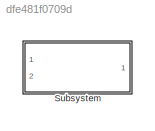
MODEL slx_dfe481f0709d
KIND library
CONFIG AbsTol = auto
CONFIG EnableMultiTasking = off
CONFIG FixedStep = auto
CONFIG MaxStep = auto
CONFIG MinStep = auto
CONFIG RelTol = 1e-3
CONFIG SampleTimeConstraint = Unconstrained
CONFIG Solver = VariableStepAuto
CONFIG SolverName = VariableStepAuto
CONFIG StartTime = 0.0
CONFIG StopTime = 10.0
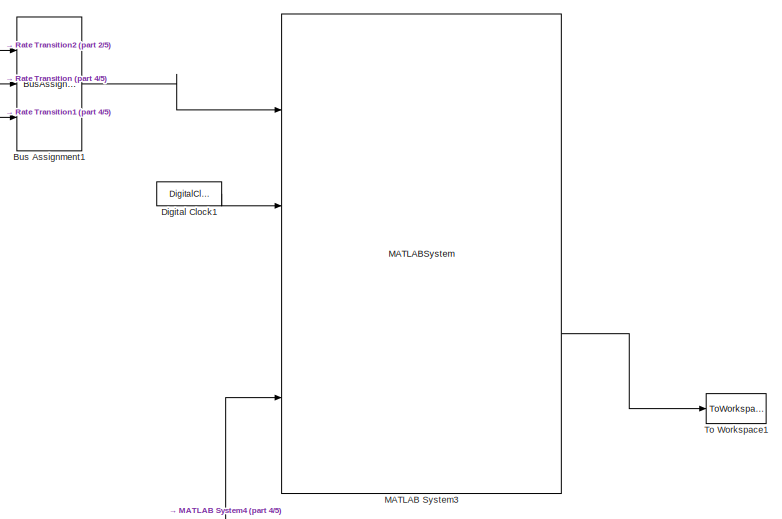
[diagram: Subsystem - part 1/5, top right region]
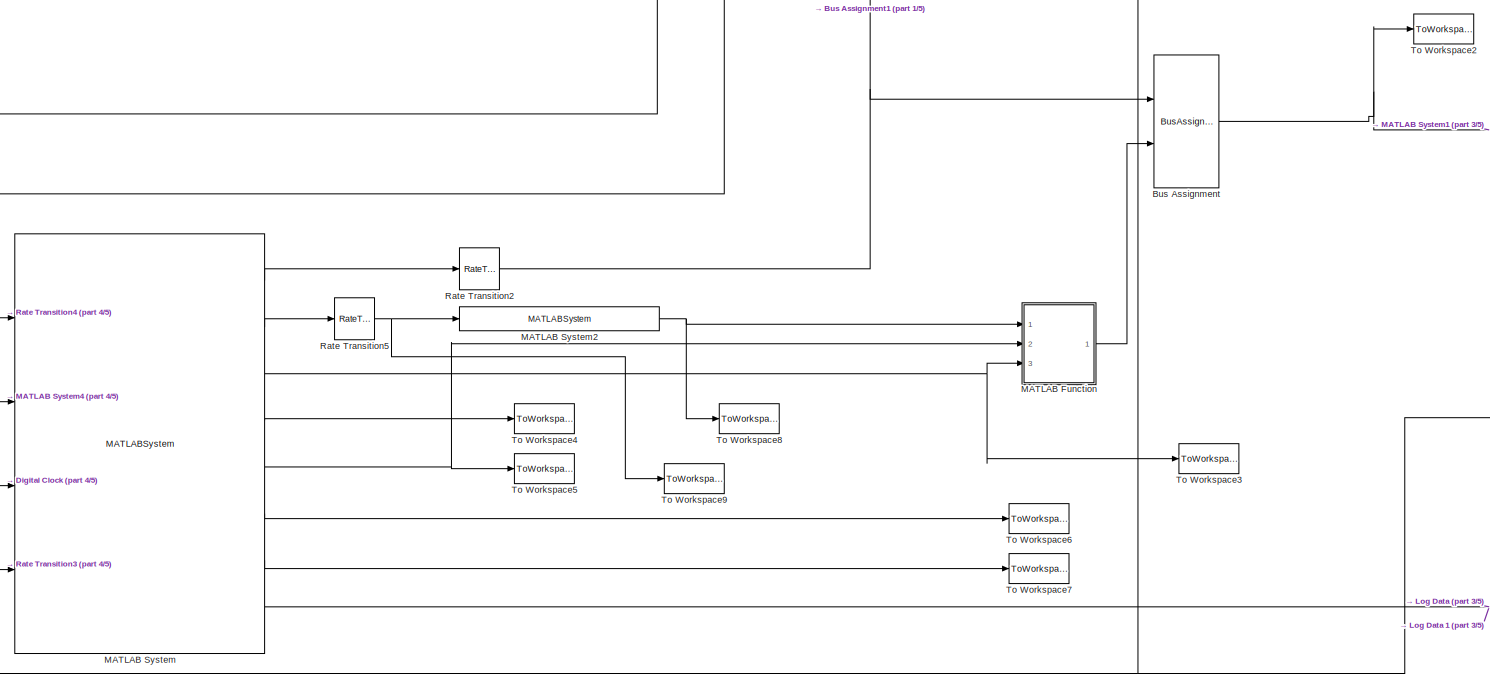
[diagram: Subsystem - part 2/5, bottom center region]
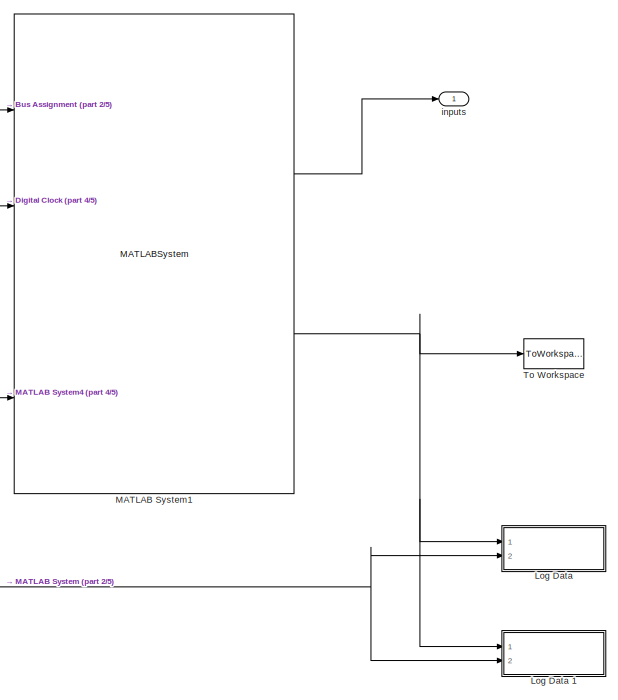
[diagram: Subsystem - part 3/5, bottom right region]
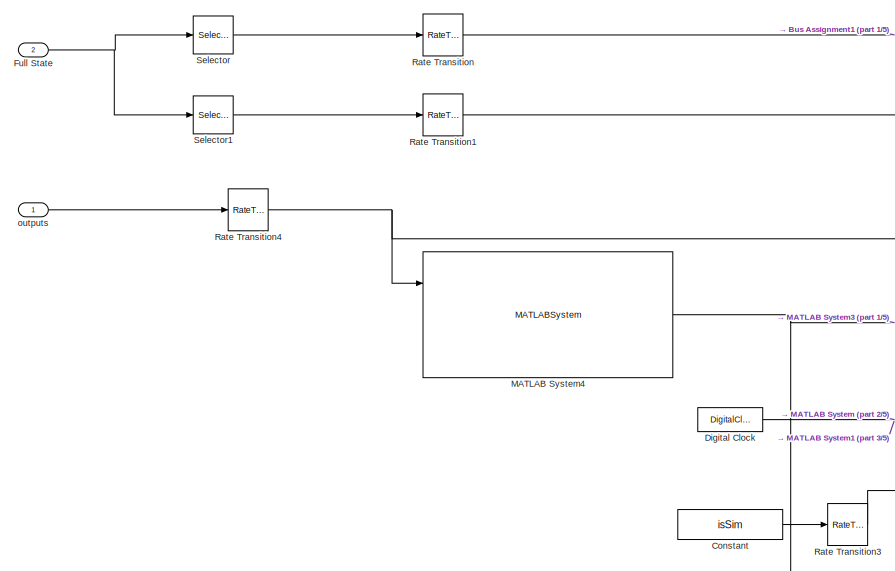
[diagram: Subsystem - part 4/5, bottom left region]
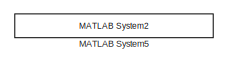
[diagram: Subsystem - part 5/5, bottom center region]
BLOCK [SubSystem] Subsystem
  Ports = [2, 1]
  RequestExecContextInheritance = off
  Variant = off
BLOCK [BusAssignment] Subsystem/Bus Assignment
  AssignedSignals = dq
  Ports = [2, 1]
BLOCK [BusAssignment] Subsystem/Bus Assignment1
  AssignedSignals = q,dq
  Ports = [3, 1]
BLOCK [Constant] Subsystem/Constant
  LockScale = on
  OutDataTypeStr = int8
  Value = isSim
BLOCK [DigitalClock] Subsystem/Digital Clock
  SampleTime = sample_time
BLOCK [DigitalClock] Subsystem/Digital Clock1
  SampleTime = sample_time
BLOCK [Inport] Subsystem/Full State
  IconDisplay = Port number
  Port = 2
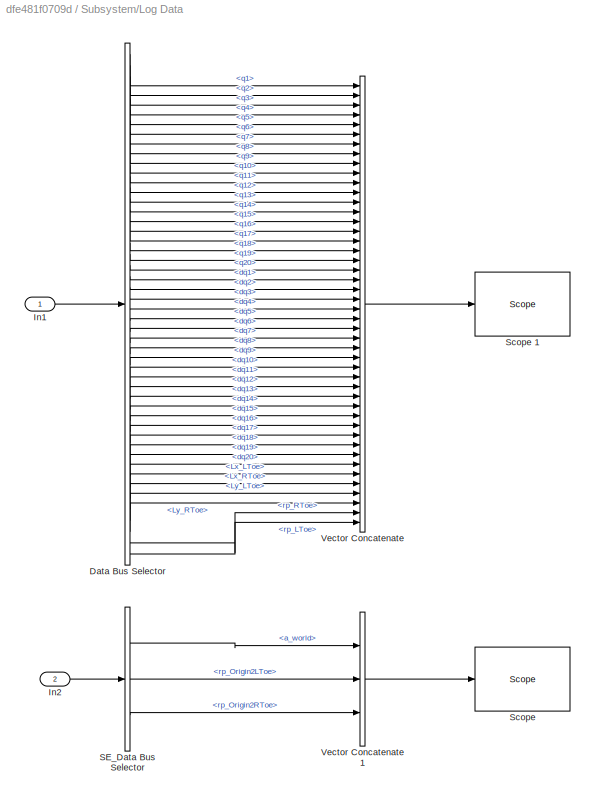
BLOCK [SubSystem] Subsystem/Log Data 
  Ports = [2]
  RequestExecContextInheritance = off
  Variant = off
BLOCK [BusSelector] Subsystem/Log Data /Data Bus Selector
  OutputAsBus = off
  OutputSignals = q1,q2,q3,q4,q5,q6,q7,q8,q9,q10,q11,q12,q13,q14,q15,q16,q17,q18,q19,q20,dq1,dq2,dq3,dq4,dq5,dq6,dq7,dq8,dq9,dq10,dq11,dq12,dq13,dq14,dq15,dq16,dq17,dq18,dq19,dq20,Lx_LToe,Lx_RToe,Ly_LToe,Ly_RToe,rp_LToe,rp_RToe
  Ports = [1, 46]
BLOCK [Inport] Subsystem/Log Data /In1
  IconDisplay = Port number
BLOCK [Inport] Subsystem/Log Data /In2
  IconDisplay = Port number
  OutDataTypeStr = Bus: StateEstimator_DataBus
  Port = 2
BLOCK [BusSelector] Subsystem/Log Data /SE_Data Bus Selector
  OutputAsBus = off
  OutputSignals = a_world,rp_Origin2LToe,rp_Origin2RToe
  Ports = [1, 3]
BLOCK [Reference] Subsystem/Log Data /Scope   REF=slrtlib/Displays and
Logging/Scope 
  Ports = [1]
  SourceBlock = slrtlib/Displays and\nLogging/Scope
  SourceProductBaseCode = XP
  SourceProductName = Simulink Real-Time
  SourceType = xpcscopeblock
BLOCK [Reference] Subsystem/Log Data /Scope 1  REF=slrtlib/Displays and
Logging/Scope 
  Ports = [1]
  SourceBlock = slrtlib/Displays and\nLogging/Scope
  SourceProductBaseCode = XP
  SourceProductName = Simulink Real-Time
  SourceType = xpcscopeblock
BLOCK [Concatenate] Subsystem/Log Data /Vector Concatenate
  NumInputs = 46
  Ports = [46, 1]
BLOCK [Concatenate] Subsystem/Log Data /Vector Concatenate1
  NumInputs = 3
  Ports = [3, 1]
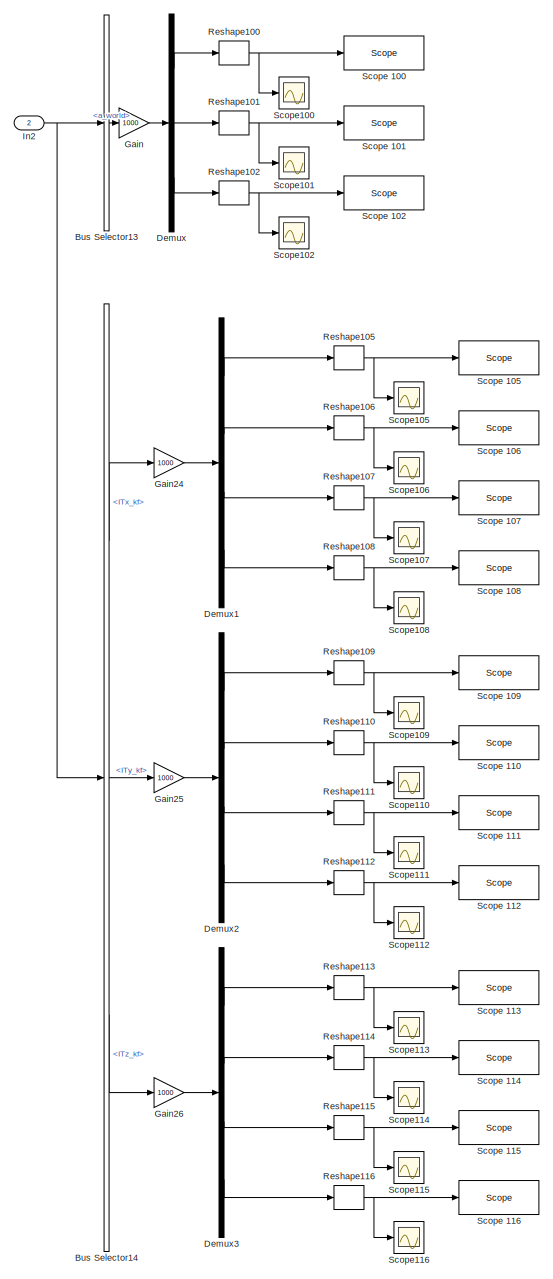
[diagram: Subsystem/Log Data 1 - part 1/11, top right region]
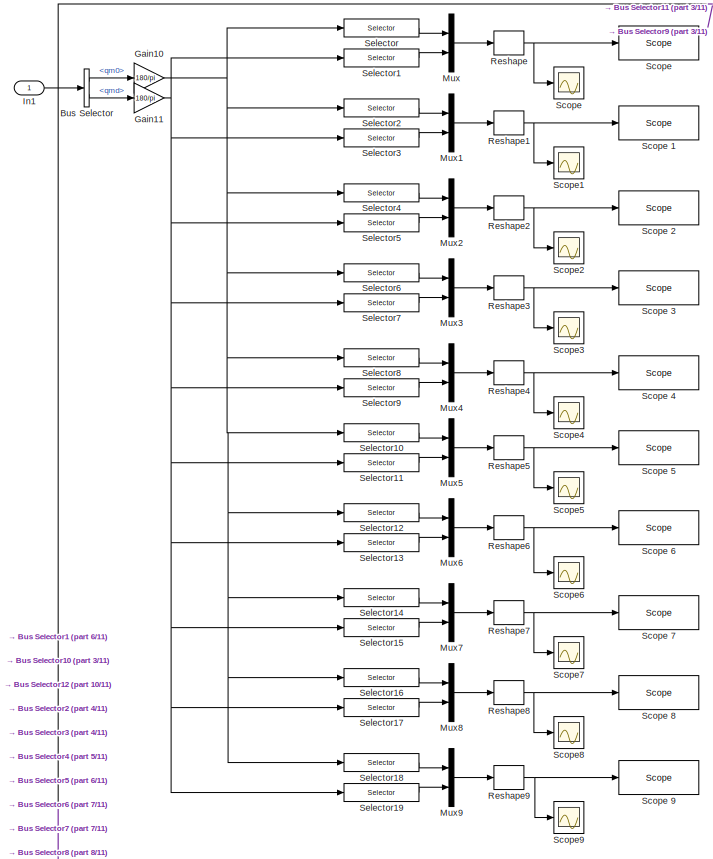
[diagram: Subsystem/Log Data 1 - part 2/11, top left region]
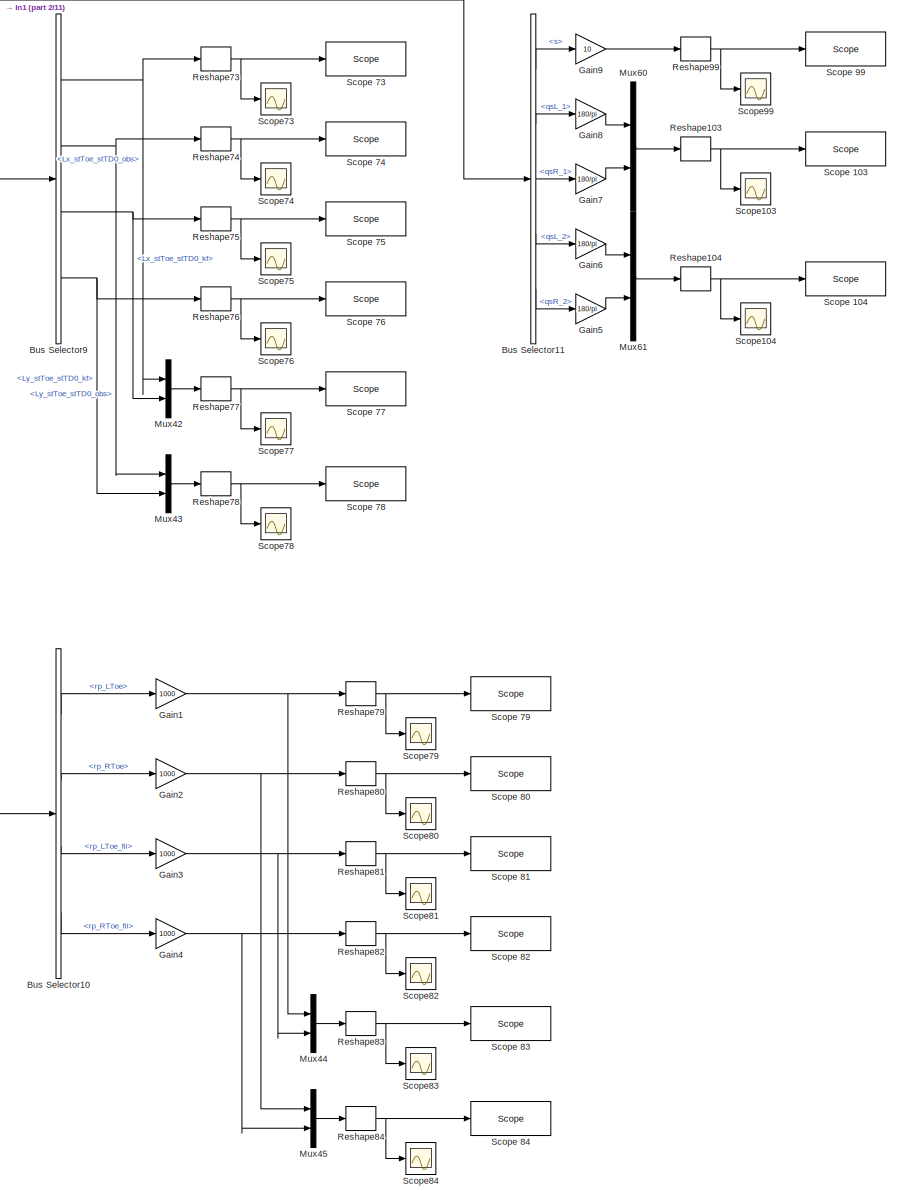
[diagram: Subsystem/Log Data 1 - part 3/11, top center region]
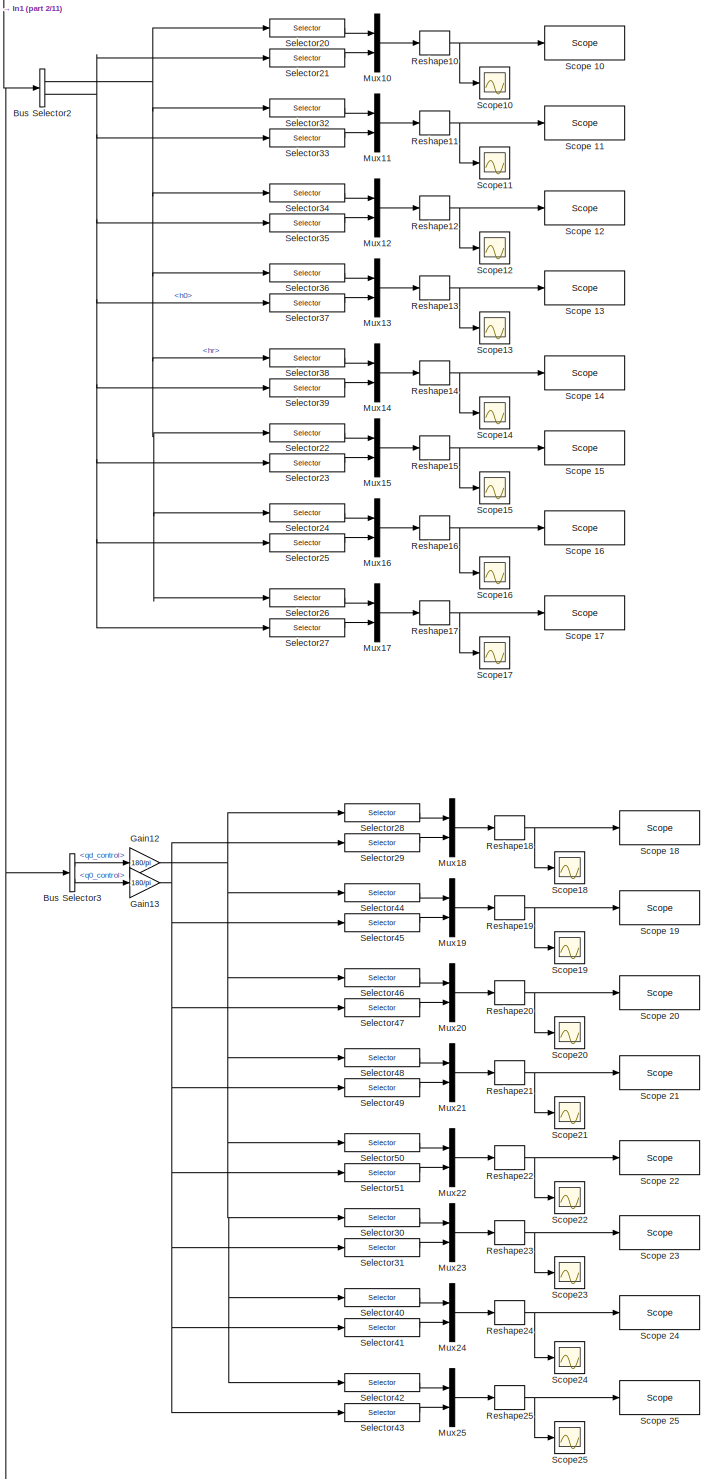
[diagram: Subsystem/Log Data 1 - part 4/11, top left region]
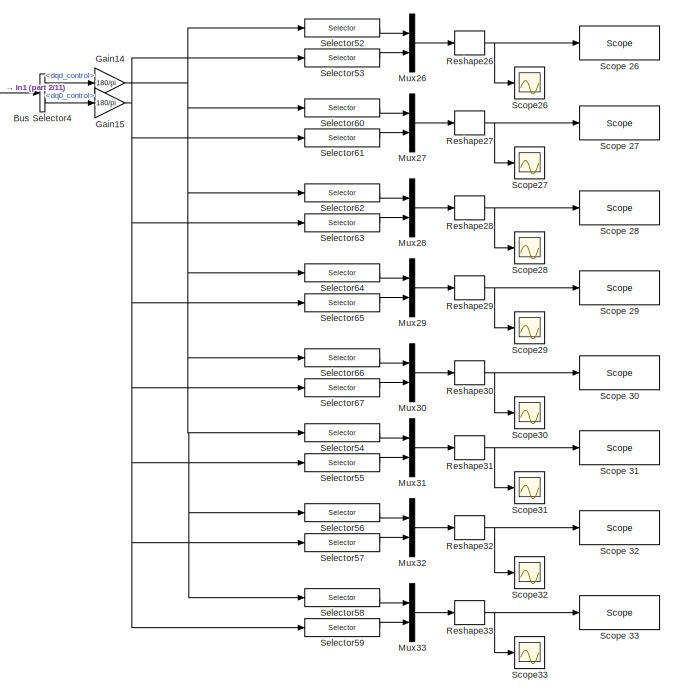
[diagram: Subsystem/Log Data 1 - part 5/11, top left region]
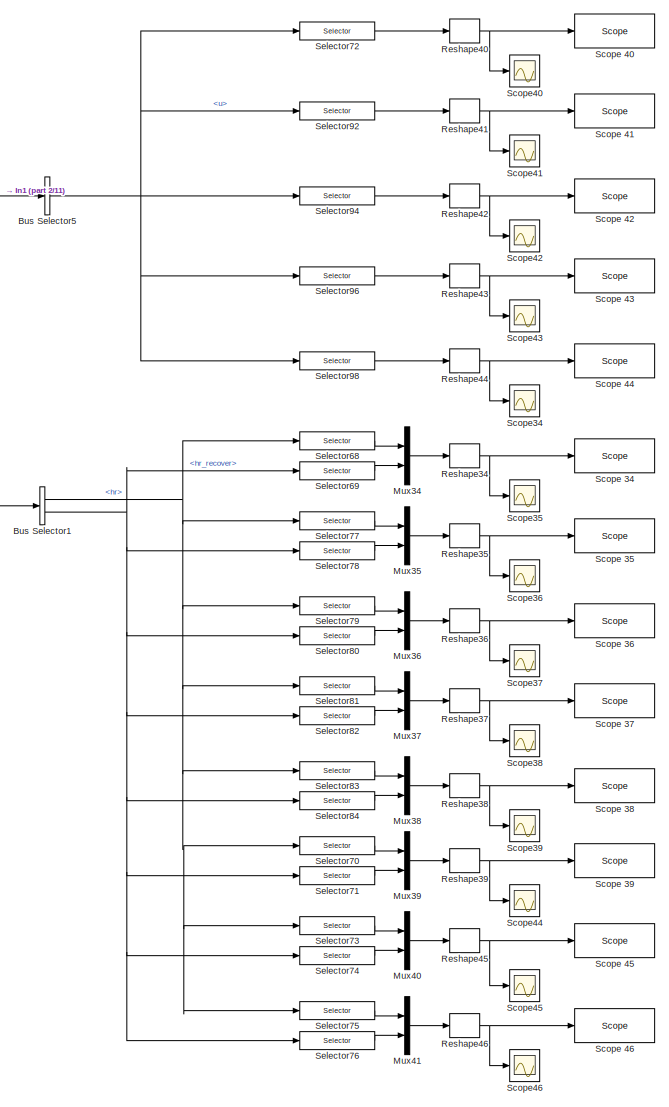
[diagram: Subsystem/Log Data 1 - part 6/11, middle left region]
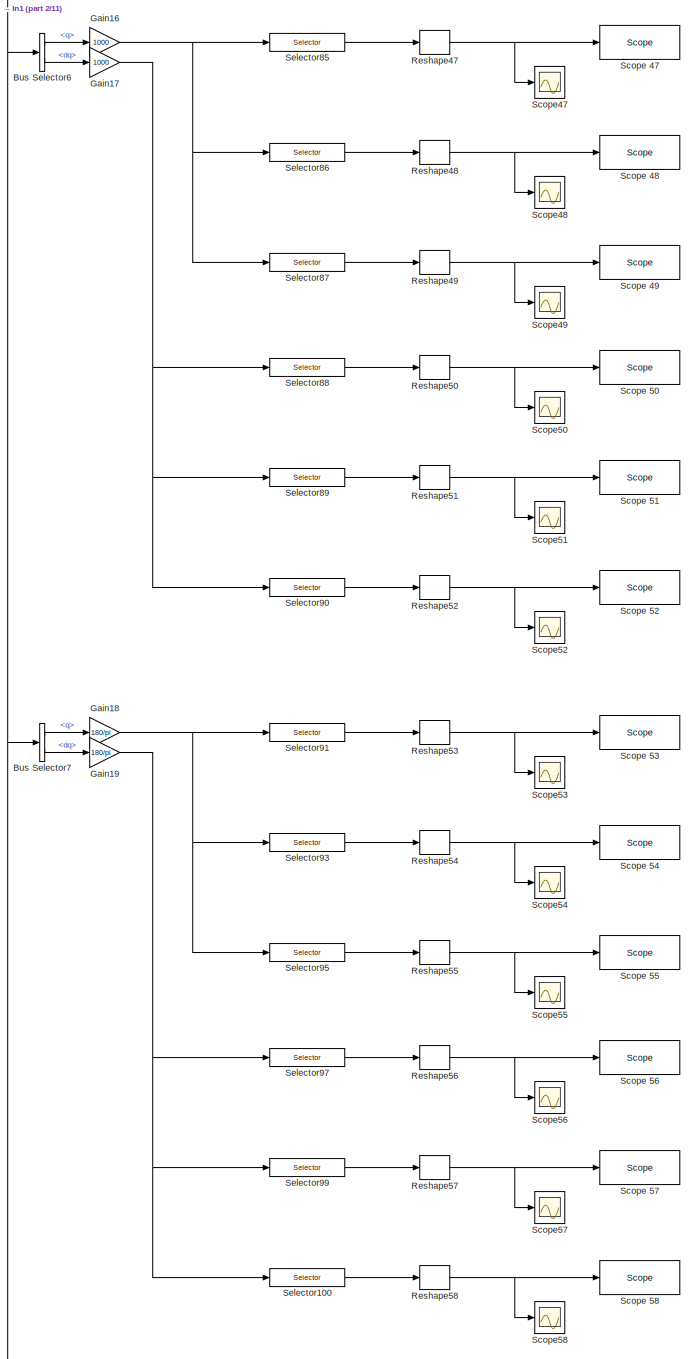
[diagram: Subsystem/Log Data 1 - part 7/11, middle left region]
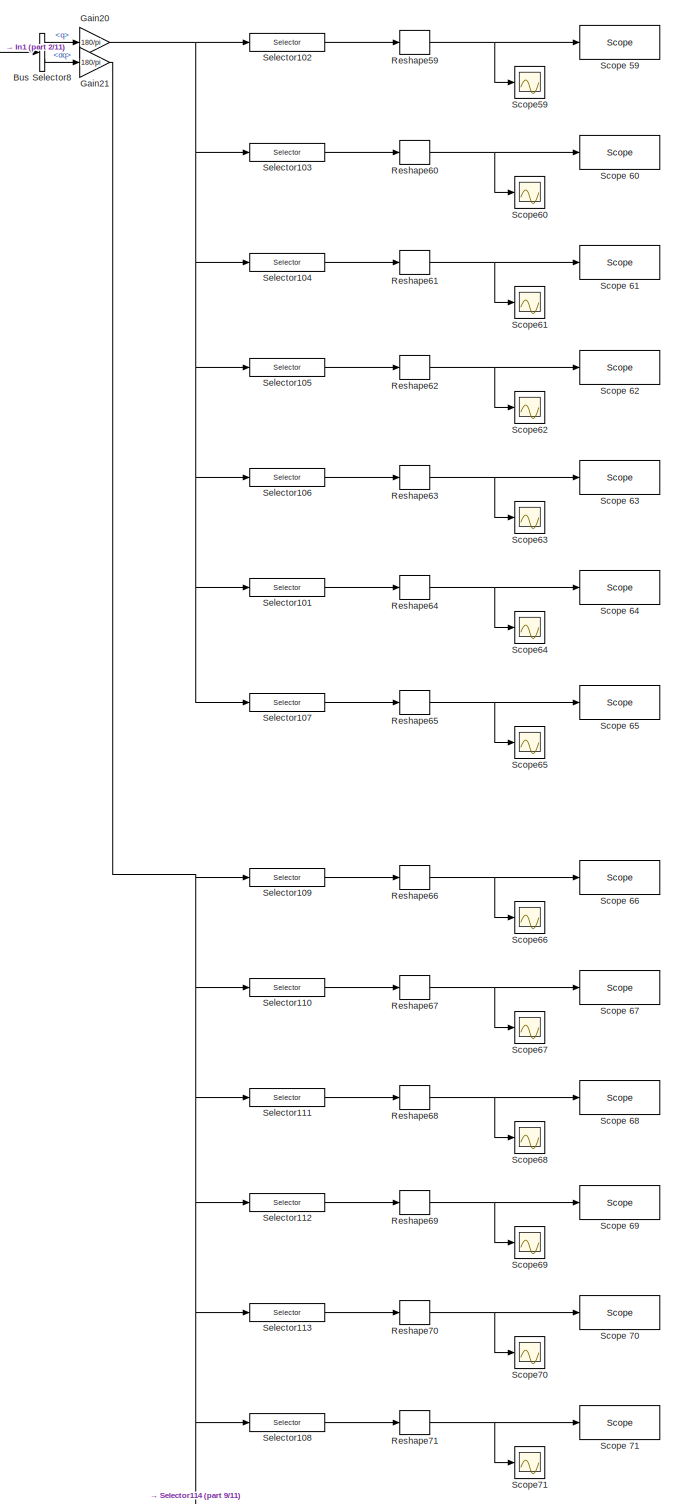
[diagram: Subsystem/Log Data 1 - part 8/11, bottom left region]
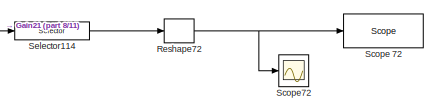
[diagram: Subsystem/Log Data 1 - part 9/11, bottom left region]
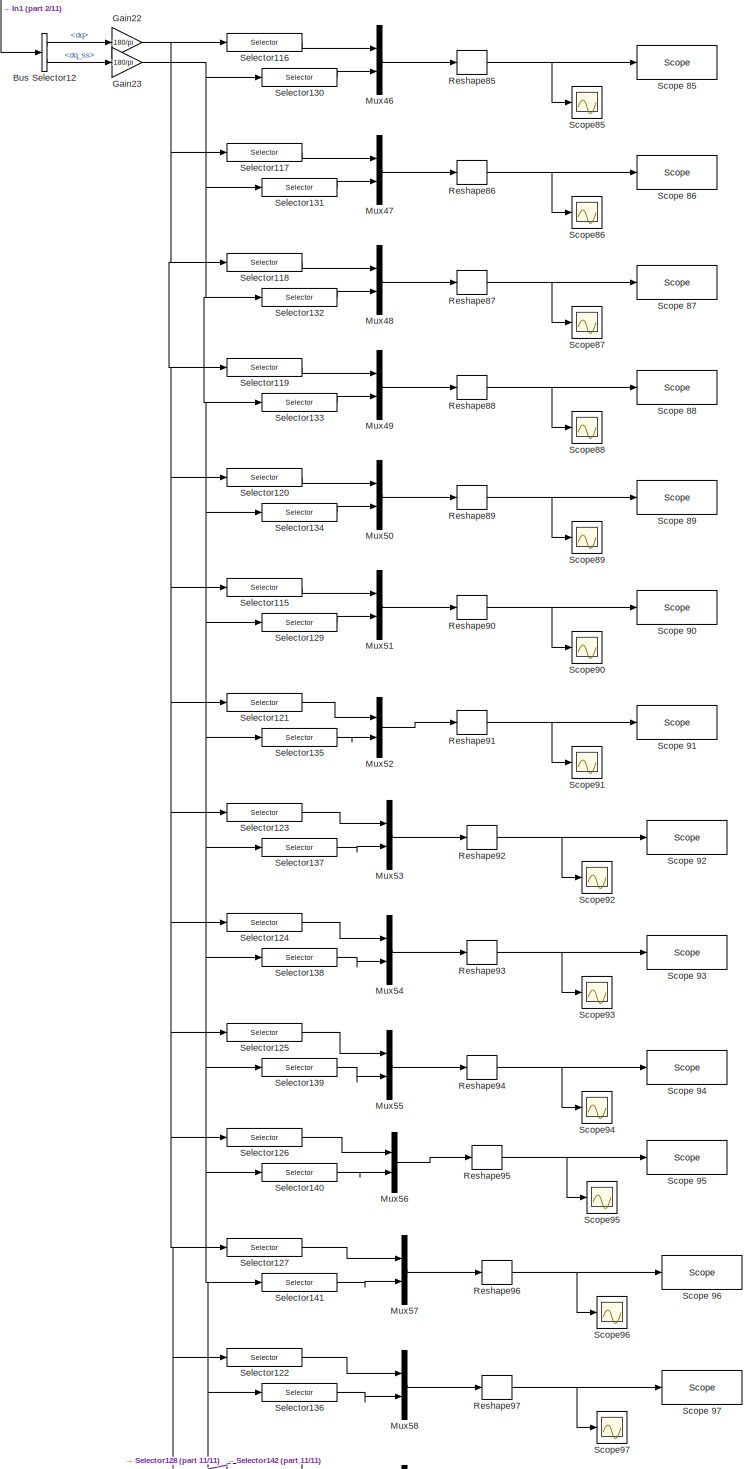
[diagram: Subsystem/Log Data 1 - part 10/11, bottom left region]
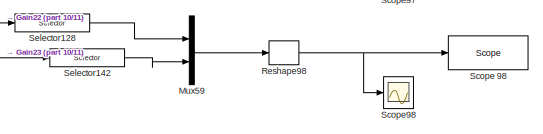
[diagram: Subsystem/Log Data 1 - part 11/11, bottom left region]
BLOCK [SubSystem] Subsystem/Log Data 1
  Ports = [2]
  RequestExecContextInheritance = off
  Variant = off
BLOCK [BusSelector] Subsystem/Log Data 1/Bus Selector
  OutputAsBus = off
  OutputSignals = qm0,qmd
  Ports = [1, 2]
BLOCK [BusSelector] Subsystem/Log Data 1/Bus Selector1
  OutputAsBus = off
  OutputSignals = hr,hr_recover
  Ports = [1, 2]
BLOCK [BusSelector] Subsystem/Log Data 1/Bus Selector10
  OutputAsBus = off
  OutputSignals = rp_LToe,rp_RToe,rp_LToe_fil,rp_RToe_fil
  Ports = [1, 4]
BLOCK [BusSelector] Subsystem/Log Data 1/Bus Selector11
  OutputAsBus = off
  OutputSignals = s,qsL_1,qsR_1,qsL_2,qsR_2
  Ports = [1, 5]
BLOCK [BusSelector] Subsystem/Log Data 1/Bus Selector12
  OutputAsBus = off
  OutputSignals = dq,dq_ss
  Ports = [1, 2]
BLOCK [BusSelector] Subsystem/Log Data 1/Bus Selector13
  OutputAsBus = off
  OutputSignals = a_world
  Ports = [1, 1]
BLOCK [BusSelector] Subsystem/Log Data 1/Bus Selector14
  OutputAsBus = off
  OutputSignals = ITx_kf,ITy_kf,ITz_kf
  Ports = [1, 3]
BLOCK [BusSelector] Subsystem/Log Data 1/Bus Selector2
  OutputAsBus = off
  OutputSignals = hr,h0
  Ports = [1, 2]
BLOCK [BusSelector] Subsystem/Log Data 1/Bus Selector3
  OutputAsBus = off
  OutputSignals = qd_control,q0_control
  Ports = [1, 2]
BLOCK [BusSelector] Subsystem/Log Data 1/Bus Selector4
  OutputAsBus = off
  OutputSignals = dqd_control,dq0_control
  Ports = [1, 2]
BLOCK [BusSelector] Subsystem/Log Data 1/Bus Selector5
  OutputAsBus = off
  OutputSignals = u
  Ports = [1, 1]
BLOCK [BusSelector] Subsystem/Log Data 1/Bus Selector6
  OutputAsBus = off
  OutputSignals = q,dq
  Ports = [1, 2]
BLOCK [BusSelector] Subsystem/Log Data 1/Bus Selector7
  OutputAsBus = off
  OutputSignals = q,dq
  Ports = [1, 2]
BLOCK [BusSelector] Subsystem/Log Data 1/Bus Selector8
  OutputAsBus = off
  OutputSignals = q,dq
  Ports = [1, 2]
BLOCK [BusSelector] Subsystem/Log Data 1/Bus Selector9
  OutputAsBus = off
  OutputSignals = Lx_stToe_stTD0_obs,Ly_stToe_stTD0_obs,Lx_stToe_stTD0_kf,Ly_stToe_stTD0_kf
  Ports = [1, 4]
BLOCK [Demux] Subsystem/Log Data 1/Demux
  DisplayOption = bar
  Outputs = 3
  Ports = [1, 3]
BLOCK [Demux] Subsystem/Log Data 1/Demux1
  DisplayOption = bar
  Ports = [1, 4]
BLOCK [Demux] Subsystem/Log Data 1/Demux2
  DisplayOption = bar
  Ports = [1, 4]
BLOCK [Demux] Subsystem/Log Data 1/Demux3
  DisplayOption = bar
  Ports = [1, 4]
BLOCK [Gain] Subsystem/Log Data 1/Gain
  Gain = 1000
  OutDataTypeStr = Inherit: Inherit via internal rule
  ParamDataTypeStr = Inherit: Inherit via internal rule
  SaturateOnIntegerOverflow = off
BLOCK [Gain] Subsystem/Log Data 1/Gain1
  Gain = 1000
  OutDataTypeStr = Inherit: Inherit via internal rule
  ParamDataTypeStr = Inherit: Inherit via internal rule
  SaturateOnIntegerOverflow = off
BLOCK [Gain] Subsystem/Log Data 1/Gain10
  Gain = 180/pi
  OutDataTypeStr = Inherit: Inherit via internal rule
  ParamDataTypeStr = Inherit: Inherit via internal rule
  SaturateOnIntegerOverflow = off
BLOCK [Gain] Subsystem/Log Data 1/Gain11
  Gain = 180/pi
  OutDataTypeStr = Inherit: Inherit via internal rule
  ParamDataTypeStr = Inherit: Inherit via internal rule
  SaturateOnIntegerOverflow = off
BLOCK [Gain] Subsystem/Log Data 1/Gain12
  Gain = 180/pi
  OutDataTypeStr = Inherit: Inherit via internal rule
  ParamDataTypeStr = Inherit: Inherit via internal rule
  SaturateOnIntegerOverflow = off
BLOCK [Gain] Subsystem/Log Data 1/Gain13
  Gain = 180/pi
  OutDataTypeStr = Inherit: Inherit via internal rule
  ParamDataTypeStr = Inherit: Inherit via internal rule
  SaturateOnIntegerOverflow = off
BLOCK [Gain] Subsystem/Log Data 1/Gain14
  Gain = 180/pi
  OutDataTypeStr = Inherit: Inherit via internal rule
  ParamDataTypeStr = Inherit: Inherit via internal rule
  SaturateOnIntegerOverflow = off
BLOCK [Gain] Subsystem/Log Data 1/Gain15
  Gain = 180/pi
  OutDataTypeStr = Inherit: Inherit via internal rule
  ParamDataTypeStr = Inherit: Inherit via internal rule
  SaturateOnIntegerOverflow = off
BLOCK [Gain] Subsystem/Log Data 1/Gain16
  Gain = 1000
  OutDataTypeStr = Inherit: Inherit via internal rule
  ParamDataTypeStr = Inherit: Inherit via internal rule
  SaturateOnIntegerOverflow = off
BLOCK [Gain] Subsystem/Log Data 1/Gain17
  Gain = 1000
  OutDataTypeStr = Inherit: Inherit via internal rule
  ParamDataTypeStr = Inherit: Inherit via internal rule
  SaturateOnIntegerOverflow = off
BLOCK [Gain] Subsystem/Log Data 1/Gain18
  Gain = 180/pi
  OutDataTypeStr = Inherit: Inherit via internal rule
  ParamDataTypeStr = Inherit: Inherit via internal rule
  SaturateOnIntegerOverflow = off
BLOCK [Gain] Subsystem/Log Data 1/Gain19
  Gain = 180/pi
  OutDataTypeStr = Inherit: Inherit via internal rule
  ParamDataTypeStr = Inherit: Inherit via internal rule
  SaturateOnIntegerOverflow = off
BLOCK [Gain] Subsystem/Log Data 1/Gain2
  Gain = 1000
  OutDataTypeStr = Inherit: Inherit via internal rule
  ParamDataTypeStr = Inherit: Inherit via internal rule
  SaturateOnIntegerOverflow = off
BLOCK [Gain] Subsystem/Log Data 1/Gain20
  Gain = 180/pi
  OutDataTypeStr = Inherit: Inherit via internal rule
  ParamDataTypeStr = Inherit: Inherit via internal rule
  SaturateOnIntegerOverflow = off
BLOCK [Gain] Subsystem/Log Data 1/Gain21
  Gain = 180/pi
  OutDataTypeStr = Inherit: Inherit via internal rule
  ParamDataTypeStr = Inherit: Inherit via internal rule
  SaturateOnIntegerOverflow = off
BLOCK [Gain] Subsystem/Log Data 1/Gain22
  Gain = 180/pi
  OutDataTypeStr = Inherit: Inherit via internal rule
  ParamDataTypeStr = Inherit: Inherit via internal rule
  SaturateOnIntegerOverflow = off
BLOCK [Gain] Subsystem/Log Data 1/Gain23
  Gain = 180/pi
  OutDataTypeStr = Inherit: Inherit via internal rule
  ParamDataTypeStr = Inherit: Inherit via internal rule
  SaturateOnIntegerOverflow = off
BLOCK [Gain] Subsystem/Log Data 1/Gain24
  Gain = 1000
  OutDataTypeStr = Inherit: Inherit via internal rule
  ParamDataTypeStr = Inherit: Inherit via internal rule
  SaturateOnIntegerOverflow = off
BLOCK [Gain] Subsystem/Log Data 1/Gain25
  Gain = 1000
  OutDataTypeStr = Inherit: Inherit via internal rule
  ParamDataTypeStr = Inherit: Inherit via internal rule
  SaturateOnIntegerOverflow = off
BLOCK [Gain] Subsystem/Log Data 1/Gain26
  Gain = 1000
  OutDataTypeStr = Inherit: Inherit via internal rule
  ParamDataTypeStr = Inherit: Inherit via internal rule
  SaturateOnIntegerOverflow = off
BLOCK [Gain] Subsystem/Log Data 1/Gain3
  Gain = 1000
  OutDataTypeStr = Inherit: Inherit via internal rule
  ParamDataTypeStr = Inherit: Inherit via internal rule
  SaturateOnIntegerOverflow = off
BLOCK [Gain] Subsystem/Log Data 1/Gain4
  Gain = 1000
  OutDataTypeStr = Inherit: Inherit via internal rule
  ParamDataTypeStr = Inherit: Inherit via internal rule
  SaturateOnIntegerOverflow = off
BLOCK [Gain] Subsystem/Log Data 1/Gain5
  Gain = 180/pi
  OutDataTypeStr = Inherit: Inherit via internal rule
  ParamDataTypeStr = Inherit: Inherit via internal rule
  SaturateOnIntegerOverflow = off
BLOCK [Gain] Subsystem/Log Data 1/Gain6
  Gain = 180/pi
  OutDataTypeStr = Inherit: Inherit via internal rule
  ParamDataTypeStr = Inherit: Inherit via internal rule
  SaturateOnIntegerOverflow = off
BLOCK [Gain] Subsystem/Log Data 1/Gain7
  Gain = 180/pi
  OutDataTypeStr = Inherit: Inherit via internal rule
  ParamDataTypeStr = Inherit: Inherit via internal rule
  SaturateOnIntegerOverflow = off
BLOCK [Gain] Subsystem/Log Data 1/Gain8
  Gain = 180/pi
  OutDataTypeStr = Inherit: Inherit via internal rule
  ParamDataTypeStr = Inherit: Inherit via internal rule
  SaturateOnIntegerOverflow = off
BLOCK [Gain] Subsystem/Log Data 1/Gain9
  Gain = 10
  OutDataTypeStr = Inherit: Inherit via internal rule
  ParamDataTypeStr = Inherit: Inherit via internal rule
  SaturateOnIntegerOverflow = off
BLOCK [Inport] Subsystem/Log Data 1/In1
  IconDisplay = Port number
BLOCK [Inport] Subsystem/Log Data 1/In2
  IconDisplay = Port number
  OutDataTypeStr = Bus: StateEstimator_DataBus
  Port = 2
BLOCK [Mux] Subsystem/Log Data 1/Mux
  DisplayOption = bar
  Inputs = 2
  Ports = [2, 1]
BLOCK [Mux] Subsystem/Log Data 1/Mux1
  DisplayOption = bar
  Inputs = 2
  Ports = [2, 1]
BLOCK [Mux] Subsystem/Log Data 1/Mux10
  DisplayOption = bar
  Inputs = 2
  Ports = [2, 1]
BLOCK [Mux] Subsystem/Log Data 1/Mux11
  DisplayOption = bar
  Inputs = 2
  Ports = [2, 1]
BLOCK [Mux] Subsystem/Log Data 1/Mux12
  DisplayOption = bar
  Inputs = 2
  Ports = [2, 1]
BLOCK [Mux] Subsystem/Log Data 1/Mux13
  DisplayOption = bar
  Inputs = 2
  Ports = [2, 1]
BLOCK [Mux] Subsystem/Log Data 1/Mux14
  DisplayOption = bar
  Inputs = 2
  Ports = [2, 1]
BLOCK [Mux] Subsystem/Log Data 1/Mux15
  DisplayOption = bar
  Inputs = 2
  Ports = [2, 1]
BLOCK [Mux] Subsystem/Log Data 1/Mux16
  DisplayOption = bar
  Inputs = 2
  Ports = [2, 1]
BLOCK [Mux] Subsystem/Log Data 1/Mux17
  DisplayOption = bar
  Inputs = 2
  Ports = [2, 1]
BLOCK [Mux] Subsystem/Log Data 1/Mux18
  DisplayOption = bar
  Inputs = 2
  Ports = [2, 1]
BLOCK [Mux] Subsystem/Log Data 1/Mux19
  DisplayOption = bar
  Inputs = 2
  Ports = [2, 1]
BLOCK [Mux] Subsystem/Log Data 1/Mux2
  DisplayOption = bar
  Inputs = 2
  Ports = [2, 1]
BLOCK [Mux] Subsystem/Log Data 1/Mux20
  DisplayOption = bar
  Inputs = 2
  Ports = [2, 1]
BLOCK [Mux] Subsystem/Log Data 1/Mux21
  DisplayOption = bar
  Inputs = 2
  Ports = [2, 1]
BLOCK [Mux] Subsystem/Log Data 1/Mux22
  DisplayOption = bar
  Inputs = 2
  Ports = [2, 1]
BLOCK [Mux] Subsystem/Log Data 1/Mux23
  DisplayOption = bar
  Inputs = 2
  Ports = [2, 1]
BLOCK [Mux] Subsystem/Log Data 1/Mux24
  DisplayOption = bar
  Inputs = 2
  Ports = [2, 1]
BLOCK [Mux] Subsystem/Log Data 1/Mux25
  DisplayOption = bar
  Inputs = 2
  Ports = [2, 1]
BLOCK [Mux] Subsystem/Log Data 1/Mux26
  DisplayOption = bar
  Inputs = 2
  Ports = [2, 1]
BLOCK [Mux] Subsystem/Log Data 1/Mux27
  DisplayOption = bar
  Inputs = 2
  Ports = [2, 1]
BLOCK [Mux] Subsystem/Log Data 1/Mux28
  DisplayOption = bar
  Inputs = 2
  Ports = [2, 1]
BLOCK [Mux] Subsystem/Log Data 1/Mux29
  DisplayOption = bar
  Inputs = 2
  Ports = [2, 1]
BLOCK [Mux] Subsystem/Log Data 1/Mux3
  DisplayOption = bar
  Inputs = 2
  Ports = [2, 1]
BLOCK [Mux] Subsystem/Log Data 1/Mux30
  DisplayOption = bar
  Inputs = 2
  Ports = [2, 1]
BLOCK [Mux] Subsystem/Log Data 1/Mux31
  DisplayOption = bar
  Inputs = 2
  Ports = [2, 1]
BLOCK [Mux] Subsystem/Log Data 1/Mux32
  DisplayOption = bar
  Inputs = 2
  Ports = [2, 1]
BLOCK [Mux] Subsystem/Log Data 1/Mux33
  DisplayOption = bar
  Inputs = 2
  Ports = [2, 1]
BLOCK [Mux] Subsystem/Log Data 1/Mux34
  DisplayOption = bar
  Inputs = 2
  Ports = [2, 1]
BLOCK [Mux] Subsystem/Log Data 1/Mux35
  DisplayOption = bar
  Inputs = 2
  Ports = [2, 1]
BLOCK [Mux] Subsystem/Log Data 1/Mux36
  DisplayOption = bar
  Inputs = 2
  Ports = [2, 1]
BLOCK [Mux] Subsystem/Log Data 1/Mux37
  DisplayOption = bar
  Inputs = 2
  Ports = [2, 1]
BLOCK [Mux] Subsystem/Log Data 1/Mux38
  DisplayOption = bar
  Inputs = 2
  Ports = [2, 1]
BLOCK [Mux] Subsystem/Log Data 1/Mux39
  DisplayOption = bar
  Inputs = 2
  Ports = [2, 1]
BLOCK [Mux] Subsystem/Log Data 1/Mux4
  DisplayOption = bar
  Inputs = 2
  Ports = [2, 1]
BLOCK [Mux] Subsystem/Log Data 1/Mux40
  DisplayOption = bar
  Inputs = 2
  Ports = [2, 1]
BLOCK [Mux] Subsystem/Log Data 1/Mux41
  DisplayOption = bar
  Inputs = 2
  Ports = [2, 1]
BLOCK [Mux] Subsystem/Log Data 1/Mux42
  DisplayOption = bar
  Inputs = 2
  Ports = [2, 1]
BLOCK [Mux] Subsystem/Log Data 1/Mux43
  DisplayOption = bar
  Inputs = 2
  Ports = [2, 1]
BLOCK [Mux] Subsystem/Log Data 1/Mux44
  DisplayOption = bar
  Inputs = 2
  Ports = [2, 1]
BLOCK [Mux] Subsystem/Log Data 1/Mux45
  DisplayOption = bar
  Inputs = 2
  Ports = [2, 1]
BLOCK [Mux] Subsystem/Log Data 1/Mux46
  DisplayOption = bar
  Inputs = 2
  Ports = [2, 1]
BLOCK [Mux] Subsystem/Log Data 1/Mux47
  DisplayOption = bar
  Inputs = 2
  Ports = [2, 1]
BLOCK [Mux] Subsystem/Log Data 1/Mux48
  DisplayOption = bar
  Inputs = 2
  Ports = [2, 1]
BLOCK [Mux] Subsystem/Log Data 1/Mux49
  DisplayOption = bar
  Inputs = 2
  Ports = [2, 1]
BLOCK [Mux] Subsystem/Log Data 1/Mux5
  DisplayOption = bar
  Inputs = 2
  Ports = [2, 1]
BLOCK [Mux] Subsystem/Log Data 1/Mux50
  DisplayOption = bar
  Inputs = 2
  Ports = [2, 1]
BLOCK [Mux] Subsystem/Log Data 1/Mux51
  DisplayOption = bar
  Inputs = 2
  Ports = [2, 1]
BLOCK [Mux] Subsystem/Log Data 1/Mux52
  DisplayOption = bar
  Inputs = 2
  Ports = [2, 1]
BLOCK [Mux] Subsystem/Log Data 1/Mux53
  DisplayOption = bar
  Inputs = 2
  Ports = [2, 1]
BLOCK [Mux] Subsystem/Log Data 1/Mux54
  DisplayOption = bar
  Inputs = 2
  Ports = [2, 1]
BLOCK [Mux] Subsystem/Log Data 1/Mux55
  DisplayOption = bar
  Inputs = 2
  Ports = [2, 1]
BLOCK [Mux] Subsystem/Log Data 1/Mux56
  DisplayOption = bar
  Inputs = 2
  Ports = [2, 1]
BLOCK [Mux] Subsystem/Log Data 1/Mux57
  DisplayOption = bar
  Inputs = 2
  Ports = [2, 1]
BLOCK [Mux] Subsystem/Log Data 1/Mux58
  DisplayOption = bar
  Inputs = 2
  Ports = [2, 1]
BLOCK [Mux] Subsystem/Log Data 1/Mux59
  DisplayOption = bar
  Inputs = 2
  Ports = [2, 1]
BLOCK [Mux] Subsystem/Log Data 1/Mux6
  DisplayOption = bar
  Inputs = 2
  Ports = [2, 1]
BLOCK [Mux] Subsystem/Log Data 1/Mux60
  DisplayOption = bar
  Inputs = 2
  Ports = [2, 1]
BLOCK [Mux] Subsystem/Log Data 1/Mux61
  DisplayOption = bar
  Inputs = 2
  Ports = [2, 1]
BLOCK [Mux] Subsystem/Log Data 1/Mux7
  DisplayOption = bar
  Inputs = 2
  Ports = [2, 1]
BLOCK [Mux] Subsystem/Log Data 1/Mux8
  DisplayOption = bar
  Inputs = 2
  Ports = [2, 1]
BLOCK [Mux] Subsystem/Log Data 1/Mux9
  DisplayOption = bar
  Inputs = 2
  Ports = [2, 1]
BLOCK [Reshape] Subsystem/Log Data 1/Reshape
  Ports = [1, 1]
BLOCK [Reshape] Subsystem/Log Data 1/Reshape1
  Ports = [1, 1]
BLOCK [Reshape] Subsystem/Log Data 1/Reshape10
  Ports = [1, 1]
BLOCK [Reshape] Subsystem/Log Data 1/Reshape100
  Ports = [1, 1]
BLOCK [Reshape] Subsystem/Log Data 1/Reshape101
  Ports = [1, 1]
BLOCK [Reshape] Subsystem/Log Data 1/Reshape102
  Ports = [1, 1]
BLOCK [Reshape] Subsystem/Log Data 1/Reshape103
  Ports = [1, 1]
BLOCK [Reshape] Subsystem/Log Data 1/Reshape104
  Ports = [1, 1]
BLOCK [Reshape] Subsystem/Log Data 1/Reshape105
  Ports = [1, 1]
BLOCK [Reshape] Subsystem/Log Data 1/Reshape106
  Ports = [1, 1]
BLOCK [Reshape] Subsystem/Log Data 1/Reshape107
  Ports = [1, 1]
BLOCK [Reshape] Subsystem/Log Data 1/Reshape108
  Ports = [1, 1]
BLOCK [Reshape] Subsystem/Log Data 1/Reshape109
  Ports = [1, 1]
BLOCK [Reshape] Subsystem/Log Data 1/Reshape11
  Ports = [1, 1]
BLOCK [Reshape] Subsystem/Log Data 1/Reshape110
  Ports = [1, 1]
BLOCK [Reshape] Subsystem/Log Data 1/Reshape111
  Ports = [1, 1]
BLOCK [Reshape] Subsystem/Log Data 1/Reshape112
  Ports = [1, 1]
BLOCK [Reshape] Subsystem/Log Data 1/Reshape113
  Ports = [1, 1]
BLOCK [Reshape] Subsystem/Log Data 1/Reshape114
  Ports = [1, 1]
BLOCK [Reshape] Subsystem/Log Data 1/Reshape115
  Ports = [1, 1]
BLOCK [Reshape] Subsystem/Log Data 1/Reshape116
  Ports = [1, 1]
BLOCK [Reshape] Subsystem/Log Data 1/Reshape12
  Ports = [1, 1]
BLOCK [Reshape] Subsystem/Log Data 1/Reshape13
  Ports = [1, 1]
BLOCK [Reshape] Subsystem/Log Data 1/Reshape14
  Ports = [1, 1]
BLOCK [Reshape] Subsystem/Log Data 1/Reshape15
  Ports = [1, 1]
BLOCK [Reshape] Subsystem/Log Data 1/Reshape16
  Ports = [1, 1]
BLOCK [Reshape] Subsystem/Log Data 1/Reshape17
  Ports = [1, 1]
BLOCK [Reshape] Subsystem/Log Data 1/Reshape18
  Ports = [1, 1]
BLOCK [Reshape] Subsystem/Log Data 1/Reshape19
  Ports = [1, 1]
BLOCK [Reshape] Subsystem/Log Data 1/Reshape2
  Ports = [1, 1]
BLOCK [Reshape] Subsystem/Log Data 1/Reshape20
  Ports = [1, 1]
BLOCK [Reshape] Subsystem/Log Data 1/Reshape21
  Ports = [1, 1]
BLOCK [Reshape] Subsystem/Log Data 1/Reshape22
  Ports = [1, 1]
BLOCK [Reshape] Subsystem/Log Data 1/Reshape23
  Ports = [1, 1]
BLOCK [Reshape] Subsystem/Log Data 1/Reshape24
  Ports = [1, 1]
BLOCK [Reshape] Subsystem/Log Data 1/Reshape25
  Ports = [1, 1]
BLOCK [Reshape] Subsystem/Log Data 1/Reshape26
  Ports = [1, 1]
BLOCK [Reshape] Subsystem/Log Data 1/Reshape27
  Ports = [1, 1]
BLOCK [Reshape] Subsystem/Log Data 1/Reshape28
  Ports = [1, 1]
BLOCK [Reshape] Subsystem/Log Data 1/Reshape29
  Ports = [1, 1]
BLOCK [Reshape] Subsystem/Log Data 1/Reshape3
  Ports = [1, 1]
BLOCK [Reshape] Subsystem/Log Data 1/Reshape30
  Ports = [1, 1]
BLOCK [Reshape] Subsystem/Log Data 1/Reshape31
  Ports = [1, 1]
BLOCK [Reshape] Subsystem/Log Data 1/Reshape32
  Ports = [1, 1]
BLOCK [Reshape] Subsystem/Log Data 1/Reshape33
  Ports = [1, 1]
BLOCK [Reshape] Subsystem/Log Data 1/Reshape34
  Ports = [1, 1]
BLOCK [Reshape] Subsystem/Log Data 1/Reshape35
  Ports = [1, 1]
BLOCK [Reshape] Subsystem/Log Data 1/Reshape36
  Ports = [1, 1]
BLOCK [Reshape] Subsystem/Log Data 1/Reshape37
  Ports = [1, 1]
BLOCK [Reshape] Subsystem/Log Data 1/Reshape38
  Ports = [1, 1]
BLOCK [Reshape] Subsystem/Log Data 1/Reshape39
  Ports = [1, 1]
BLOCK [Reshape] Subsystem/Log Data 1/Reshape4
  Ports = [1, 1]
BLOCK [Reshape] Subsystem/Log Data 1/Reshape40
  Ports = [1, 1]
BLOCK [Reshape] Subsystem/Log Data 1/Reshape41
  Ports = [1, 1]
BLOCK [Reshape] Subsystem/Log Data 1/Reshape42
  Ports = [1, 1]
BLOCK [Reshape] Subsystem/Log Data 1/Reshape43
  Ports = [1, 1]
BLOCK [Reshape] Subsystem/Log Data 1/Reshape44
  Ports = [1, 1]
BLOCK [Reshape] Subsystem/Log Data 1/Reshape45
  Ports = [1, 1]
BLOCK [Reshape] Subsystem/Log Data 1/Reshape46
  Ports = [1, 1]
BLOCK [Reshape] Subsystem/Log Data 1/Reshape47
  Ports = [1, 1]
BLOCK [Reshape] Subsystem/Log Data 1/Reshape48
  Ports = [1, 1]
BLOCK [Reshape] Subsystem/Log Data 1/Reshape49
  Ports = [1, 1]
BLOCK [Reshape] Subsystem/Log Data 1/Reshape5
  Ports = [1, 1]
BLOCK [Reshape] Subsystem/Log Data 1/Reshape50
  Ports = [1, 1]
BLOCK [Reshape] Subsystem/Log Data 1/Reshape51
  Ports = [1, 1]
BLOCK [Reshape] Subsystem/Log Data 1/Reshape52
  Ports = [1, 1]
BLOCK [Reshape] Subsystem/Log Data 1/Reshape53
  Ports = [1, 1]
BLOCK [Reshape] Subsystem/Log Data 1/Reshape54
  Ports = [1, 1]
BLOCK [Reshape] Subsystem/Log Data 1/Reshape55
  Ports = [1, 1]
BLOCK [Reshape] Subsystem/Log Data 1/Reshape56
  Ports = [1, 1]
BLOCK [Reshape] Subsystem/Log Data 1/Reshape57
  Ports = [1, 1]
BLOCK [Reshape] Subsystem/Log Data 1/Reshape58
  Ports = [1, 1]
BLOCK [Reshape] Subsystem/Log Data 1/Reshape59
  Ports = [1, 1]
BLOCK [Reshape] Subsystem/Log Data 1/Reshape6
  Ports = [1, 1]
BLOCK [Reshape] Subsystem/Log Data 1/Reshape60
  Ports = [1, 1]
BLOCK [Reshape] Subsystem/Log Data 1/Reshape61
  Ports = [1, 1]
BLOCK [Reshape] Subsystem/Log Data 1/Reshape62
  Ports = [1, 1]
BLOCK [Reshape] Subsystem/Log Data 1/Reshape63
  Ports = [1, 1]
BLOCK [Reshape] Subsystem/Log Data 1/Reshape64
  Ports = [1, 1]
BLOCK [Reshape] Subsystem/Log Data 1/Reshape65
  Ports = [1, 1]
BLOCK [Reshape] Subsystem/Log Data 1/Reshape66
  Ports = [1, 1]
BLOCK [Reshape] Subsystem/Log Data 1/Reshape67
  Ports = [1, 1]
BLOCK [Reshape] Subsystem/Log Data 1/Reshape68
  Ports = [1, 1]
BLOCK [Reshape] Subsystem/Log Data 1/Reshape69
  Ports = [1, 1]
BLOCK [Reshape] Subsystem/Log Data 1/Reshape7
  Ports = [1, 1]
BLOCK [Reshape] Subsystem/Log Data 1/Reshape70
  Ports = [1, 1]
BLOCK [Reshape] Subsystem/Log Data 1/Reshape71
  Ports = [1, 1]
BLOCK [Reshape] Subsystem/Log Data 1/Reshape72
  Ports = [1, 1]
BLOCK [Reshape] Subsystem/Log Data 1/Reshape73
  Ports = [1, 1]
BLOCK [Reshape] Subsystem/Log Data 1/Reshape74
  Ports = [1, 1]
BLOCK [Reshape] Subsystem/Log Data 1/Reshape75
  Ports = [1, 1]
BLOCK [Reshape] Subsystem/Log Data 1/Reshape76
  Ports = [1, 1]
BLOCK [Reshape] Subsystem/Log Data 1/Reshape77
  Ports = [1, 1]
BLOCK [Reshape] Subsystem/Log Data 1/Reshape78
  Ports = [1, 1]
BLOCK [Reshape] Subsystem/Log Data 1/Reshape79
  Ports = [1, 1]
BLOCK [Reshape] Subsystem/Log Data 1/Reshape8
  Ports = [1, 1]
BLOCK [Reshape] Subsystem/Log Data 1/Reshape80
  Ports = [1, 1]
BLOCK [Reshape] Subsystem/Log Data 1/Reshape81
  Ports = [1, 1]
BLOCK [Reshape] Subsystem/Log Data 1/Reshape82
  Ports = [1, 1]
BLOCK [Reshape] Subsystem/Log Data 1/Reshape83
  Ports = [1, 1]
BLOCK [Reshape] Subsystem/Log Data 1/Reshape84
  Ports = [1, 1]
BLOCK [Reshape] Subsystem/Log Data 1/Reshape85
  Ports = [1, 1]
BLOCK [Reshape] Subsystem/Log Data 1/Reshape86
  Ports = [1, 1]
BLOCK [Reshape] Subsystem/Log Data 1/Reshape87
  Ports = [1, 1]
BLOCK [Reshape] Subsystem/Log Data 1/Reshape88
  Ports = [1, 1]
BLOCK [Reshape] Subsystem/Log Data 1/Reshape89
  Ports = [1, 1]
BLOCK [Reshape] Subsystem/Log Data 1/Reshape9
  Ports = [1, 1]
BLOCK [Reshape] Subsystem/Log Data 1/Reshape90
  Ports = [1, 1]
BLOCK [Reshape] Subsystem/Log Data 1/Reshape91
  Ports = [1, 1]
BLOCK [Reshape] Subsystem/Log Data 1/Reshape92
  Ports = [1, 1]
BLOCK [Reshape] Subsystem/Log Data 1/Reshape93
  Ports = [1, 1]
BLOCK [Reshape] Subsystem/Log Data 1/Reshape94
  Ports = [1, 1]
BLOCK [Reshape] Subsystem/Log Data 1/Reshape95
  Ports = [1, 1]
BLOCK [Reshape] Subsystem/Log Data 1/Reshape96
  Ports = [1, 1]
BLOCK [Reshape] Subsystem/Log Data 1/Reshape97
  Ports = [1, 1]
BLOCK [Reshape] Subsystem/Log Data 1/Reshape98
  Ports = [1, 1]
BLOCK [Reshape] Subsystem/Log Data 1/Reshape99
  Ports = [1, 1]
BLOCK [Scope] Subsystem/Log Data 1/Scope
  NumInputPorts = 1
  Ports = [1]
  ScopeSpecificationString = Simulink.scopes.TimeScopeBlockCfg('CurrentConfiguration', extmgr.ConfigurationSet(extmgr.Configuration('Core','General UI',true),extmgr.Configuration('Core','Source UI',true),extmgr.Configuration('Sources','WiredSimulink',true),extmgr.Configuration('Visuals','Time Domain',true),extmgr.Configuration('Tools','Plot Navigation',true),extmgr.Configuration('Tools','Measurements',true)),'Version','2017b'...<+1ch>
BLOCK [Reference] Subsystem/Log Data 1/Scope   REF=slrtlib/Displays and
Logging/Scope 
  Ports = [1]
  SourceBlock = slrtlib/Displays and\nLogging/Scope
  SourceProductBaseCode = XP
  SourceProductName = Simulink Real-Time
  SourceType = xpcscopeblock
BLOCK [Reference] Subsystem/Log Data 1/Scope 1  REF=slrtlib/Displays and
Logging/Scope 
  Ports = [1]
  SourceBlock = slrtlib/Displays and\nLogging/Scope
  SourceProductBaseCode = XP
  SourceProductName = Simulink Real-Time
  SourceType = xpcscopeblock
BLOCK [Reference] Subsystem/Log Data 1/Scope 10  REF=slrtlib/Displays and
Logging/Scope 
  Ports = [1]
  SourceBlock = slrtlib/Displays and\nLogging/Scope
  SourceProductBaseCode = XP
  SourceProductName = Simulink Real-Time
  SourceType = xpcscopeblock
BLOCK [Reference] Subsystem/Log Data 1/Scope 100  REF=slrtlib/Displays and
Logging/Scope 
  Ports = [1]
  SourceBlock = slrtlib/Displays and\nLogging/Scope
  SourceProductBaseCode = XP
  SourceProductName = Simulink Real-Time
  SourceType = xpcscopeblock
BLOCK [Reference] Subsystem/Log Data 1/Scope 101  REF=slrtlib/Displays and
Logging/Scope 
  Ports = [1]
  SourceBlock = slrtlib/Displays and\nLogging/Scope
  SourceProductBaseCode = XP
  SourceProductName = Simulink Real-Time
  SourceType = xpcscopeblock
BLOCK [Reference] Subsystem/Log Data 1/Scope 102  REF=slrtlib/Displays and
Logging/Scope 
  Ports = [1]
  SourceBlock = slrtlib/Displays and\nLogging/Scope
  SourceProductBaseCode = XP
  SourceProductName = Simulink Real-Time
  SourceType = xpcscopeblock
BLOCK [Reference] Subsystem/Log Data 1/Scope 103  REF=slrtlib/Displays and
Logging/Scope 
  Ports = [1]
  SourceBlock = slrtlib/Displays and\nLogging/Scope
  SourceProductBaseCode = XP
  SourceProductName = Simulink Real-Time
  SourceType = xpcscopeblock
BLOCK [Reference] Subsystem/Log Data 1/Scope 104  REF=slrtlib/Displays and
Logging/Scope 
  Ports = [1]
  SourceBlock = slrtlib/Displays and\nLogging/Scope
  SourceProductBaseCode = XP
  SourceProductName = Simulink Real-Time
  SourceType = xpcscopeblock
BLOCK [Reference] Subsystem/Log Data 1/Scope 105  REF=slrtlib/Displays and
Logging/Scope 
  Ports = [1]
  SourceBlock = slrtlib/Displays and\nLogging/Scope
  SourceProductBaseCode = XP
  SourceProductName = Simulink Real-Time
  SourceType = xpcscopeblock
BLOCK [Reference] Subsystem/Log Data 1/Scope 106  REF=slrtlib/Displays and
Logging/Scope 
  Ports = [1]
  SourceBlock = slrtlib/Displays and\nLogging/Scope
  SourceProductBaseCode = XP
  SourceProductName = Simulink Real-Time
  SourceType = xpcscopeblock
BLOCK [Reference] Subsystem/Log Data 1/Scope 107  REF=slrtlib/Displays and
Logging/Scope 
  Ports = [1]
  SourceBlock = slrtlib/Displays and\nLogging/Scope
  SourceProductBaseCode = XP
  SourceProductName = Simulink Real-Time
  SourceType = xpcscopeblock
BLOCK [Reference] Subsystem/Log Data 1/Scope 108  REF=slrtlib/Displays and
Logging/Scope 
  Ports = [1]
  SourceBlock = slrtlib/Displays and\nLogging/Scope
  SourceProductBaseCode = XP
  SourceProductName = Simulink Real-Time
  SourceType = xpcscopeblock
BLOCK [Reference] Subsystem/Log Data 1/Scope 109  REF=slrtlib/Displays and
Logging/Scope 
  Ports = [1]
  SourceBlock = slrtlib/Displays and\nLogging/Scope
  SourceProductBaseCode = XP
  SourceProductName = Simulink Real-Time
  SourceType = xpcscopeblock
BLOCK [Reference] Subsystem/Log Data 1/Scope 11  REF=slrtlib/Displays and
Logging/Scope 
  Ports = [1]
  SourceBlock = slrtlib/Displays and\nLogging/Scope
  SourceProductBaseCode = XP
  SourceProductName = Simulink Real-Time
  SourceType = xpcscopeblock
BLOCK [Reference] Subsystem/Log Data 1/Scope 110  REF=slrtlib/Displays and
Logging/Scope 
  Ports = [1]
  SourceBlock = slrtlib/Displays and\nLogging/Scope
  SourceProductBaseCode = XP
  SourceProductName = Simulink Real-Time
  SourceType = xpcscopeblock
BLOCK [Reference] Subsystem/Log Data 1/Scope 111  REF=slrtlib/Displays and
Logging/Scope 
  Ports = [1]
  SourceBlock = slrtlib/Displays and\nLogging/Scope
  SourceProductBaseCode = XP
  SourceProductName = Simulink Real-Time
  SourceType = xpcscopeblock
BLOCK [Reference] Subsystem/Log Data 1/Scope 112  REF=slrtlib/Displays and
Logging/Scope 
  Ports = [1]
  SourceBlock = slrtlib/Displays and\nLogging/Scope
  SourceProductBaseCode = XP
  SourceProductName = Simulink Real-Time
  SourceType = xpcscopeblock
BLOCK [Reference] Subsystem/Log Data 1/Scope 113  REF=slrtlib/Displays and
Logging/Scope 
  Ports = [1]
  SourceBlock = slrtlib/Displays and\nLogging/Scope
  SourceProductBaseCode = XP
  SourceProductName = Simulink Real-Time
  SourceType = xpcscopeblock
BLOCK [Reference] Subsystem/Log Data 1/Scope 114  REF=slrtlib/Displays and
Logging/Scope 
  Ports = [1]
  SourceBlock = slrtlib/Displays and\nLogging/Scope
  SourceProductBaseCode = XP
  SourceProductName = Simulink Real-Time
  SourceType = xpcscopeblock
BLOCK [Reference] Subsystem/Log Data 1/Scope 115  REF=slrtlib/Displays and
Logging/Scope 
  Ports = [1]
  SourceBlock = slrtlib/Displays and\nLogging/Scope
  SourceProductBaseCode = XP
  SourceProductName = Simulink Real-Time
  SourceType = xpcscopeblock
BLOCK [Reference] Subsystem/Log Data 1/Scope 116  REF=slrtlib/Displays and
Logging/Scope 
  Ports = [1]
  SourceBlock = slrtlib/Displays and\nLogging/Scope
  SourceProductBaseCode = XP
  SourceProductName = Simulink Real-Time
  SourceType = xpcscopeblock
BLOCK [Reference] Subsystem/Log Data 1/Scope 12  REF=slrtlib/Displays and
Logging/Scope 
  Ports = [1]
  SourceBlock = slrtlib/Displays and\nLogging/Scope
  SourceProductBaseCode = XP
  SourceProductName = Simulink Real-Time
  SourceType = xpcscopeblock
BLOCK [Reference] Subsystem/Log Data 1/Scope 13  REF=slrtlib/Displays and
Logging/Scope 
  Ports = [1]
  SourceBlock = slrtlib/Displays and\nLogging/Scope
  SourceProductBaseCode = XP
  SourceProductName = Simulink Real-Time
  SourceType = xpcscopeblock
BLOCK [Reference] Subsystem/Log Data 1/Scope 14  REF=slrtlib/Displays and
Logging/Scope 
  Ports = [1]
  SourceBlock = slrtlib/Displays and\nLogging/Scope
  SourceProductBaseCode = XP
  SourceProductName = Simulink Real-Time
  SourceType = xpcscopeblock
BLOCK [Reference] Subsystem/Log Data 1/Scope 15  REF=slrtlib/Displays and
Logging/Scope 
  Ports = [1]
  SourceBlock = slrtlib/Displays and\nLogging/Scope
  SourceProductBaseCode = XP
  SourceProductName = Simulink Real-Time
  SourceType = xpcscopeblock
BLOCK [Reference] Subsystem/Log Data 1/Scope 16  REF=slrtlib/Displays and
Logging/Scope 
  Ports = [1]
  SourceBlock = slrtlib/Displays and\nLogging/Scope
  SourceProductBaseCode = XP
  SourceProductName = Simulink Real-Time
  SourceType = xpcscopeblock
BLOCK [Reference] Subsystem/Log Data 1/Scope 17  REF=slrtlib/Displays and
Logging/Scope 
  Ports = [1]
  SourceBlock = slrtlib/Displays and\nLogging/Scope
  SourceProductBaseCode = XP
  SourceProductName = Simulink Real-Time
  SourceType = xpcscopeblock
BLOCK [Reference] Subsystem/Log Data 1/Scope 18  REF=slrtlib/Displays and
Logging/Scope 
  Ports = [1]
  SourceBlock = slrtlib/Displays and\nLogging/Scope
  SourceProductBaseCode = XP
  SourceProductName = Simulink Real-Time
  SourceType = xpcscopeblock
BLOCK [Reference] Subsystem/Log Data 1/Scope 19  REF=slrtlib/Displays and
Logging/Scope 
  Ports = [1]
  SourceBlock = slrtlib/Displays and\nLogging/Scope
  SourceProductBaseCode = XP
  SourceProductName = Simulink Real-Time
  SourceType = xpcscopeblock
BLOCK [Reference] Subsystem/Log Data 1/Scope 2  REF=slrtlib/Displays and
Logging/Scope 
  Ports = [1]
  SourceBlock = slrtlib/Displays and\nLogging/Scope
  SourceProductBaseCode = XP
  SourceProductName = Simulink Real-Time
  SourceType = xpcscopeblock
BLOCK [Reference] Subsystem/Log Data 1/Scope 20  REF=slrtlib/Displays and
Logging/Scope 
  Ports = [1]
  SourceBlock = slrtlib/Displays and\nLogging/Scope
  SourceProductBaseCode = XP
  SourceProductName = Simulink Real-Time
  SourceType = xpcscopeblock
BLOCK [Reference] Subsystem/Log Data 1/Scope 21  REF=slrtlib/Displays and
Logging/Scope 
  Ports = [1]
  SourceBlock = slrtlib/Displays and\nLogging/Scope
  SourceProductBaseCode = XP
  SourceProductName = Simulink Real-Time
  SourceType = xpcscopeblock
BLOCK [Reference] Subsystem/Log Data 1/Scope 22  REF=slrtlib/Displays and
Logging/Scope 
  Ports = [1]
  SourceBlock = slrtlib/Displays and\nLogging/Scope
  SourceProductBaseCode = XP
  SourceProductName = Simulink Real-Time
  SourceType = xpcscopeblock
BLOCK [Reference] Subsystem/Log Data 1/Scope 23  REF=slrtlib/Displays and
Logging/Scope 
  Ports = [1]
  SourceBlock = slrtlib/Displays and\nLogging/Scope
  SourceProductBaseCode = XP
  SourceProductName = Simulink Real-Time
  SourceType = xpcscopeblock
BLOCK [Reference] Subsystem/Log Data 1/Scope 24  REF=slrtlib/Displays and
Logging/Scope 
  Ports = [1]
  SourceBlock = slrtlib/Displays and\nLogging/Scope
  SourceProductBaseCode = XP
  SourceProductName = Simulink Real-Time
  SourceType = xpcscopeblock
BLOCK [Reference] Subsystem/Log Data 1/Scope 25  REF=slrtlib/Displays and
Logging/Scope 
  Ports = [1]
  SourceBlock = slrtlib/Displays and\nLogging/Scope
  SourceProductBaseCode = XP
  SourceProductName = Simulink Real-Time
  SourceType = xpcscopeblock
BLOCK [Reference] Subsystem/Log Data 1/Scope 26  REF=slrtlib/Displays and
Logging/Scope 
  Ports = [1]
  SourceBlock = slrtlib/Displays and\nLogging/Scope
  SourceProductBaseCode = XP
  SourceProductName = Simulink Real-Time
  SourceType = xpcscopeblock
BLOCK [Reference] Subsystem/Log Data 1/Scope 27  REF=slrtlib/Displays and
Logging/Scope 
  Ports = [1]
  SourceBlock = slrtlib/Displays and\nLogging/Scope
  SourceProductBaseCode = XP
  SourceProductName = Simulink Real-Time
  SourceType = xpcscopeblock
BLOCK [Reference] Subsystem/Log Data 1/Scope 28  REF=slrtlib/Displays and
Logging/Scope 
  Ports = [1]
  SourceBlock = slrtlib/Displays and\nLogging/Scope
  SourceProductBaseCode = XP
  SourceProductName = Simulink Real-Time
  SourceType = xpcscopeblock
BLOCK [Reference] Subsystem/Log Data 1/Scope 29  REF=slrtlib/Displays and
Logging/Scope 
  Ports = [1]
  SourceBlock = slrtlib/Displays and\nLogging/Scope
  SourceProductBaseCode = XP
  SourceProductName = Simulink Real-Time
  SourceType = xpcscopeblock
BLOCK [Reference] Subsystem/Log Data 1/Scope 3  REF=slrtlib/Displays and
Logging/Scope 
  Ports = [1]
  SourceBlock = slrtlib/Displays and\nLogging/Scope
  SourceProductBaseCode = XP
  SourceProductName = Simulink Real-Time
  SourceType = xpcscopeblock
BLOCK [Reference] Subsystem/Log Data 1/Scope 30  REF=slrtlib/Displays and
Logging/Scope 
  Ports = [1]
  SourceBlock = slrtlib/Displays and\nLogging/Scope
  SourceProductBaseCode = XP
  SourceProductName = Simulink Real-Time
  SourceType = xpcscopeblock
BLOCK [Reference] Subsystem/Log Data 1/Scope 31  REF=slrtlib/Displays and
Logging/Scope 
  Ports = [1]
  SourceBlock = slrtlib/Displays and\nLogging/Scope
  SourceProductBaseCode = XP
  SourceProductName = Simulink Real-Time
  SourceType = xpcscopeblock
BLOCK [Reference] Subsystem/Log Data 1/Scope 32  REF=slrtlib/Displays and
Logging/Scope 
  Ports = [1]
  SourceBlock = slrtlib/Displays and\nLogging/Scope
  SourceProductBaseCode = XP
  SourceProductName = Simulink Real-Time
  SourceType = xpcscopeblock
BLOCK [Reference] Subsystem/Log Data 1/Scope 33  REF=slrtlib/Displays and
Logging/Scope 
  Ports = [1]
  SourceBlock = slrtlib/Displays and\nLogging/Scope
  SourceProductBaseCode = XP
  SourceProductName = Simulink Real-Time
  SourceType = xpcscopeblock
BLOCK [Reference] Subsystem/Log Data 1/Scope 34  REF=slrtlib/Displays and
Logging/Scope 
  Ports = [1]
  SourceBlock = slrtlib/Displays and\nLogging/Scope
  SourceProductBaseCode = XP
  SourceProductName = Simulink Real-Time
  SourceType = xpcscopeblock
BLOCK [Reference] Subsystem/Log Data 1/Scope 35  REF=slrtlib/Displays and
Logging/Scope 
  Ports = [1]
  SourceBlock = slrtlib/Displays and\nLogging/Scope
  SourceProductBaseCode = XP
  SourceProductName = Simulink Real-Time
  SourceType = xpcscopeblock
BLOCK [Reference] Subsystem/Log Data 1/Scope 36  REF=slrtlib/Displays and
Logging/Scope 
  Ports = [1]
  SourceBlock = slrtlib/Displays and\nLogging/Scope
  SourceProductBaseCode = XP
  SourceProductName = Simulink Real-Time
  SourceType = xpcscopeblock
BLOCK [Reference] Subsystem/Log Data 1/Scope 37  REF=slrtlib/Displays and
Logging/Scope 
  Ports = [1]
  SourceBlock = slrtlib/Displays and\nLogging/Scope
  SourceProductBaseCode = XP
  SourceProductName = Simulink Real-Time
  SourceType = xpcscopeblock
BLOCK [Reference] Subsystem/Log Data 1/Scope 38  REF=slrtlib/Displays and
Logging/Scope 
  Ports = [1]
  SourceBlock = slrtlib/Displays and\nLogging/Scope
  SourceProductBaseCode = XP
  SourceProductName = Simulink Real-Time
  SourceType = xpcscopeblock
BLOCK [Reference] Subsystem/Log Data 1/Scope 39  REF=slrtlib/Displays and
Logging/Scope 
  Ports = [1]
  SourceBlock = slrtlib/Displays and\nLogging/Scope
  SourceProductBaseCode = XP
  SourceProductName = Simulink Real-Time
  SourceType = xpcscopeblock
BLOCK [Reference] Subsystem/Log Data 1/Scope 4  REF=slrtlib/Displays and
Logging/Scope 
  Ports = [1]
  SourceBlock = slrtlib/Displays and\nLogging/Scope
  SourceProductBaseCode = XP
  SourceProductName = Simulink Real-Time
  SourceType = xpcscopeblock
BLOCK [Reference] Subsystem/Log Data 1/Scope 40  REF=slrtlib/Displays and
Logging/Scope 
  Ports = [1]
  SourceBlock = slrtlib/Displays and\nLogging/Scope
  SourceProductBaseCode = XP
  SourceProductName = Simulink Real-Time
  SourceType = xpcscopeblock
BLOCK [Reference] Subsystem/Log Data 1/Scope 41  REF=slrtlib/Displays and
Logging/Scope 
  Ports = [1]
  SourceBlock = slrtlib/Displays and\nLogging/Scope
  SourceProductBaseCode = XP
  SourceProductName = Simulink Real-Time
  SourceType = xpcscopeblock
BLOCK [Reference] Subsystem/Log Data 1/Scope 42  REF=slrtlib/Displays and
Logging/Scope 
  Ports = [1]
  SourceBlock = slrtlib/Displays and\nLogging/Scope
  SourceProductBaseCode = XP
  SourceProductName = Simulink Real-Time
  SourceType = xpcscopeblock
BLOCK [Reference] Subsystem/Log Data 1/Scope 43  REF=slrtlib/Displays and
Logging/Scope 
  Ports = [1]
  SourceBlock = slrtlib/Displays and\nLogging/Scope
  SourceProductBaseCode = XP
  SourceProductName = Simulink Real-Time
  SourceType = xpcscopeblock
BLOCK [Reference] Subsystem/Log Data 1/Scope 44  REF=slrtlib/Displays and
Logging/Scope 
  Ports = [1]
  SourceBlock = slrtlib/Displays and\nLogging/Scope
  SourceProductBaseCode = XP
  SourceProductName = Simulink Real-Time
  SourceType = xpcscopeblock
BLOCK [Reference] Subsystem/Log Data 1/Scope 45  REF=slrtlib/Displays and
Logging/Scope 
  Ports = [1]
  SourceBlock = slrtlib/Displays and\nLogging/Scope
  SourceProductBaseCode = XP
  SourceProductName = Simulink Real-Time
  SourceType = xpcscopeblock
BLOCK [Reference] Subsystem/Log Data 1/Scope 46  REF=slrtlib/Displays and
Logging/Scope 
  Ports = [1]
  SourceBlock = slrtlib/Displays and\nLogging/Scope
  SourceProductBaseCode = XP
  SourceProductName = Simulink Real-Time
  SourceType = xpcscopeblock
BLOCK [Reference] Subsystem/Log Data 1/Scope 47  REF=slrtlib/Displays and
Logging/Scope 
  Ports = [1]
  SourceBlock = slrtlib/Displays and\nLogging/Scope
  SourceProductBaseCode = XP
  SourceProductName = Simulink Real-Time
  SourceType = xpcscopeblock
BLOCK [Reference] Subsystem/Log Data 1/Scope 48  REF=slrtlib/Displays and
Logging/Scope 
  Ports = [1]
  SourceBlock = slrtlib/Displays and\nLogging/Scope
  SourceProductBaseCode = XP
  SourceProductName = Simulink Real-Time
  SourceType = xpcscopeblock
BLOCK [Reference] Subsystem/Log Data 1/Scope 49  REF=slrtlib/Displays and
Logging/Scope 
  Ports = [1]
  SourceBlock = slrtlib/Displays and\nLogging/Scope
  SourceProductBaseCode = XP
  SourceProductName = Simulink Real-Time
  SourceType = xpcscopeblock
BLOCK [Reference] Subsystem/Log Data 1/Scope 5  REF=slrtlib/Displays and
Logging/Scope 
  Ports = [1]
  SourceBlock = slrtlib/Displays and\nLogging/Scope
  SourceProductBaseCode = XP
  SourceProductName = Simulink Real-Time
  SourceType = xpcscopeblock
BLOCK [Reference] Subsystem/Log Data 1/Scope 50  REF=slrtlib/Displays and
Logging/Scope 
  Ports = [1]
  SourceBlock = slrtlib/Displays and\nLogging/Scope
  SourceProductBaseCode = XP
  SourceProductName = Simulink Real-Time
  SourceType = xpcscopeblock
BLOCK [Reference] Subsystem/Log Data 1/Scope 51  REF=slrtlib/Displays and
Logging/Scope 
  Ports = [1]
  SourceBlock = slrtlib/Displays and\nLogging/Scope
  SourceProductBaseCode = XP
  SourceProductName = Simulink Real-Time
  SourceType = xpcscopeblock
BLOCK [Reference] Subsystem/Log Data 1/Scope 52  REF=slrtlib/Displays and
Logging/Scope 
  Ports = [1]
  SourceBlock = slrtlib/Displays and\nLogging/Scope
  SourceProductBaseCode = XP
  SourceProductName = Simulink Real-Time
  SourceType = xpcscopeblock
BLOCK [Reference] Subsystem/Log Data 1/Scope 53  REF=slrtlib/Displays and
Logging/Scope 
  Ports = [1]
  SourceBlock = slrtlib/Displays and\nLogging/Scope
  SourceProductBaseCode = XP
  SourceProductName = Simulink Real-Time
  SourceType = xpcscopeblock
BLOCK [Reference] Subsystem/Log Data 1/Scope 54  REF=slrtlib/Displays and
Logging/Scope 
  Ports = [1]
  SourceBlock = slrtlib/Displays and\nLogging/Scope
  SourceProductBaseCode = XP
  SourceProductName = Simulink Real-Time
  SourceType = xpcscopeblock
BLOCK [Reference] Subsystem/Log Data 1/Scope 55  REF=slrtlib/Displays and
Logging/Scope 
  Ports = [1]
  SourceBlock = slrtlib/Displays and\nLogging/Scope
  SourceProductBaseCode = XP
  SourceProductName = Simulink Real-Time
  SourceType = xpcscopeblock
BLOCK [Reference] Subsystem/Log Data 1/Scope 56  REF=slrtlib/Displays and
Logging/Scope 
  Ports = [1]
  SourceBlock = slrtlib/Displays and\nLogging/Scope
  SourceProductBaseCode = XP
  SourceProductName = Simulink Real-Time
  SourceType = xpcscopeblock
BLOCK [Reference] Subsystem/Log Data 1/Scope 57  REF=slrtlib/Displays and
Logging/Scope 
  Ports = [1]
  SourceBlock = slrtlib/Displays and\nLogging/Scope
  SourceProductBaseCode = XP
  SourceProductName = Simulink Real-Time
  SourceType = xpcscopeblock
BLOCK [Reference] Subsystem/Log Data 1/Scope 58  REF=slrtlib/Displays and
Logging/Scope 
  Ports = [1]
  SourceBlock = slrtlib/Displays and\nLogging/Scope
  SourceProductBaseCode = XP
  SourceProductName = Simulink Real-Time
  SourceType = xpcscopeblock
BLOCK [Reference] Subsystem/Log Data 1/Scope 59  REF=slrtlib/Displays and
Logging/Scope 
  Ports = [1]
  SourceBlock = slrtlib/Displays and\nLogging/Scope
  SourceProductBaseCode = XP
  SourceProductName = Simulink Real-Time
  SourceType = xpcscopeblock
BLOCK [Reference] Subsystem/Log Data 1/Scope 6  REF=slrtlib/Displays and
Logging/Scope 
  Ports = [1]
  SourceBlock = slrtlib/Displays and\nLogging/Scope
  SourceProductBaseCode = XP
  SourceProductName = Simulink Real-Time
  SourceType = xpcscopeblock
BLOCK [Reference] Subsystem/Log Data 1/Scope 60  REF=slrtlib/Displays and
Logging/Scope 
  Ports = [1]
  SourceBlock = slrtlib/Displays and\nLogging/Scope
  SourceProductBaseCode = XP
  SourceProductName = Simulink Real-Time
  SourceType = xpcscopeblock
BLOCK [Reference] Subsystem/Log Data 1/Scope 61  REF=slrtlib/Displays and
Logging/Scope 
  Ports = [1]
  SourceBlock = slrtlib/Displays and\nLogging/Scope
  SourceProductBaseCode = XP
  SourceProductName = Simulink Real-Time
  SourceType = xpcscopeblock
BLOCK [Reference] Subsystem/Log Data 1/Scope 62  REF=slrtlib/Displays and
Logging/Scope 
  Ports = [1]
  SourceBlock = slrtlib/Displays and\nLogging/Scope
  SourceProductBaseCode = XP
  SourceProductName = Simulink Real-Time
  SourceType = xpcscopeblock
BLOCK [Reference] Subsystem/Log Data 1/Scope 63  REF=slrtlib/Displays and
Logging/Scope 
  Ports = [1]
  SourceBlock = slrtlib/Displays and\nLogging/Scope
  SourceProductBaseCode = XP
  SourceProductName = Simulink Real-Time
  SourceType = xpcscopeblock
BLOCK [Reference] Subsystem/Log Data 1/Scope 64  REF=slrtlib/Displays and
Logging/Scope 
  Ports = [1]
  SourceBlock = slrtlib/Displays and\nLogging/Scope
  SourceProductBaseCode = XP
  SourceProductName = Simulink Real-Time
  SourceType = xpcscopeblock
BLOCK [Reference] Subsystem/Log Data 1/Scope 65  REF=slrtlib/Displays and
Logging/Scope 
  Ports = [1]
  SourceBlock = slrtlib/Displays and\nLogging/Scope
  SourceProductBaseCode = XP
  SourceProductName = Simulink Real-Time
  SourceType = xpcscopeblock
BLOCK [Reference] Subsystem/Log Data 1/Scope 66  REF=slrtlib/Displays and
Logging/Scope 
  Ports = [1]
  SourceBlock = slrtlib/Displays and\nLogging/Scope
  SourceProductBaseCode = XP
  SourceProductName = Simulink Real-Time
  SourceType = xpcscopeblock
BLOCK [Reference] Subsystem/Log Data 1/Scope 67  REF=slrtlib/Displays and
Logging/Scope 
  Ports = [1]
  SourceBlock = slrtlib/Displays and\nLogging/Scope
  SourceProductBaseCode = XP
  SourceProductName = Simulink Real-Time
  SourceType = xpcscopeblock
BLOCK [Reference] Subsystem/Log Data 1/Scope 68  REF=slrtlib/Displays and
Logging/Scope 
  Ports = [1]
  SourceBlock = slrtlib/Displays and\nLogging/Scope
  SourceProductBaseCode = XP
  SourceProductName = Simulink Real-Time
  SourceType = xpcscopeblock
BLOCK [Reference] Subsystem/Log Data 1/Scope 69  REF=slrtlib/Displays and
Logging/Scope 
  Ports = [1]
  SourceBlock = slrtlib/Displays and\nLogging/Scope
  SourceProductBaseCode = XP
  SourceProductName = Simulink Real-Time
  SourceType = xpcscopeblock
BLOCK [Reference] Subsystem/Log Data 1/Scope 7  REF=slrtlib/Displays and
Logging/Scope 
  Ports = [1]
  SourceBlock = slrtlib/Displays and\nLogging/Scope
  SourceProductBaseCode = XP
  SourceProductName = Simulink Real-Time
  SourceType = xpcscopeblock
BLOCK [Reference] Subsystem/Log Data 1/Scope 70  REF=slrtlib/Displays and
Logging/Scope 
  Ports = [1]
  SourceBlock = slrtlib/Displays and\nLogging/Scope
  SourceProductBaseCode = XP
  SourceProductName = Simulink Real-Time
  SourceType = xpcscopeblock
BLOCK [Reference] Subsystem/Log Data 1/Scope 71  REF=slrtlib/Displays and
Logging/Scope 
  Ports = [1]
  SourceBlock = slrtlib/Displays and\nLogging/Scope
  SourceProductBaseCode = XP
  SourceProductName = Simulink Real-Time
  SourceType = xpcscopeblock
BLOCK [Reference] Subsystem/Log Data 1/Scope 72  REF=slrtlib/Displays and
Logging/Scope 
  Ports = [1]
  SourceBlock = slrtlib/Displays and\nLogging/Scope
  SourceProductBaseCode = XP
  SourceProductName = Simulink Real-Time
  SourceType = xpcscopeblock
BLOCK [Reference] Subsystem/Log Data 1/Scope 73  REF=slrtlib/Displays and
Logging/Scope 
  Ports = [1]
  SourceBlock = slrtlib/Displays and\nLogging/Scope
  SourceProductBaseCode = XP
  SourceProductName = Simulink Real-Time
  SourceType = xpcscopeblock
BLOCK [Reference] Subsystem/Log Data 1/Scope 74  REF=slrtlib/Displays and
Logging/Scope 
  Ports = [1]
  SourceBlock = slrtlib/Displays and\nLogging/Scope
  SourceProductBaseCode = XP
  SourceProductName = Simulink Real-Time
  SourceType = xpcscopeblock
BLOCK [Reference] Subsystem/Log Data 1/Scope 75  REF=slrtlib/Displays and
Logging/Scope 
  Ports = [1]
  SourceBlock = slrtlib/Displays and\nLogging/Scope
  SourceProductBaseCode = XP
  SourceProductName = Simulink Real-Time
  SourceType = xpcscopeblock
BLOCK [Reference] Subsystem/Log Data 1/Scope 76  REF=slrtlib/Displays and
Logging/Scope 
  Ports = [1]
  SourceBlock = slrtlib/Displays and\nLogging/Scope
  SourceProductBaseCode = XP
  SourceProductName = Simulink Real-Time
  SourceType = xpcscopeblock
BLOCK [Reference] Subsystem/Log Data 1/Scope 77  REF=slrtlib/Displays and
Logging/Scope 
  Ports = [1]
  SourceBlock = slrtlib/Displays and\nLogging/Scope
  SourceProductBaseCode = XP
  SourceProductName = Simulink Real-Time
  SourceType = xpcscopeblock
BLOCK [Reference] Subsystem/Log Data 1/Scope 78  REF=slrtlib/Displays and
Logging/Scope 
  Ports = [1]
  SourceBlock = slrtlib/Displays and\nLogging/Scope
  SourceProductBaseCode = XP
  SourceProductName = Simulink Real-Time
  SourceType = xpcscopeblock
BLOCK [Reference] Subsystem/Log Data 1/Scope 79  REF=slrtlib/Displays and
Logging/Scope 
  Ports = [1]
  SourceBlock = slrtlib/Displays and\nLogging/Scope
  SourceProductBaseCode = XP
  SourceProductName = Simulink Real-Time
  SourceType = xpcscopeblock
BLOCK [Reference] Subsystem/Log Data 1/Scope 8  REF=slrtlib/Displays and
Logging/Scope 
  Ports = [1]
  SourceBlock = slrtlib/Displays and\nLogging/Scope
  SourceProductBaseCode = XP
  SourceProductName = Simulink Real-Time
  SourceType = xpcscopeblock
BLOCK [Reference] Subsystem/Log Data 1/Scope 80  REF=slrtlib/Displays and
Logging/Scope 
  Ports = [1]
  SourceBlock = slrtlib/Displays and\nLogging/Scope
  SourceProductBaseCode = XP
  SourceProductName = Simulink Real-Time
  SourceType = xpcscopeblock
BLOCK [Reference] Subsystem/Log Data 1/Scope 81  REF=slrtlib/Displays and
Logging/Scope 
  Ports = [1]
  SourceBlock = slrtlib/Displays and\nLogging/Scope
  SourceProductBaseCode = XP
  SourceProductName = Simulink Real-Time
  SourceType = xpcscopeblock
BLOCK [Reference] Subsystem/Log Data 1/Scope 82  REF=slrtlib/Displays and
Logging/Scope 
  Ports = [1]
  SourceBlock = slrtlib/Displays and\nLogging/Scope
  SourceProductBaseCode = XP
  SourceProductName = Simulink Real-Time
  SourceType = xpcscopeblock
BLOCK [Reference] Subsystem/Log Data 1/Scope 83  REF=slrtlib/Displays and
Logging/Scope 
  Ports = [1]
  SourceBlock = slrtlib/Displays and\nLogging/Scope
  SourceProductBaseCode = XP
  SourceProductName = Simulink Real-Time
  SourceType = xpcscopeblock
BLOCK [Reference] Subsystem/Log Data 1/Scope 84  REF=slrtlib/Displays and
Logging/Scope 
  Ports = [1]
  SourceBlock = slrtlib/Displays and\nLogging/Scope
  SourceProductBaseCode = XP
  SourceProductName = Simulink Real-Time
  SourceType = xpcscopeblock
BLOCK [Reference] Subsystem/Log Data 1/Scope 85  REF=slrtlib/Displays and
Logging/Scope 
  Ports = [1]
  SourceBlock = slrtlib/Displays and\nLogging/Scope
  SourceProductBaseCode = XP
  SourceProductName = Simulink Real-Time
  SourceType = xpcscopeblock
BLOCK [Reference] Subsystem/Log Data 1/Scope 86  REF=slrtlib/Displays and
Logging/Scope 
  Ports = [1]
  SourceBlock = slrtlib/Displays and\nLogging/Scope
  SourceProductBaseCode = XP
  SourceProductName = Simulink Real-Time
  SourceType = xpcscopeblock
BLOCK [Reference] Subsystem/Log Data 1/Scope 87  REF=slrtlib/Displays and
Logging/Scope 
  Ports = [1]
  SourceBlock = slrtlib/Displays and\nLogging/Scope
  SourceProductBaseCode = XP
  SourceProductName = Simulink Real-Time
  SourceType = xpcscopeblock
BLOCK [Reference] Subsystem/Log Data 1/Scope 88  REF=slrtlib/Displays and
Logging/Scope 
  Ports = [1]
  SourceBlock = slrtlib/Displays and\nLogging/Scope
  SourceProductBaseCode = XP
  SourceProductName = Simulink Real-Time
  SourceType = xpcscopeblock
BLOCK [Reference] Subsystem/Log Data 1/Scope 89  REF=slrtlib/Displays and
Logging/Scope 
  Ports = [1]
  SourceBlock = slrtlib/Displays and\nLogging/Scope
  SourceProductBaseCode = XP
  SourceProductName = Simulink Real-Time
  SourceType = xpcscopeblock
BLOCK [Reference] Subsystem/Log Data 1/Scope 9  REF=slrtlib/Displays and
Logging/Scope 
  Ports = [1]
  SourceBlock = slrtlib/Displays and\nLogging/Scope
  SourceProductBaseCode = XP
  SourceProductName = Simulink Real-Time
  SourceType = xpcscopeblock
BLOCK [Reference] Subsystem/Log Data 1/Scope 90  REF=slrtlib/Displays and
Logging/Scope 
  Ports = [1]
  SourceBlock = slrtlib/Displays and\nLogging/Scope
  SourceProductBaseCode = XP
  SourceProductName = Simulink Real-Time
  SourceType = xpcscopeblock
BLOCK [Reference] Subsystem/Log Data 1/Scope 91  REF=slrtlib/Displays and
Logging/Scope 
  Ports = [1]
  SourceBlock = slrtlib/Displays and\nLogging/Scope
  SourceProductBaseCode = XP
  SourceProductName = Simulink Real-Time
  SourceType = xpcscopeblock
BLOCK [Reference] Subsystem/Log Data 1/Scope 92  REF=slrtlib/Displays and
Logging/Scope 
  Ports = [1]
  SourceBlock = slrtlib/Displays and\nLogging/Scope
  SourceProductBaseCode = XP
  SourceProductName = Simulink Real-Time
  SourceType = xpcscopeblock
BLOCK [Reference] Subsystem/Log Data 1/Scope 93  REF=slrtlib/Displays and
Logging/Scope 
  Ports = [1]
  SourceBlock = slrtlib/Displays and\nLogging/Scope
  SourceProductBaseCode = XP
  SourceProductName = Simulink Real-Time
  SourceType = xpcscopeblock
BLOCK [Reference] Subsystem/Log Data 1/Scope 94  REF=slrtlib/Displays and
Logging/Scope 
  Ports = [1]
  SourceBlock = slrtlib/Displays and\nLogging/Scope
  SourceProductBaseCode = XP
  SourceProductName = Simulink Real-Time
  SourceType = xpcscopeblock
BLOCK [Reference] Subsystem/Log Data 1/Scope 95  REF=slrtlib/Displays and
Logging/Scope 
  Ports = [1]
  SourceBlock = slrtlib/Displays and\nLogging/Scope
  SourceProductBaseCode = XP
  SourceProductName = Simulink Real-Time
  SourceType = xpcscopeblock
BLOCK [Reference] Subsystem/Log Data 1/Scope 96  REF=slrtlib/Displays and
Logging/Scope 
  Ports = [1]
  SourceBlock = slrtlib/Displays and\nLogging/Scope
  SourceProductBaseCode = XP
  SourceProductName = Simulink Real-Time
  SourceType = xpcscopeblock
BLOCK [Reference] Subsystem/Log Data 1/Scope 97  REF=slrtlib/Displays and
Logging/Scope 
  Ports = [1]
  SourceBlock = slrtlib/Displays and\nLogging/Scope
  SourceProductBaseCode = XP
  SourceProductName = Simulink Real-Time
  SourceType = xpcscopeblock
BLOCK [Reference] Subsystem/Log Data 1/Scope 98  REF=slrtlib/Displays and
Logging/Scope 
  Ports = [1]
  SourceBlock = slrtlib/Displays and\nLogging/Scope
  SourceProductBaseCode = XP
  SourceProductName = Simulink Real-Time
  SourceType = xpcscopeblock
BLOCK [Reference] Subsystem/Log Data 1/Scope 99  REF=slrtlib/Displays and
Logging/Scope 
  Ports = [1]
  SourceBlock = slrtlib/Displays and\nLogging/Scope
  SourceProductBaseCode = XP
  SourceProductName = Simulink Real-Time
  SourceType = xpcscopeblock
BLOCK [Scope] Subsystem/Log Data 1/Scope1
  NumInputPorts = 1
  Ports = [1]
  ScopeSpecificationString = Simulink.scopes.TimeScopeBlockCfg('CurrentConfiguration', extmgr.ConfigurationSet(extmgr.Configuration('Core','General UI',true),extmgr.Configuration('Core','Source UI',true),extmgr.Configuration('Sources','WiredSimulink',true,'DataLoggingVariableName','ScopeData1'),extmgr.Configuration('Visuals','Time Domain',true),extmgr.Configuration('Tools','Plot Navigation',true),extmgr.Configuration('Tools',...<+40ch>
BLOCK [Scope] Subsystem/Log Data 1/Scope10
  NumInputPorts = 1
  Ports = [1]
  ScopeSpecificationString = Simulink.scopes.TimeScopeBlockCfg('CurrentConfiguration', extmgr.ConfigurationSet(extmgr.Configuration('Core','General UI',true),extmgr.Configuration('Core','Source UI',true),extmgr.Configuration('Sources','WiredSimulink',true,'DataLoggingVariableName','ScopeData10'),extmgr.Configuration('Visuals','Time Domain',true),extmgr.Configuration('Tools','Plot Navigation',true),extmgr.Configuration('Tools'...<+41ch>
BLOCK [Scope] Subsystem/Log Data 1/Scope100
  NumInputPorts = 1
  Ports = [1]
  ScopeSpecificationString = Simulink.scopes.TimeScopeBlockCfg('CurrentConfiguration', extmgr.ConfigurationSet(extmgr.Configuration('Core','General UI',true),extmgr.Configuration('Core','Source UI',true),extmgr.Configuration('Sources','WiredSimulink',true,'DataLoggingVariableName','ScopeData100'),extmgr.Configuration('Visuals','Time Domain',true),extmgr.Configuration('Tools','Plot Navigation',true),extmgr.Configuration('Tools...<+42ch>
BLOCK [Scope] Subsystem/Log Data 1/Scope101
  NumInputPorts = 1
  Ports = [1]
  ScopeSpecificationString = Simulink.scopes.TimeScopeBlockCfg('CurrentConfiguration', extmgr.ConfigurationSet(extmgr.Configuration('Core','General UI',true),extmgr.Configuration('Core','Source UI',true),extmgr.Configuration('Sources','WiredSimulink',true,'DataLoggingVariableName','ScopeData101'),extmgr.Configuration('Visuals','Time Domain',true),extmgr.Configuration('Tools','Plot Navigation',true),extmgr.Configuration('Tools...<+42ch>
BLOCK [Scope] Subsystem/Log Data 1/Scope102
  NumInputPorts = 1
  Ports = [1]
  ScopeSpecificationString = Simulink.scopes.TimeScopeBlockCfg('CurrentConfiguration', extmgr.ConfigurationSet(extmgr.Configuration('Core','General UI',true),extmgr.Configuration('Core','Source UI',true),extmgr.Configuration('Sources','WiredSimulink',true,'DataLoggingVariableName','ScopeData102'),extmgr.Configuration('Visuals','Time Domain',true),extmgr.Configuration('Tools','Plot Navigation',true),extmgr.Configuration('Tools...<+42ch>
BLOCK [Scope] Subsystem/Log Data 1/Scope103
  NumInputPorts = 1
  Ports = [1]
  ScopeSpecificationString = Simulink.scopes.TimeScopeBlockCfg('CurrentConfiguration', extmgr.ConfigurationSet(extmgr.Configuration('Core','General UI',true),extmgr.Configuration('Core','Source UI',true),extmgr.Configuration('Sources','WiredSimulink',true,'DataLoggingVariableName','ScopeData103'),extmgr.Configuration('Visuals','Time Domain',true),extmgr.Configuration('Tools','Plot Navigation',true),extmgr.Configuration('Tools...<+42ch>
BLOCK [Scope] Subsystem/Log Data 1/Scope104
  NumInputPorts = 1
  Ports = [1]
  ScopeSpecificationString = Simulink.scopes.TimeScopeBlockCfg('CurrentConfiguration', extmgr.ConfigurationSet(extmgr.Configuration('Core','General UI',true),extmgr.Configuration('Core','Source UI',true),extmgr.Configuration('Sources','WiredSimulink',true,'DataLoggingVariableName','ScopeData104'),extmgr.Configuration('Visuals','Time Domain',true),extmgr.Configuration('Tools','Plot Navigation',true),extmgr.Configuration('Tools...<+42ch>
BLOCK [Scope] Subsystem/Log Data 1/Scope105
  NumInputPorts = 1
  Ports = [1]
  ScopeSpecificationString = Simulink.scopes.TimeScopeBlockCfg('CurrentConfiguration', extmgr.ConfigurationSet(extmgr.Configuration('Core','General UI',true),extmgr.Configuration('Core','Source UI',true),extmgr.Configuration('Sources','WiredSimulink',true,'DataLoggingVariableName','ScopeData1'),extmgr.Configuration('Visuals','Time Domain',true),extmgr.Configuration('Tools','Plot Navigation',true),extmgr.Configuration('Tools',...<+40ch>
BLOCK [Scope] Subsystem/Log Data 1/Scope106
  NumInputPorts = 1
  Ports = [1]
  ScopeSpecificationString = Simulink.scopes.TimeScopeBlockCfg('CurrentConfiguration', extmgr.ConfigurationSet(extmgr.Configuration('Core','General UI',true),extmgr.Configuration('Core','Source UI',true),extmgr.Configuration('Sources','WiredSimulink',true,'DataLoggingVariableName','ScopeData2'),extmgr.Configuration('Visuals','Time Domain',true),extmgr.Configuration('Tools','Plot Navigation',true),extmgr.Configuration('Tools',...<+40ch>
BLOCK [Scope] Subsystem/Log Data 1/Scope107
  NumInputPorts = 1
  Ports = [1]
  ScopeSpecificationString = Simulink.scopes.TimeScopeBlockCfg('CurrentConfiguration', extmgr.ConfigurationSet(extmgr.Configuration('Core','General UI',true),extmgr.Configuration('Core','Source UI',true),extmgr.Configuration('Sources','WiredSimulink',true,'DataLoggingVariableName','ScopeData3'),extmgr.Configuration('Visuals','Time Domain',true),extmgr.Configuration('Tools','Plot Navigation',true),extmgr.Configuration('Tools',...<+40ch>
BLOCK [Scope] Subsystem/Log Data 1/Scope108
  NumInputPorts = 1
  Ports = [1]
  ScopeSpecificationString = Simulink.scopes.TimeScopeBlockCfg('CurrentConfiguration', extmgr.ConfigurationSet(extmgr.Configuration('Core','General UI',true),extmgr.Configuration('Core','Source UI',true),extmgr.Configuration('Sources','WiredSimulink',true,'DataLoggingVariableName','ScopeData4'),extmgr.Configuration('Visuals','Time Domain',true),extmgr.Configuration('Tools','Plot Navigation',true),extmgr.Configuration('Tools',...<+40ch>
BLOCK [Scope] Subsystem/Log Data 1/Scope109
  NumInputPorts = 1
  Ports = [1]
  ScopeSpecificationString = Simulink.scopes.TimeScopeBlockCfg('CurrentConfiguration', extmgr.ConfigurationSet(extmgr.Configuration('Core','General UI',true),extmgr.Configuration('Core','Source UI',true),extmgr.Configuration('Sources','WiredSimulink',true,'DataLoggingVariableName','ScopeData5'),extmgr.Configuration('Visuals','Time Domain',true),extmgr.Configuration('Tools','Plot Navigation',true),extmgr.Configuration('Tools',...<+40ch>
BLOCK [Scope] Subsystem/Log Data 1/Scope11
  NumInputPorts = 1
  Ports = [1]
  ScopeSpecificationString = Simulink.scopes.TimeScopeBlockCfg('CurrentConfiguration', extmgr.ConfigurationSet(extmgr.Configuration('Core','General UI',true),extmgr.Configuration('Core','Source UI',true),extmgr.Configuration('Sources','WiredSimulink',true,'DataLoggingVariableName','ScopeData11'),extmgr.Configuration('Visuals','Time Domain',true),extmgr.Configuration('Tools','Plot Navigation',true),extmgr.Configuration('Tools'...<+41ch>
BLOCK [Scope] Subsystem/Log Data 1/Scope110
  NumInputPorts = 1
  Ports = [1]
  ScopeSpecificationString = Simulink.scopes.TimeScopeBlockCfg('CurrentConfiguration', extmgr.ConfigurationSet(extmgr.Configuration('Core','General UI',true),extmgr.Configuration('Core','Source UI',true),extmgr.Configuration('Sources','WiredSimulink',true,'DataLoggingVariableName','ScopeData6'),extmgr.Configuration('Visuals','Time Domain',true),extmgr.Configuration('Tools','Plot Navigation',true),extmgr.Configuration('Tools',...<+40ch>
BLOCK [Scope] Subsystem/Log Data 1/Scope111
  NumInputPorts = 1
  Ports = [1]
  ScopeSpecificationString = Simulink.scopes.TimeScopeBlockCfg('CurrentConfiguration', extmgr.ConfigurationSet(extmgr.Configuration('Core','General UI',true),extmgr.Configuration('Core','Source UI',true),extmgr.Configuration('Sources','WiredSimulink',true,'DataLoggingVariableName','ScopeData7'),extmgr.Configuration('Visuals','Time Domain',true),extmgr.Configuration('Tools','Plot Navigation',true),extmgr.Configuration('Tools',...<+40ch>
BLOCK [Scope] Subsystem/Log Data 1/Scope112
  NumInputPorts = 1
  Ports = [1]
  ScopeSpecificationString = Simulink.scopes.TimeScopeBlockCfg('CurrentConfiguration', extmgr.ConfigurationSet(extmgr.Configuration('Core','General UI',true),extmgr.Configuration('Core','Source UI',true),extmgr.Configuration('Sources','WiredSimulink',true,'DataLoggingVariableName','ScopeData8'),extmgr.Configuration('Visuals','Time Domain',true),extmgr.Configuration('Tools','Plot Navigation',true),extmgr.Configuration('Tools',...<+40ch>
BLOCK [Scope] Subsystem/Log Data 1/Scope113
  NumInputPorts = 1
  Ports = [1]
  ScopeSpecificationString = Simulink.scopes.TimeScopeBlockCfg('CurrentConfiguration', extmgr.ConfigurationSet(extmgr.Configuration('Core','General UI',true),extmgr.Configuration('Core','Source UI',true),extmgr.Configuration('Sources','WiredSimulink',true,'DataLoggingVariableName','ScopeData9'),extmgr.Configuration('Visuals','Time Domain',true),extmgr.Configuration('Tools','Plot Navigation',true),extmgr.Configuration('Tools',...<+40ch>
BLOCK [Scope] Subsystem/Log Data 1/Scope114
  NumInputPorts = 1
  Ports = [1]
  ScopeSpecificationString = Simulink.scopes.TimeScopeBlockCfg('CurrentConfiguration', extmgr.ConfigurationSet(extmgr.Configuration('Core','General UI',true),extmgr.Configuration('Core','Source UI',true),extmgr.Configuration('Sources','WiredSimulink',true,'DataLoggingVariableName','ScopeData10'),extmgr.Configuration('Visuals','Time Domain',true),extmgr.Configuration('Tools','Plot Navigation',true),extmgr.Configuration('Tools'...<+41ch>
BLOCK [Scope] Subsystem/Log Data 1/Scope115
  NumInputPorts = 1
  Ports = [1]
  ScopeSpecificationString = Simulink.scopes.TimeScopeBlockCfg('CurrentConfiguration', extmgr.ConfigurationSet(extmgr.Configuration('Core','General UI',true),extmgr.Configuration('Core','Source UI',true),extmgr.Configuration('Sources','WiredSimulink',true,'DataLoggingVariableName','ScopeData11'),extmgr.Configuration('Visuals','Time Domain',true),extmgr.Configuration('Tools','Plot Navigation',true),extmgr.Configuration('Tools'...<+41ch>
BLOCK [Scope] Subsystem/Log Data 1/Scope116
  NumInputPorts = 1
  Ports = [1]
  ScopeSpecificationString = Simulink.scopes.TimeScopeBlockCfg('CurrentConfiguration', extmgr.ConfigurationSet(extmgr.Configuration('Core','General UI',true),extmgr.Configuration('Core','Source UI',true),extmgr.Configuration('Sources','WiredSimulink',true,'DataLoggingVariableName','ScopeData12'),extmgr.Configuration('Visuals','Time Domain',true),extmgr.Configuration('Tools','Plot Navigation',true),extmgr.Configuration('Tools'...<+41ch>
BLOCK [Scope] Subsystem/Log Data 1/Scope12
  NumInputPorts = 1
  Ports = [1]
  ScopeSpecificationString = Simulink.scopes.TimeScopeBlockCfg('CurrentConfiguration', extmgr.ConfigurationSet(extmgr.Configuration('Core','General UI',true),extmgr.Configuration('Core','Source UI',true),extmgr.Configuration('Sources','WiredSimulink',true,'DataLoggingVariableName','ScopeData12'),extmgr.Configuration('Visuals','Time Domain',true),extmgr.Configuration('Tools','Plot Navigation',true),extmgr.Configuration('Tools'...<+41ch>
BLOCK [Scope] Subsystem/Log Data 1/Scope13
  NumInputPorts = 1
  Ports = [1]
  ScopeSpecificationString = Simulink.scopes.TimeScopeBlockCfg('CurrentConfiguration', extmgr.ConfigurationSet(extmgr.Configuration('Core','General UI',true),extmgr.Configuration('Core','Source UI',true),extmgr.Configuration('Sources','WiredSimulink',true,'DataLoggingVariableName','ScopeData13'),extmgr.Configuration('Visuals','Time Domain',true),extmgr.Configuration('Tools','Plot Navigation',true),extmgr.Configuration('Tools'...<+41ch>
BLOCK [Scope] Subsystem/Log Data 1/Scope14
  NumInputPorts = 1
  Ports = [1]
  ScopeSpecificationString = Simulink.scopes.TimeScopeBlockCfg('CurrentConfiguration', extmgr.ConfigurationSet(extmgr.Configuration('Core','General UI',true),extmgr.Configuration('Core','Source UI',true),extmgr.Configuration('Sources','WiredSimulink',true,'DataLoggingVariableName','ScopeData14'),extmgr.Configuration('Visuals','Time Domain',true),extmgr.Configuration('Tools','Plot Navigation',true),extmgr.Configuration('Tools'...<+41ch>
BLOCK [Scope] Subsystem/Log Data 1/Scope15
  NumInputPorts = 1
  Ports = [1]
  ScopeSpecificationString = Simulink.scopes.TimeScopeBlockCfg('CurrentConfiguration', extmgr.ConfigurationSet(extmgr.Configuration('Core','General UI',true),extmgr.Configuration('Core','Source UI',true),extmgr.Configuration('Sources','WiredSimulink',true,'DataLoggingVariableName','ScopeData15'),extmgr.Configuration('Visuals','Time Domain',true),extmgr.Configuration('Tools','Plot Navigation',true),extmgr.Configuration('Tools'...<+41ch>
BLOCK [Scope] Subsystem/Log Data 1/Scope16
  NumInputPorts = 1
  Ports = [1]
  ScopeSpecificationString = Simulink.scopes.TimeScopeBlockCfg('CurrentConfiguration', extmgr.ConfigurationSet(extmgr.Configuration('Core','General UI',true),extmgr.Configuration('Core','Source UI',true),extmgr.Configuration('Sources','WiredSimulink',true,'DataLoggingVariableName','ScopeData16'),extmgr.Configuration('Visuals','Time Domain',true),extmgr.Configuration('Tools','Plot Navigation',true),extmgr.Configuration('Tools'...<+41ch>
BLOCK [Scope] Subsystem/Log Data 1/Scope17
  NumInputPorts = 1
  Ports = [1]
  ScopeSpecificationString = Simulink.scopes.TimeScopeBlockCfg('CurrentConfiguration', extmgr.ConfigurationSet(extmgr.Configuration('Core','General UI',true),extmgr.Configuration('Core','Source UI',true),extmgr.Configuration('Sources','WiredSimulink',true,'DataLoggingVariableName','ScopeData17'),extmgr.Configuration('Visuals','Time Domain',true),extmgr.Configuration('Tools','Plot Navigation',true),extmgr.Configuration('Tools'...<+41ch>
BLOCK [Scope] Subsystem/Log Data 1/Scope18
  NumInputPorts = 1
  Ports = [1]
  ScopeSpecificationString = Simulink.scopes.TimeScopeBlockCfg('CurrentConfiguration', extmgr.ConfigurationSet(extmgr.Configuration('Core','General UI',true),extmgr.Configuration('Core','Source UI',true),extmgr.Configuration('Sources','WiredSimulink',true,'DataLoggingVariableName','ScopeData18'),extmgr.Configuration('Visuals','Time Domain',true),extmgr.Configuration('Tools','Plot Navigation',true),extmgr.Configuration('Tools'...<+41ch>
BLOCK [Scope] Subsystem/Log Data 1/Scope19
  NumInputPorts = 1
  Ports = [1]
  ScopeSpecificationString = Simulink.scopes.TimeScopeBlockCfg('CurrentConfiguration', extmgr.ConfigurationSet(extmgr.Configuration('Core','General UI',true),extmgr.Configuration('Core','Source UI',true),extmgr.Configuration('Sources','WiredSimulink',true,'DataLoggingVariableName','ScopeData19'),extmgr.Configuration('Visuals','Time Domain',true),extmgr.Configuration('Tools','Plot Navigation',true),extmgr.Configuration('Tools'...<+41ch>
BLOCK [Scope] Subsystem/Log Data 1/Scope2
  NumInputPorts = 1
  Ports = [1]
  ScopeSpecificationString = Simulink.scopes.TimeScopeBlockCfg('CurrentConfiguration', extmgr.ConfigurationSet(extmgr.Configuration('Core','General UI',true),extmgr.Configuration('Core','Source UI',true),extmgr.Configuration('Sources','WiredSimulink',true,'DataLoggingVariableName','ScopeData2'),extmgr.Configuration('Visuals','Time Domain',true),extmgr.Configuration('Tools','Plot Navigation',true),extmgr.Configuration('Tools',...<+40ch>
BLOCK [Scope] Subsystem/Log Data 1/Scope20
  NumInputPorts = 1
  Ports = [1]
  ScopeSpecificationString = Simulink.scopes.TimeScopeBlockCfg('CurrentConfiguration', extmgr.ConfigurationSet(extmgr.Configuration('Core','General UI',true),extmgr.Configuration('Core','Source UI',true),extmgr.Configuration('Sources','WiredSimulink',true,'DataLoggingVariableName','ScopeData20'),extmgr.Configuration('Visuals','Time Domain',true),extmgr.Configuration('Tools','Plot Navigation',true),extmgr.Configuration('Tools'...<+41ch>
BLOCK [Scope] Subsystem/Log Data 1/Scope21
  NumInputPorts = 1
  Ports = [1]
  ScopeSpecificationString = Simulink.scopes.TimeScopeBlockCfg('CurrentConfiguration', extmgr.ConfigurationSet(extmgr.Configuration('Core','General UI',true),extmgr.Configuration('Core','Source UI',true),extmgr.Configuration('Sources','WiredSimulink',true,'DataLoggingVariableName','ScopeData21'),extmgr.Configuration('Visuals','Time Domain',true),extmgr.Configuration('Tools','Plot Navigation',true),extmgr.Configuration('Tools'...<+41ch>
BLOCK [Scope] Subsystem/Log Data 1/Scope22
  NumInputPorts = 1
  Ports = [1]
  ScopeSpecificationString = Simulink.scopes.TimeScopeBlockCfg('CurrentConfiguration', extmgr.ConfigurationSet(extmgr.Configuration('Core','General UI',true),extmgr.Configuration('Core','Source UI',true),extmgr.Configuration('Sources','WiredSimulink',true,'DataLoggingVariableName','ScopeData22'),extmgr.Configuration('Visuals','Time Domain',true),extmgr.Configuration('Tools','Plot Navigation',true),extmgr.Configuration('Tools'...<+41ch>
BLOCK [Scope] Subsystem/Log Data 1/Scope23
  NumInputPorts = 1
  Ports = [1]
  ScopeSpecificationString = Simulink.scopes.TimeScopeBlockCfg('CurrentConfiguration', extmgr.ConfigurationSet(extmgr.Configuration('Core','General UI',true),extmgr.Configuration('Core','Source UI',true),extmgr.Configuration('Sources','WiredSimulink',true,'DataLoggingVariableName','ScopeData23'),extmgr.Configuration('Visuals','Time Domain',true),extmgr.Configuration('Tools','Plot Navigation',true),extmgr.Configuration('Tools'...<+41ch>
BLOCK [Scope] Subsystem/Log Data 1/Scope24
  NumInputPorts = 1
  Ports = [1]
  ScopeSpecificationString = Simulink.scopes.TimeScopeBlockCfg('CurrentConfiguration', extmgr.ConfigurationSet(extmgr.Configuration('Core','General UI',true),extmgr.Configuration('Core','Source UI',true),extmgr.Configuration('Sources','WiredSimulink',true,'DataLoggingVariableName','ScopeData24'),extmgr.Configuration('Visuals','Time Domain',true),extmgr.Configuration('Tools','Plot Navigation',true),extmgr.Configuration('Tools'...<+41ch>
BLOCK [Scope] Subsystem/Log Data 1/Scope25
  NumInputPorts = 1
  Ports = [1]
  ScopeSpecificationString = Simulink.scopes.TimeScopeBlockCfg('CurrentConfiguration', extmgr.ConfigurationSet(extmgr.Configuration('Core','General UI',true),extmgr.Configuration('Core','Source UI',true),extmgr.Configuration('Sources','WiredSimulink',true,'DataLoggingVariableName','ScopeData25'),extmgr.Configuration('Visuals','Time Domain',true),extmgr.Configuration('Tools','Plot Navigation',true),extmgr.Configuration('Tools'...<+41ch>
BLOCK [Scope] Subsystem/Log Data 1/Scope26
  NumInputPorts = 1
  Ports = [1]
  ScopeSpecificationString = Simulink.scopes.TimeScopeBlockCfg('CurrentConfiguration', extmgr.ConfigurationSet(extmgr.Configuration('Core','General UI',true),extmgr.Configuration('Core','Source UI',true),extmgr.Configuration('Sources','WiredSimulink',true,'DataLoggingVariableName','ScopeData26'),extmgr.Configuration('Visuals','Time Domain',true),extmgr.Configuration('Tools','Plot Navigation',true),extmgr.Configuration('Tools'...<+41ch>
BLOCK [Scope] Subsystem/Log Data 1/Scope27
  NumInputPorts = 1
  Ports = [1]
  ScopeSpecificationString = Simulink.scopes.TimeScopeBlockCfg('CurrentConfiguration', extmgr.ConfigurationSet(extmgr.Configuration('Core','General UI',true),extmgr.Configuration('Core','Source UI',true),extmgr.Configuration('Sources','WiredSimulink',true,'DataLoggingVariableName','ScopeData27'),extmgr.Configuration('Visuals','Time Domain',true),extmgr.Configuration('Tools','Plot Navigation',true),extmgr.Configuration('Tools'...<+41ch>
BLOCK [Scope] Subsystem/Log Data 1/Scope28
  NumInputPorts = 1
  Ports = [1]
  ScopeSpecificationString = Simulink.scopes.TimeScopeBlockCfg('CurrentConfiguration', extmgr.ConfigurationSet(extmgr.Configuration('Core','General UI',true),extmgr.Configuration('Core','Source UI',true),extmgr.Configuration('Sources','WiredSimulink',true,'DataLoggingVariableName','ScopeData28'),extmgr.Configuration('Visuals','Time Domain',true),extmgr.Configuration('Tools','Plot Navigation',true),extmgr.Configuration('Tools'...<+41ch>
BLOCK [Scope] Subsystem/Log Data 1/Scope29
  NumInputPorts = 1
  Ports = [1]
  ScopeSpecificationString = Simulink.scopes.TimeScopeBlockCfg('CurrentConfiguration', extmgr.ConfigurationSet(extmgr.Configuration('Core','General UI',true),extmgr.Configuration('Core','Source UI',true),extmgr.Configuration('Sources','WiredSimulink',true,'DataLoggingVariableName','ScopeData29'),extmgr.Configuration('Visuals','Time Domain',true),extmgr.Configuration('Tools','Plot Navigation',true),extmgr.Configuration('Tools'...<+41ch>
BLOCK [Scope] Subsystem/Log Data 1/Scope3
  NumInputPorts = 1
  Ports = [1]
  ScopeSpecificationString = Simulink.scopes.TimeScopeBlockCfg('CurrentConfiguration', extmgr.ConfigurationSet(extmgr.Configuration('Core','General UI',true),extmgr.Configuration('Core','Source UI',true),extmgr.Configuration('Sources','WiredSimulink',true,'DataLoggingVariableName','ScopeData3'),extmgr.Configuration('Visuals','Time Domain',true),extmgr.Configuration('Tools','Plot Navigation',true),extmgr.Configuration('Tools',...<+40ch>
BLOCK [Scope] Subsystem/Log Data 1/Scope30
  NumInputPorts = 1
  Ports = [1]
  ScopeSpecificationString = Simulink.scopes.TimeScopeBlockCfg('CurrentConfiguration', extmgr.ConfigurationSet(extmgr.Configuration('Core','General UI',true),extmgr.Configuration('Core','Source UI',true),extmgr.Configuration('Sources','WiredSimulink',true,'DataLoggingVariableName','ScopeData30'),extmgr.Configuration('Visuals','Time Domain',true),extmgr.Configuration('Tools','Plot Navigation',true),extmgr.Configuration('Tools'...<+41ch>
BLOCK [Scope] Subsystem/Log Data 1/Scope31
  NumInputPorts = 1
  Ports = [1]
  ScopeSpecificationString = Simulink.scopes.TimeScopeBlockCfg('CurrentConfiguration', extmgr.ConfigurationSet(extmgr.Configuration('Core','General UI',true),extmgr.Configuration('Core','Source UI',true),extmgr.Configuration('Sources','WiredSimulink',true,'DataLoggingVariableName','ScopeData31'),extmgr.Configuration('Visuals','Time Domain',true),extmgr.Configuration('Tools','Plot Navigation',true),extmgr.Configuration('Tools'...<+41ch>
BLOCK [Scope] Subsystem/Log Data 1/Scope32
  NumInputPorts = 1
  Ports = [1]
  ScopeSpecificationString = Simulink.scopes.TimeScopeBlockCfg('CurrentConfiguration', extmgr.ConfigurationSet(extmgr.Configuration('Core','General UI',true),extmgr.Configuration('Core','Source UI',true),extmgr.Configuration('Sources','WiredSimulink',true,'DataLoggingVariableName','ScopeData32'),extmgr.Configuration('Visuals','Time Domain',true),extmgr.Configuration('Tools','Plot Navigation',true),extmgr.Configuration('Tools'...<+41ch>
BLOCK [Scope] Subsystem/Log Data 1/Scope33
  NumInputPorts = 1
  Ports = [1]
  ScopeSpecificationString = Simulink.scopes.TimeScopeBlockCfg('CurrentConfiguration', extmgr.ConfigurationSet(extmgr.Configuration('Core','General UI',true),extmgr.Configuration('Core','Source UI',true),extmgr.Configuration('Sources','WiredSimulink',true,'DataLoggingVariableName','ScopeData33'),extmgr.Configuration('Visuals','Time Domain',true),extmgr.Configuration('Tools','Plot Navigation',true),extmgr.Configuration('Tools'...<+41ch>
BLOCK [Scope] Subsystem/Log Data 1/Scope34
  NumInputPorts = 1
  Ports = [1]
  ScopeSpecificationString = Simulink.scopes.TimeScopeBlockCfg('CurrentConfiguration', extmgr.ConfigurationSet(extmgr.Configuration('Core','General UI',true),extmgr.Configuration('Core','Source UI',true),extmgr.Configuration('Sources','WiredSimulink',true,'DataLoggingVariableName','ScopeData34'),extmgr.Configuration('Visuals','Time Domain',true),extmgr.Configuration('Tools','Plot Navigation',true),extmgr.Configuration('Tools'...<+41ch>
BLOCK [Scope] Subsystem/Log Data 1/Scope35
  NumInputPorts = 1
  Ports = [1]
  ScopeSpecificationString = Simulink.scopes.TimeScopeBlockCfg('CurrentConfiguration', extmgr.ConfigurationSet(extmgr.Configuration('Core','General UI',true),extmgr.Configuration('Core','Source UI',true),extmgr.Configuration('Sources','WiredSimulink',true,'DataLoggingVariableName','ScopeData35'),extmgr.Configuration('Visuals','Time Domain',true),extmgr.Configuration('Tools','Plot Navigation',true),extmgr.Configuration('Tools'...<+41ch>
BLOCK [Scope] Subsystem/Log Data 1/Scope36
  NumInputPorts = 1
  Ports = [1]
  ScopeSpecificationString = Simulink.scopes.TimeScopeBlockCfg('CurrentConfiguration', extmgr.ConfigurationSet(extmgr.Configuration('Core','General UI',true),extmgr.Configuration('Core','Source UI',true),extmgr.Configuration('Sources','WiredSimulink',true,'DataLoggingVariableName','ScopeData36'),extmgr.Configuration('Visuals','Time Domain',true),extmgr.Configuration('Tools','Plot Navigation',true),extmgr.Configuration('Tools'...<+41ch>
BLOCK [Scope] Subsystem/Log Data 1/Scope37
  NumInputPorts = 1
  Ports = [1]
  ScopeSpecificationString = Simulink.scopes.TimeScopeBlockCfg('CurrentConfiguration', extmgr.ConfigurationSet(extmgr.Configuration('Core','General UI',true),extmgr.Configuration('Core','Source UI',true),extmgr.Configuration('Sources','WiredSimulink',true,'DataLoggingVariableName','ScopeData37'),extmgr.Configuration('Visuals','Time Domain',true),extmgr.Configuration('Tools','Plot Navigation',true),extmgr.Configuration('Tools'...<+41ch>
BLOCK [Scope] Subsystem/Log Data 1/Scope38
  NumInputPorts = 1
  Ports = [1]
  ScopeSpecificationString = Simulink.scopes.TimeScopeBlockCfg('CurrentConfiguration', extmgr.ConfigurationSet(extmgr.Configuration('Core','General UI',true),extmgr.Configuration('Core','Source UI',true),extmgr.Configuration('Sources','WiredSimulink',true,'DataLoggingVariableName','ScopeData38'),extmgr.Configuration('Visuals','Time Domain',true),extmgr.Configuration('Tools','Plot Navigation',true),extmgr.Configuration('Tools'...<+41ch>
BLOCK [Scope] Subsystem/Log Data 1/Scope39
  NumInputPorts = 1
  Ports = [1]
  ScopeSpecificationString = Simulink.scopes.TimeScopeBlockCfg('CurrentConfiguration', extmgr.ConfigurationSet(extmgr.Configuration('Core','General UI',true),extmgr.Configuration('Core','Source UI',true),extmgr.Configuration('Sources','WiredSimulink',true,'DataLoggingVariableName','ScopeData39'),extmgr.Configuration('Visuals','Time Domain',true),extmgr.Configuration('Tools','Plot Navigation',true),extmgr.Configuration('Tools'...<+41ch>
BLOCK [Scope] Subsystem/Log Data 1/Scope4
  NumInputPorts = 1
  Ports = [1]
  ScopeSpecificationString = Simulink.scopes.TimeScopeBlockCfg('CurrentConfiguration', extmgr.ConfigurationSet(extmgr.Configuration('Core','General UI',true),extmgr.Configuration('Core','Source UI',true),extmgr.Configuration('Sources','WiredSimulink',true,'DataLoggingVariableName','ScopeData4'),extmgr.Configuration('Visuals','Time Domain',true),extmgr.Configuration('Tools','Plot Navigation',true),extmgr.Configuration('Tools',...<+40ch>
BLOCK [Scope] Subsystem/Log Data 1/Scope40
  NumInputPorts = 1
  Ports = [1]
  ScopeSpecificationString = Simulink.scopes.TimeScopeBlockCfg('CurrentConfiguration', extmgr.ConfigurationSet(extmgr.Configuration('Core','General UI',true),extmgr.Configuration('Core','Source UI',true),extmgr.Configuration('Sources','WiredSimulink',true,'DataLoggingVariableName','ScopeData40'),extmgr.Configuration('Visuals','Time Domain',true),extmgr.Configuration('Tools','Plot Navigation',true),extmgr.Configuration('Tools'...<+41ch>
BLOCK [Scope] Subsystem/Log Data 1/Scope41
  NumInputPorts = 1
  Ports = [1]
  ScopeSpecificationString = Simulink.scopes.TimeScopeBlockCfg('CurrentConfiguration', extmgr.ConfigurationSet(extmgr.Configuration('Core','General UI',true),extmgr.Configuration('Core','Source UI',true),extmgr.Configuration('Sources','WiredSimulink',true,'DataLoggingVariableName','ScopeData41'),extmgr.Configuration('Visuals','Time Domain',true),extmgr.Configuration('Tools','Plot Navigation',true),extmgr.Configuration('Tools'...<+41ch>
BLOCK [Scope] Subsystem/Log Data 1/Scope42
  NumInputPorts = 1
  Ports = [1]
  ScopeSpecificationString = Simulink.scopes.TimeScopeBlockCfg('CurrentConfiguration', extmgr.ConfigurationSet(extmgr.Configuration('Core','General UI',true),extmgr.Configuration('Core','Source UI',true),extmgr.Configuration('Sources','WiredSimulink',true,'DataLoggingVariableName','ScopeData42'),extmgr.Configuration('Visuals','Time Domain',true),extmgr.Configuration('Tools','Plot Navigation',true),extmgr.Configuration('Tools'...<+41ch>
BLOCK [Scope] Subsystem/Log Data 1/Scope43
  NumInputPorts = 1
  Ports = [1]
  ScopeSpecificationString = Simulink.scopes.TimeScopeBlockCfg('CurrentConfiguration', extmgr.ConfigurationSet(extmgr.Configuration('Core','General UI',true),extmgr.Configuration('Core','Source UI',true),extmgr.Configuration('Sources','WiredSimulink',true,'DataLoggingVariableName','ScopeData43'),extmgr.Configuration('Visuals','Time Domain',true),extmgr.Configuration('Tools','Plot Navigation',true),extmgr.Configuration('Tools'...<+41ch>
BLOCK [Scope] Subsystem/Log Data 1/Scope44
  NumInputPorts = 1
  Ports = [1]
  ScopeSpecificationString = Simulink.scopes.TimeScopeBlockCfg('CurrentConfiguration', extmgr.ConfigurationSet(extmgr.Configuration('Core','General UI',true),extmgr.Configuration('Core','Source UI',true),extmgr.Configuration('Sources','WiredSimulink',true,'DataLoggingVariableName','ScopeData44'),extmgr.Configuration('Visuals','Time Domain',true),extmgr.Configuration('Tools','Plot Navigation',true),extmgr.Configuration('Tools'...<+41ch>
BLOCK [Scope] Subsystem/Log Data 1/Scope45
  NumInputPorts = 1
  Ports = [1]
  ScopeSpecificationString = Simulink.scopes.TimeScopeBlockCfg('CurrentConfiguration', extmgr.ConfigurationSet(extmgr.Configuration('Core','General UI',true),extmgr.Configuration('Core','Source UI',true),extmgr.Configuration('Sources','WiredSimulink',true,'DataLoggingVariableName','ScopeData45'),extmgr.Configuration('Visuals','Time Domain',true),extmgr.Configuration('Tools','Plot Navigation',true),extmgr.Configuration('Tools'...<+41ch>
BLOCK [Scope] Subsystem/Log Data 1/Scope46
  NumInputPorts = 1
  Ports = [1]
  ScopeSpecificationString = Simulink.scopes.TimeScopeBlockCfg('CurrentConfiguration', extmgr.ConfigurationSet(extmgr.Configuration('Core','General UI',true),extmgr.Configuration('Core','Source UI',true),extmgr.Configuration('Sources','WiredSimulink',true,'DataLoggingVariableName','ScopeData46'),extmgr.Configuration('Visuals','Time Domain',true),extmgr.Configuration('Tools','Plot Navigation',true),extmgr.Configuration('Tools'...<+41ch>
BLOCK [Scope] Subsystem/Log Data 1/Scope47
  NumInputPorts = 1
  Ports = [1]
  ScopeSpecificationString = Simulink.scopes.TimeScopeBlockCfg('CurrentConfiguration', extmgr.ConfigurationSet(extmgr.Configuration('Core','General UI',true),extmgr.Configuration('Core','Source UI',true),extmgr.Configuration('Sources','WiredSimulink',true,'DataLoggingVariableName','ScopeData47'),extmgr.Configuration('Visuals','Time Domain',true),extmgr.Configuration('Tools','Plot Navigation',true),extmgr.Configuration('Tools'...<+41ch>
BLOCK [Scope] Subsystem/Log Data 1/Scope48
  NumInputPorts = 1
  Ports = [1]
  ScopeSpecificationString = Simulink.scopes.TimeScopeBlockCfg('CurrentConfiguration', extmgr.ConfigurationSet(extmgr.Configuration('Core','General UI',true),extmgr.Configuration('Core','Source UI',true),extmgr.Configuration('Sources','WiredSimulink',true,'DataLoggingVariableName','ScopeData48'),extmgr.Configuration('Visuals','Time Domain',true),extmgr.Configuration('Tools','Plot Navigation',true),extmgr.Configuration('Tools'...<+41ch>
BLOCK [Scope] Subsystem/Log Data 1/Scope49
  NumInputPorts = 1
  Ports = [1]
  ScopeSpecificationString = Simulink.scopes.TimeScopeBlockCfg('CurrentConfiguration', extmgr.ConfigurationSet(extmgr.Configuration('Core','General UI',true),extmgr.Configuration('Core','Source UI',true),extmgr.Configuration('Sources','WiredSimulink',true,'DataLoggingVariableName','ScopeData49'),extmgr.Configuration('Visuals','Time Domain',true),extmgr.Configuration('Tools','Plot Navigation',true),extmgr.Configuration('Tools'...<+41ch>
BLOCK [Scope] Subsystem/Log Data 1/Scope5
  NumInputPorts = 1
  Ports = [1]
  ScopeSpecificationString = Simulink.scopes.TimeScopeBlockCfg('CurrentConfiguration', extmgr.ConfigurationSet(extmgr.Configuration('Core','General UI',true),extmgr.Configuration('Core','Source UI',true),extmgr.Configuration('Sources','WiredSimulink',true,'DataLoggingVariableName','ScopeData5'),extmgr.Configuration('Visuals','Time Domain',true),extmgr.Configuration('Tools','Plot Navigation',true),extmgr.Configuration('Tools',...<+40ch>
BLOCK [Scope] Subsystem/Log Data 1/Scope50
  NumInputPorts = 1
  Ports = [1]
  ScopeSpecificationString = Simulink.scopes.TimeScopeBlockCfg('CurrentConfiguration', extmgr.ConfigurationSet(extmgr.Configuration('Core','General UI',true),extmgr.Configuration('Core','Source UI',true),extmgr.Configuration('Sources','WiredSimulink',true,'DataLoggingVariableName','ScopeData50'),extmgr.Configuration('Visuals','Time Domain',true),extmgr.Configuration('Tools','Plot Navigation',true),extmgr.Configuration('Tools'...<+41ch>
BLOCK [Scope] Subsystem/Log Data 1/Scope51
  NumInputPorts = 1
  Ports = [1]
  ScopeSpecificationString = Simulink.scopes.TimeScopeBlockCfg('CurrentConfiguration', extmgr.ConfigurationSet(extmgr.Configuration('Core','General UI',true),extmgr.Configuration('Core','Source UI',true),extmgr.Configuration('Sources','WiredSimulink',true,'DataLoggingVariableName','ScopeData51'),extmgr.Configuration('Visuals','Time Domain',true),extmgr.Configuration('Tools','Plot Navigation',true),extmgr.Configuration('Tools'...<+41ch>
BLOCK [Scope] Subsystem/Log Data 1/Scope52
  NumInputPorts = 1
  Ports = [1]
  ScopeSpecificationString = Simulink.scopes.TimeScopeBlockCfg('CurrentConfiguration', extmgr.ConfigurationSet(extmgr.Configuration('Core','General UI',true),extmgr.Configuration('Core','Source UI',true),extmgr.Configuration('Sources','WiredSimulink',true,'DataLoggingVariableName','ScopeData52'),extmgr.Configuration('Visuals','Time Domain',true),extmgr.Configuration('Tools','Plot Navigation',true),extmgr.Configuration('Tools'...<+41ch>
BLOCK [Scope] Subsystem/Log Data 1/Scope53
  NumInputPorts = 1
  Ports = [1]
  ScopeSpecificationString = Simulink.scopes.TimeScopeBlockCfg('CurrentConfiguration', extmgr.ConfigurationSet(extmgr.Configuration('Core','General UI',true),extmgr.Configuration('Core','Source UI',true),extmgr.Configuration('Sources','WiredSimulink',true,'DataLoggingVariableName','ScopeData53'),extmgr.Configuration('Visuals','Time Domain',true),extmgr.Configuration('Tools','Plot Navigation',true),extmgr.Configuration('Tools'...<+41ch>
BLOCK [Scope] Subsystem/Log Data 1/Scope54
  NumInputPorts = 1
  Ports = [1]
  ScopeSpecificationString = Simulink.scopes.TimeScopeBlockCfg('CurrentConfiguration', extmgr.ConfigurationSet(extmgr.Configuration('Core','General UI',true),extmgr.Configuration('Core','Source UI',true),extmgr.Configuration('Sources','WiredSimulink',true,'DataLoggingVariableName','ScopeData54'),extmgr.Configuration('Visuals','Time Domain',true),extmgr.Configuration('Tools','Plot Navigation',true),extmgr.Configuration('Tools'...<+41ch>
BLOCK [Scope] Subsystem/Log Data 1/Scope55
  NumInputPorts = 1
  Ports = [1]
  ScopeSpecificationString = Simulink.scopes.TimeScopeBlockCfg('CurrentConfiguration', extmgr.ConfigurationSet(extmgr.Configuration('Core','General UI',true),extmgr.Configuration('Core','Source UI',true),extmgr.Configuration('Sources','WiredSimulink',true,'DataLoggingVariableName','ScopeData55'),extmgr.Configuration('Visuals','Time Domain',true),extmgr.Configuration('Tools','Plot Navigation',true),extmgr.Configuration('Tools'...<+41ch>
BLOCK [Scope] Subsystem/Log Data 1/Scope56
  NumInputPorts = 1
  Ports = [1]
  ScopeSpecificationString = Simulink.scopes.TimeScopeBlockCfg('CurrentConfiguration', extmgr.ConfigurationSet(extmgr.Configuration('Core','General UI',true),extmgr.Configuration('Core','Source UI',true),extmgr.Configuration('Sources','WiredSimulink',true,'DataLoggingVariableName','ScopeData56'),extmgr.Configuration('Visuals','Time Domain',true),extmgr.Configuration('Tools','Plot Navigation',true),extmgr.Configuration('Tools'...<+41ch>
BLOCK [Scope] Subsystem/Log Data 1/Scope57
  NumInputPorts = 1
  Ports = [1]
  ScopeSpecificationString = Simulink.scopes.TimeScopeBlockCfg('CurrentConfiguration', extmgr.ConfigurationSet(extmgr.Configuration('Core','General UI',true),extmgr.Configuration('Core','Source UI',true),extmgr.Configuration('Sources','WiredSimulink',true,'DataLoggingVariableName','ScopeData57'),extmgr.Configuration('Visuals','Time Domain',true),extmgr.Configuration('Tools','Plot Navigation',true),extmgr.Configuration('Tools'...<+41ch>
BLOCK [Scope] Subsystem/Log Data 1/Scope58
  NumInputPorts = 1
  Ports = [1]
  ScopeSpecificationString = Simulink.scopes.TimeScopeBlockCfg('CurrentConfiguration', extmgr.ConfigurationSet(extmgr.Configuration('Core','General UI',true),extmgr.Configuration('Core','Source UI',true),extmgr.Configuration('Sources','WiredSimulink',true,'DataLoggingVariableName','ScopeData58'),extmgr.Configuration('Visuals','Time Domain',true),extmgr.Configuration('Tools','Plot Navigation',true),extmgr.Configuration('Tools'...<+41ch>
BLOCK [Scope] Subsystem/Log Data 1/Scope59
  NumInputPorts = 1
  Ports = [1]
  ScopeSpecificationString = Simulink.scopes.TimeScopeBlockCfg('CurrentConfiguration', extmgr.ConfigurationSet(extmgr.Configuration('Core','General UI',true),extmgr.Configuration('Core','Source UI',true),extmgr.Configuration('Sources','WiredSimulink',true,'DataLoggingVariableName','ScopeData59'),extmgr.Configuration('Visuals','Time Domain',true),extmgr.Configuration('Tools','Plot Navigation',true),extmgr.Configuration('Tools'...<+41ch>
BLOCK [Scope] Subsystem/Log Data 1/Scope6
  NumInputPorts = 1
  Ports = [1]
  ScopeSpecificationString = Simulink.scopes.TimeScopeBlockCfg('CurrentConfiguration', extmgr.ConfigurationSet(extmgr.Configuration('Core','General UI',true),extmgr.Configuration('Core','Source UI',true),extmgr.Configuration('Sources','WiredSimulink',true,'DataLoggingVariableName','ScopeData6'),extmgr.Configuration('Visuals','Time Domain',true),extmgr.Configuration('Tools','Plot Navigation',true),extmgr.Configuration('Tools',...<+40ch>
BLOCK [Scope] Subsystem/Log Data 1/Scope60
  NumInputPorts = 1
  Ports = [1]
  ScopeSpecificationString = Simulink.scopes.TimeScopeBlockCfg('CurrentConfiguration', extmgr.ConfigurationSet(extmgr.Configuration('Core','General UI',true),extmgr.Configuration('Core','Source UI',true),extmgr.Configuration('Sources','WiredSimulink',true,'DataLoggingVariableName','ScopeData60'),extmgr.Configuration('Visuals','Time Domain',true),extmgr.Configuration('Tools','Plot Navigation',true),extmgr.Configuration('Tools'...<+41ch>
BLOCK [Scope] Subsystem/Log Data 1/Scope61
  NumInputPorts = 1
  Ports = [1]
  ScopeSpecificationString = Simulink.scopes.TimeScopeBlockCfg('CurrentConfiguration', extmgr.ConfigurationSet(extmgr.Configuration('Core','General UI',true),extmgr.Configuration('Core','Source UI',true),extmgr.Configuration('Sources','WiredSimulink',true,'DataLoggingVariableName','ScopeData61'),extmgr.Configuration('Visuals','Time Domain',true),extmgr.Configuration('Tools','Plot Navigation',true),extmgr.Configuration('Tools'...<+41ch>
BLOCK [Scope] Subsystem/Log Data 1/Scope62
  NumInputPorts = 1
  Ports = [1]
  ScopeSpecificationString = Simulink.scopes.TimeScopeBlockCfg('CurrentConfiguration', extmgr.ConfigurationSet(extmgr.Configuration('Core','General UI',true),extmgr.Configuration('Core','Source UI',true),extmgr.Configuration('Sources','WiredSimulink',true,'DataLoggingVariableName','ScopeData62'),extmgr.Configuration('Visuals','Time Domain',true),extmgr.Configuration('Tools','Plot Navigation',true),extmgr.Configuration('Tools'...<+41ch>
BLOCK [Scope] Subsystem/Log Data 1/Scope63
  NumInputPorts = 1
  Ports = [1]
  ScopeSpecificationString = Simulink.scopes.TimeScopeBlockCfg('CurrentConfiguration', extmgr.ConfigurationSet(extmgr.Configuration('Core','General UI',true),extmgr.Configuration('Core','Source UI',true),extmgr.Configuration('Sources','WiredSimulink',true,'DataLoggingVariableName','ScopeData63'),extmgr.Configuration('Visuals','Time Domain',true),extmgr.Configuration('Tools','Plot Navigation',true),extmgr.Configuration('Tools'...<+41ch>
BLOCK [Scope] Subsystem/Log Data 1/Scope64
  NumInputPorts = 1
  Ports = [1]
  ScopeSpecificationString = Simulink.scopes.TimeScopeBlockCfg('CurrentConfiguration', extmgr.ConfigurationSet(extmgr.Configuration('Core','General UI',true),extmgr.Configuration('Core','Source UI',true),extmgr.Configuration('Sources','WiredSimulink',true,'DataLoggingVariableName','ScopeData64'),extmgr.Configuration('Visuals','Time Domain',true),extmgr.Configuration('Tools','Plot Navigation',true),extmgr.Configuration('Tools'...<+41ch>
BLOCK [Scope] Subsystem/Log Data 1/Scope65
  NumInputPorts = 1
  Ports = [1]
  ScopeSpecificationString = Simulink.scopes.TimeScopeBlockCfg('CurrentConfiguration', extmgr.ConfigurationSet(extmgr.Configuration('Core','General UI',true),extmgr.Configuration('Core','Source UI',true),extmgr.Configuration('Sources','WiredSimulink',true,'DataLoggingVariableName','ScopeData65'),extmgr.Configuration('Visuals','Time Domain',true),extmgr.Configuration('Tools','Plot Navigation',true),extmgr.Configuration('Tools'...<+41ch>
BLOCK [Scope] Subsystem/Log Data 1/Scope66
  NumInputPorts = 1
  Ports = [1]
  ScopeSpecificationString = Simulink.scopes.TimeScopeBlockCfg('CurrentConfiguration', extmgr.ConfigurationSet(extmgr.Configuration('Core','General UI',true),extmgr.Configuration('Core','Source UI',true),extmgr.Configuration('Sources','WiredSimulink',true,'DataLoggingVariableName','ScopeData66'),extmgr.Configuration('Visuals','Time Domain',true),extmgr.Configuration('Tools','Plot Navigation',true),extmgr.Configuration('Tools'...<+41ch>
BLOCK [Scope] Subsystem/Log Data 1/Scope67
  NumInputPorts = 1
  Ports = [1]
  ScopeSpecificationString = Simulink.scopes.TimeScopeBlockCfg('CurrentConfiguration', extmgr.ConfigurationSet(extmgr.Configuration('Core','General UI',true),extmgr.Configuration('Core','Source UI',true),extmgr.Configuration('Sources','WiredSimulink',true,'DataLoggingVariableName','ScopeData67'),extmgr.Configuration('Visuals','Time Domain',true),extmgr.Configuration('Tools','Plot Navigation',true),extmgr.Configuration('Tools'...<+41ch>
BLOCK [Scope] Subsystem/Log Data 1/Scope68
  NumInputPorts = 1
  Ports = [1]
  ScopeSpecificationString = Simulink.scopes.TimeScopeBlockCfg('CurrentConfiguration', extmgr.ConfigurationSet(extmgr.Configuration('Core','General UI',true),extmgr.Configuration('Core','Source UI',true),extmgr.Configuration('Sources','WiredSimulink',true,'DataLoggingVariableName','ScopeData68'),extmgr.Configuration('Visuals','Time Domain',true),extmgr.Configuration('Tools','Plot Navigation',true),extmgr.Configuration('Tools'...<+41ch>
BLOCK [Scope] Subsystem/Log Data 1/Scope69
  NumInputPorts = 1
  Ports = [1]
  ScopeSpecificationString = Simulink.scopes.TimeScopeBlockCfg('CurrentConfiguration', extmgr.ConfigurationSet(extmgr.Configuration('Core','General UI',true),extmgr.Configuration('Core','Source UI',true),extmgr.Configuration('Sources','WiredSimulink',true,'DataLoggingVariableName','ScopeData69'),extmgr.Configuration('Visuals','Time Domain',true),extmgr.Configuration('Tools','Plot Navigation',true),extmgr.Configuration('Tools'...<+41ch>
BLOCK [Scope] Subsystem/Log Data 1/Scope7
  NumInputPorts = 1
  Ports = [1]
  ScopeSpecificationString = Simulink.scopes.TimeScopeBlockCfg('CurrentConfiguration', extmgr.ConfigurationSet(extmgr.Configuration('Core','General UI',true),extmgr.Configuration('Core','Source UI',true),extmgr.Configuration('Sources','WiredSimulink',true,'DataLoggingVariableName','ScopeData7'),extmgr.Configuration('Visuals','Time Domain',true),extmgr.Configuration('Tools','Plot Navigation',true),extmgr.Configuration('Tools',...<+40ch>
BLOCK [Scope] Subsystem/Log Data 1/Scope70
  NumInputPorts = 1
  Ports = [1]
  ScopeSpecificationString = Simulink.scopes.TimeScopeBlockCfg('CurrentConfiguration', extmgr.ConfigurationSet(extmgr.Configuration('Core','General UI',true),extmgr.Configuration('Core','Source UI',true),extmgr.Configuration('Sources','WiredSimulink',true,'DataLoggingVariableName','ScopeData70'),extmgr.Configuration('Visuals','Time Domain',true),extmgr.Configuration('Tools','Plot Navigation',true),extmgr.Configuration('Tools'...<+41ch>
BLOCK [Scope] Subsystem/Log Data 1/Scope71
  NumInputPorts = 1
  Ports = [1]
  ScopeSpecificationString = Simulink.scopes.TimeScopeBlockCfg('CurrentConfiguration', extmgr.ConfigurationSet(extmgr.Configuration('Core','General UI',true),extmgr.Configuration('Core','Source UI',true),extmgr.Configuration('Sources','WiredSimulink',true,'DataLoggingVariableName','ScopeData71'),extmgr.Configuration('Visuals','Time Domain',true),extmgr.Configuration('Tools','Plot Navigation',true),extmgr.Configuration('Tools'...<+41ch>
BLOCK [Scope] Subsystem/Log Data 1/Scope72
  NumInputPorts = 1
  Ports = [1]
  ScopeSpecificationString = Simulink.scopes.TimeScopeBlockCfg('CurrentConfiguration', extmgr.ConfigurationSet(extmgr.Configuration('Core','General UI',true),extmgr.Configuration('Core','Source UI',true),extmgr.Configuration('Sources','WiredSimulink',true,'DataLoggingVariableName','ScopeData72'),extmgr.Configuration('Visuals','Time Domain',true),extmgr.Configuration('Tools','Plot Navigation',true),extmgr.Configuration('Tools'...<+41ch>
BLOCK [Scope] Subsystem/Log Data 1/Scope73
  NumInputPorts = 1
  Ports = [1]
  ScopeSpecificationString = Simulink.scopes.TimeScopeBlockCfg('CurrentConfiguration', extmgr.ConfigurationSet(extmgr.Configuration('Core','General UI',true),extmgr.Configuration('Core','Source UI',true),extmgr.Configuration('Sources','WiredSimulink',true,'DataLoggingVariableName','ScopeData73'),extmgr.Configuration('Visuals','Time Domain',true),extmgr.Configuration('Tools','Plot Navigation',true),extmgr.Configuration('Tools'...<+41ch>
BLOCK [Scope] Subsystem/Log Data 1/Scope74
  NumInputPorts = 1
  Ports = [1]
  ScopeSpecificationString = Simulink.scopes.TimeScopeBlockCfg('CurrentConfiguration', extmgr.ConfigurationSet(extmgr.Configuration('Core','General UI',true),extmgr.Configuration('Core','Source UI',true),extmgr.Configuration('Sources','WiredSimulink',true,'DataLoggingVariableName','ScopeData74'),extmgr.Configuration('Visuals','Time Domain',true),extmgr.Configuration('Tools','Plot Navigation',true),extmgr.Configuration('Tools'...<+41ch>
BLOCK [Scope] Subsystem/Log Data 1/Scope75
  NumInputPorts = 1
  Ports = [1]
  ScopeSpecificationString = Simulink.scopes.TimeScopeBlockCfg('CurrentConfiguration', extmgr.ConfigurationSet(extmgr.Configuration('Core','General UI',true),extmgr.Configuration('Core','Source UI',true),extmgr.Configuration('Sources','WiredSimulink',true,'DataLoggingVariableName','ScopeData75'),extmgr.Configuration('Visuals','Time Domain',true),extmgr.Configuration('Tools','Plot Navigation',true),extmgr.Configuration('Tools'...<+41ch>
BLOCK [Scope] Subsystem/Log Data 1/Scope76
  NumInputPorts = 1
  Ports = [1]
  ScopeSpecificationString = Simulink.scopes.TimeScopeBlockCfg('CurrentConfiguration', extmgr.ConfigurationSet(extmgr.Configuration('Core','General UI',true),extmgr.Configuration('Core','Source UI',true),extmgr.Configuration('Sources','WiredSimulink',true,'DataLoggingVariableName','ScopeData76'),extmgr.Configuration('Visuals','Time Domain',true),extmgr.Configuration('Tools','Plot Navigation',true),extmgr.Configuration('Tools'...<+41ch>
BLOCK [Scope] Subsystem/Log Data 1/Scope77
  NumInputPorts = 1
  Ports = [1]
  ScopeSpecificationString = Simulink.scopes.TimeScopeBlockCfg('CurrentConfiguration', extmgr.ConfigurationSet(extmgr.Configuration('Core','General UI',true),extmgr.Configuration('Core','Source UI',true),extmgr.Configuration('Sources','WiredSimulink',true,'DataLoggingVariableName','ScopeData77'),extmgr.Configuration('Visuals','Time Domain',true),extmgr.Configuration('Tools','Plot Navigation',true),extmgr.Configuration('Tools'...<+41ch>
BLOCK [Scope] Subsystem/Log Data 1/Scope78
  NumInputPorts = 1
  Ports = [1]
  ScopeSpecificationString = Simulink.scopes.TimeScopeBlockCfg('CurrentConfiguration', extmgr.ConfigurationSet(extmgr.Configuration('Core','General UI',true),extmgr.Configuration('Core','Source UI',true),extmgr.Configuration('Sources','WiredSimulink',true,'DataLoggingVariableName','ScopeData78'),extmgr.Configuration('Visuals','Time Domain',true),extmgr.Configuration('Tools','Plot Navigation',true),extmgr.Configuration('Tools'...<+41ch>
BLOCK [Scope] Subsystem/Log Data 1/Scope79
  NumInputPorts = 1
  Ports = [1]
  ScopeSpecificationString = Simulink.scopes.TimeScopeBlockCfg('CurrentConfiguration', extmgr.ConfigurationSet(extmgr.Configuration('Core','General UI',true),extmgr.Configuration('Core','Source UI',true),extmgr.Configuration('Sources','WiredSimulink',true,'DataLoggingVariableName','ScopeData79'),extmgr.Configuration('Visuals','Time Domain',true),extmgr.Configuration('Tools','Plot Navigation',true),extmgr.Configuration('Tools'...<+41ch>
BLOCK [Scope] Subsystem/Log Data 1/Scope8
  NumInputPorts = 1
  Ports = [1]
  ScopeSpecificationString = Simulink.scopes.TimeScopeBlockCfg('CurrentConfiguration', extmgr.ConfigurationSet(extmgr.Configuration('Core','General UI',true),extmgr.Configuration('Core','Source UI',true),extmgr.Configuration('Sources','WiredSimulink',true,'DataLoggingVariableName','ScopeData8'),extmgr.Configuration('Visuals','Time Domain',true),extmgr.Configuration('Tools','Plot Navigation',true),extmgr.Configuration('Tools',...<+40ch>
BLOCK [Scope] Subsystem/Log Data 1/Scope80
  NumInputPorts = 1
  Ports = [1]
  ScopeSpecificationString = Simulink.scopes.TimeScopeBlockCfg('CurrentConfiguration', extmgr.ConfigurationSet(extmgr.Configuration('Core','General UI',true),extmgr.Configuration('Core','Source UI',true),extmgr.Configuration('Sources','WiredSimulink',true,'DataLoggingVariableName','ScopeData80'),extmgr.Configuration('Visuals','Time Domain',true),extmgr.Configuration('Tools','Plot Navigation',true),extmgr.Configuration('Tools'...<+41ch>
BLOCK [Scope] Subsystem/Log Data 1/Scope81
  NumInputPorts = 1
  Ports = [1]
  ScopeSpecificationString = Simulink.scopes.TimeScopeBlockCfg('CurrentConfiguration', extmgr.ConfigurationSet(extmgr.Configuration('Core','General UI',true),extmgr.Configuration('Core','Source UI',true),extmgr.Configuration('Sources','WiredSimulink',true,'DataLoggingVariableName','ScopeData81'),extmgr.Configuration('Visuals','Time Domain',true),extmgr.Configuration('Tools','Plot Navigation',true),extmgr.Configuration('Tools'...<+41ch>
BLOCK [Scope] Subsystem/Log Data 1/Scope82
  NumInputPorts = 1
  Ports = [1]
  ScopeSpecificationString = Simulink.scopes.TimeScopeBlockCfg('CurrentConfiguration', extmgr.ConfigurationSet(extmgr.Configuration('Core','General UI',true),extmgr.Configuration('Core','Source UI',true),extmgr.Configuration('Sources','WiredSimulink',true,'DataLoggingVariableName','ScopeData82'),extmgr.Configuration('Visuals','Time Domain',true),extmgr.Configuration('Tools','Plot Navigation',true),extmgr.Configuration('Tools'...<+41ch>
BLOCK [Scope] Subsystem/Log Data 1/Scope83
  NumInputPorts = 1
  Ports = [1]
  ScopeSpecificationString = Simulink.scopes.TimeScopeBlockCfg('CurrentConfiguration', extmgr.ConfigurationSet(extmgr.Configuration('Core','General UI',true),extmgr.Configuration('Core','Source UI',true),extmgr.Configuration('Sources','WiredSimulink',true,'DataLoggingVariableName','ScopeData83'),extmgr.Configuration('Visuals','Time Domain',true),extmgr.Configuration('Tools','Plot Navigation',true),extmgr.Configuration('Tools'...<+41ch>
BLOCK [Scope] Subsystem/Log Data 1/Scope84
  NumInputPorts = 1
  Ports = [1]
  ScopeSpecificationString = Simulink.scopes.TimeScopeBlockCfg('CurrentConfiguration', extmgr.ConfigurationSet(extmgr.Configuration('Core','General UI',true),extmgr.Configuration('Core','Source UI',true),extmgr.Configuration('Sources','WiredSimulink',true,'DataLoggingVariableName','ScopeData84'),extmgr.Configuration('Visuals','Time Domain',true),extmgr.Configuration('Tools','Plot Navigation',true),extmgr.Configuration('Tools'...<+41ch>
BLOCK [Scope] Subsystem/Log Data 1/Scope85
  NumInputPorts = 1
  Ports = [1]
  ScopeSpecificationString = Simulink.scopes.TimeScopeBlockCfg('CurrentConfiguration', extmgr.ConfigurationSet(extmgr.Configuration('Core','General UI',true),extmgr.Configuration('Core','Source UI',true),extmgr.Configuration('Sources','WiredSimulink',true,'DataLoggingVariableName','ScopeData85'),extmgr.Configuration('Visuals','Time Domain',true),extmgr.Configuration('Tools','Plot Navigation',true),extmgr.Configuration('Tools'...<+41ch>
BLOCK [Scope] Subsystem/Log Data 1/Scope86
  NumInputPorts = 1
  Ports = [1]
  ScopeSpecificationString = Simulink.scopes.TimeScopeBlockCfg('CurrentConfiguration', extmgr.ConfigurationSet(extmgr.Configuration('Core','General UI',true),extmgr.Configuration('Core','Source UI',true),extmgr.Configuration('Sources','WiredSimulink',true,'DataLoggingVariableName','ScopeData86'),extmgr.Configuration('Visuals','Time Domain',true),extmgr.Configuration('Tools','Plot Navigation',true),extmgr.Configuration('Tools'...<+41ch>
BLOCK [Scope] Subsystem/Log Data 1/Scope87
  NumInputPorts = 1
  Ports = [1]
  ScopeSpecificationString = Simulink.scopes.TimeScopeBlockCfg('CurrentConfiguration', extmgr.ConfigurationSet(extmgr.Configuration('Core','General UI',true),extmgr.Configuration('Core','Source UI',true),extmgr.Configuration('Sources','WiredSimulink',true,'DataLoggingVariableName','ScopeData87'),extmgr.Configuration('Visuals','Time Domain',true),extmgr.Configuration('Tools','Plot Navigation',true),extmgr.Configuration('Tools'...<+41ch>
BLOCK [Scope] Subsystem/Log Data 1/Scope88
  NumInputPorts = 1
  Ports = [1]
  ScopeSpecificationString = Simulink.scopes.TimeScopeBlockCfg('CurrentConfiguration', extmgr.ConfigurationSet(extmgr.Configuration('Core','General UI',true),extmgr.Configuration('Core','Source UI',true),extmgr.Configuration('Sources','WiredSimulink',true,'DataLoggingVariableName','ScopeData88'),extmgr.Configuration('Visuals','Time Domain',true),extmgr.Configuration('Tools','Plot Navigation',true),extmgr.Configuration('Tools'...<+41ch>
BLOCK [Scope] Subsystem/Log Data 1/Scope89
  NumInputPorts = 1
  Ports = [1]
  ScopeSpecificationString = Simulink.scopes.TimeScopeBlockCfg('CurrentConfiguration', extmgr.ConfigurationSet(extmgr.Configuration('Core','General UI',true),extmgr.Configuration('Core','Source UI',true),extmgr.Configuration('Sources','WiredSimulink',true,'DataLoggingVariableName','ScopeData89'),extmgr.Configuration('Visuals','Time Domain',true),extmgr.Configuration('Tools','Plot Navigation',true),extmgr.Configuration('Tools'...<+41ch>
BLOCK [Scope] Subsystem/Log Data 1/Scope9
  NumInputPorts = 1
  Ports = [1]
  ScopeSpecificationString = Simulink.scopes.TimeScopeBlockCfg('CurrentConfiguration', extmgr.ConfigurationSet(extmgr.Configuration('Core','General UI',true),extmgr.Configuration('Core','Source UI',true),extmgr.Configuration('Sources','WiredSimulink',true,'DataLoggingVariableName','ScopeData9'),extmgr.Configuration('Visuals','Time Domain',true),extmgr.Configuration('Tools','Plot Navigation',true),extmgr.Configuration('Tools',...<+40ch>
BLOCK [Scope] Subsystem/Log Data 1/Scope90
  NumInputPorts = 1
  Ports = [1]
  ScopeSpecificationString = Simulink.scopes.TimeScopeBlockCfg('CurrentConfiguration', extmgr.ConfigurationSet(extmgr.Configuration('Core','General UI',true),extmgr.Configuration('Core','Source UI',true),extmgr.Configuration('Sources','WiredSimulink',true,'DataLoggingVariableName','ScopeData90'),extmgr.Configuration('Visuals','Time Domain',true),extmgr.Configuration('Tools','Plot Navigation',true),extmgr.Configuration('Tools'...<+41ch>
BLOCK [Scope] Subsystem/Log Data 1/Scope91
  NumInputPorts = 1
  Ports = [1]
  ScopeSpecificationString = Simulink.scopes.TimeScopeBlockCfg('CurrentConfiguration', extmgr.ConfigurationSet(extmgr.Configuration('Core','General UI',true),extmgr.Configuration('Core','Source UI',true),extmgr.Configuration('Sources','WiredSimulink',true,'DataLoggingVariableName','ScopeData91'),extmgr.Configuration('Visuals','Time Domain',true),extmgr.Configuration('Tools','Plot Navigation',true),extmgr.Configuration('Tools'...<+41ch>
BLOCK [Scope] Subsystem/Log Data 1/Scope92
  NumInputPorts = 1
  Ports = [1]
  ScopeSpecificationString = Simulink.scopes.TimeScopeBlockCfg('CurrentConfiguration', extmgr.ConfigurationSet(extmgr.Configuration('Core','General UI',true),extmgr.Configuration('Core','Source UI',true),extmgr.Configuration('Sources','WiredSimulink',true,'DataLoggingVariableName','ScopeData92'),extmgr.Configuration('Visuals','Time Domain',true),extmgr.Configuration('Tools','Plot Navigation',true),extmgr.Configuration('Tools'...<+41ch>
BLOCK [Scope] Subsystem/Log Data 1/Scope93
  NumInputPorts = 1
  Ports = [1]
  ScopeSpecificationString = Simulink.scopes.TimeScopeBlockCfg('CurrentConfiguration', extmgr.ConfigurationSet(extmgr.Configuration('Core','General UI',true),extmgr.Configuration('Core','Source UI',true),extmgr.Configuration('Sources','WiredSimulink',true,'DataLoggingVariableName','ScopeData93'),extmgr.Configuration('Visuals','Time Domain',true),extmgr.Configuration('Tools','Plot Navigation',true),extmgr.Configuration('Tools'...<+41ch>
BLOCK [Scope] Subsystem/Log Data 1/Scope94
  NumInputPorts = 1
  Ports = [1]
  ScopeSpecificationString = Simulink.scopes.TimeScopeBlockCfg('CurrentConfiguration', extmgr.ConfigurationSet(extmgr.Configuration('Core','General UI',true),extmgr.Configuration('Core','Source UI',true),extmgr.Configuration('Sources','WiredSimulink',true,'DataLoggingVariableName','ScopeData94'),extmgr.Configuration('Visuals','Time Domain',true),extmgr.Configuration('Tools','Plot Navigation',true),extmgr.Configuration('Tools'...<+41ch>
BLOCK [Scope] Subsystem/Log Data 1/Scope95
  NumInputPorts = 1
  Ports = [1]
  ScopeSpecificationString = Simulink.scopes.TimeScopeBlockCfg('CurrentConfiguration', extmgr.ConfigurationSet(extmgr.Configuration('Core','General UI',true),extmgr.Configuration('Core','Source UI',true),extmgr.Configuration('Sources','WiredSimulink',true,'DataLoggingVariableName','ScopeData95'),extmgr.Configuration('Visuals','Time Domain',true),extmgr.Configuration('Tools','Plot Navigation',true),extmgr.Configuration('Tools'...<+41ch>
BLOCK [Scope] Subsystem/Log Data 1/Scope96
  NumInputPorts = 1
  Ports = [1]
  ScopeSpecificationString = Simulink.scopes.TimeScopeBlockCfg('CurrentConfiguration', extmgr.ConfigurationSet(extmgr.Configuration('Core','General UI',true),extmgr.Configuration('Core','Source UI',true),extmgr.Configuration('Sources','WiredSimulink',true,'DataLoggingVariableName','ScopeData96'),extmgr.Configuration('Visuals','Time Domain',true),extmgr.Configuration('Tools','Plot Navigation',true),extmgr.Configuration('Tools'...<+41ch>
BLOCK [Scope] Subsystem/Log Data 1/Scope97
  NumInputPorts = 1
  Ports = [1]
  ScopeSpecificationString = Simulink.scopes.TimeScopeBlockCfg('CurrentConfiguration', extmgr.ConfigurationSet(extmgr.Configuration('Core','General UI',true),extmgr.Configuration('Core','Source UI',true),extmgr.Configuration('Sources','WiredSimulink',true,'DataLoggingVariableName','ScopeData97'),extmgr.Configuration('Visuals','Time Domain',true),extmgr.Configuration('Tools','Plot Navigation',true),extmgr.Configuration('Tools'...<+41ch>
BLOCK [Scope] Subsystem/Log Data 1/Scope98
  NumInputPorts = 1
  Ports = [1]
  ScopeSpecificationString = Simulink.scopes.TimeScopeBlockCfg('CurrentConfiguration', extmgr.ConfigurationSet(extmgr.Configuration('Core','General UI',true),extmgr.Configuration('Core','Source UI',true),extmgr.Configuration('Sources','WiredSimulink',true,'DataLoggingVariableName','ScopeData98'),extmgr.Configuration('Visuals','Time Domain',true),extmgr.Configuration('Tools','Plot Navigation',true),extmgr.Configuration('Tools'...<+41ch>
BLOCK [Scope] Subsystem/Log Data 1/Scope99
  NumInputPorts = 1
  Ports = [1]
  ScopeSpecificationString = Simulink.scopes.TimeScopeBlockCfg('CurrentConfiguration', extmgr.ConfigurationSet(extmgr.Configuration('Core','General UI',true),extmgr.Configuration('Core','Source UI',true),extmgr.Configuration('Sources','WiredSimulink',true,'DataLoggingVariableName','ScopeData99'),extmgr.Configuration('Visuals','Time Domain',true),extmgr.Configuration('Tools','Plot Navigation',true),extmgr.Configuration('Tools'...<+41ch>
BLOCK [Selector] Subsystem/Log Data 1/Selector
  IndexOptions = Index vector (dialog)
  Indices = 1
  InputPortWidth = 10
  OutputSizes = 1
  Ports = [1, 1]
BLOCK [Selector] Subsystem/Log Data 1/Selector1
  IndexOptions = Index vector (dialog)
  Indices = 1
  InputPortWidth = 10
  OutputSizes = 1
  Ports = [1, 1]
BLOCK [Selector] Subsystem/Log Data 1/Selector10
  IndexOptions = Index vector (dialog)
  Indices = 6
  InputPortWidth = 10
  OutputSizes = 1
  Ports = [1, 1]
BLOCK [Selector] Subsystem/Log Data 1/Selector100
  IndexOptions = Index vector (dialog)
  Indices = 6
  InputPortWidth = 20
  OutputSizes = 1
  Ports = [1, 1]
BLOCK [Selector] Subsystem/Log Data 1/Selector101
  IndexOptions = Index vector (dialog)
  Indices = [12 19]
  InputPortWidth = 20
  OutputSizes = 1
  Ports = [1, 1]
BLOCK [Selector] Subsystem/Log Data 1/Selector102
  IndexOptions = Index vector (dialog)
  Indices = [7 14]
  InputPortWidth = 20
  OutputSizes = 1
  Ports = [1, 1]
BLOCK [Selector] Subsystem/Log Data 1/Selector103
  IndexOptions = Index vector (dialog)
  Indices = [8 15]
  InputPortWidth = 20
  OutputSizes = 1
  Ports = [1, 1]
BLOCK [Selector] Subsystem/Log Data 1/Selector104
  IndexOptions = Index vector (dialog)
  Indices = [9 16]
  InputPortWidth = 20
  OutputSizes = 1
  Ports = [1, 1]
BLOCK [Selector] Subsystem/Log Data 1/Selector105
  IndexOptions = Index vector (dialog)
  Indices = [10 17]
  InputPortWidth = 20
  OutputSizes = 1
  Ports = [1, 1]
BLOCK [Selector] Subsystem/Log Data 1/Selector106
  IndexOptions = Index vector (dialog)
  Indices = [11 18]
  InputPortWidth = 20
  OutputSizes = 1
  Ports = [1, 1]
BLOCK [Selector] Subsystem/Log Data 1/Selector107
  IndexOptions = Index vector (dialog)
  Indices = [13 20]
  InputPortWidth = 20
  OutputSizes = 1
  Ports = [1, 1]
BLOCK [Selector] Subsystem/Log Data 1/Selector108
  IndexOptions = Index vector (dialog)
  Indices = [12 19]
  InputPortWidth = 20
  OutputSizes = 1
  Ports = [1, 1]
BLOCK [Selector] Subsystem/Log Data 1/Selector109
  IndexOptions = Index vector (dialog)
  Indices = [7 14]
  InputPortWidth = 20
  OutputSizes = 1
  Ports = [1, 1]
BLOCK [Selector] Subsystem/Log Data 1/Selector11
  IndexOptions = Index vector (dialog)
  Indices = 6
  InputPortWidth = 10
  OutputSizes = 1
  Ports = [1, 1]
BLOCK [Selector] Subsystem/Log Data 1/Selector110
  IndexOptions = Index vector (dialog)
  Indices = [8 15]
  InputPortWidth = 20
  OutputSizes = 1
  Ports = [1, 1]
BLOCK [Selector] Subsystem/Log Data 1/Selector111
  IndexOptions = Index vector (dialog)
  Indices = [9 16]
  InputPortWidth = 20
  OutputSizes = 1
  Ports = [1, 1]
BLOCK [Selector] Subsystem/Log Data 1/Selector112
  IndexOptions = Index vector (dialog)
  Indices = [10 17]
  InputPortWidth = 20
  OutputSizes = 1
  Ports = [1, 1]
BLOCK [Selector] Subsystem/Log Data 1/Selector113
  IndexOptions = Index vector (dialog)
  Indices = [11 18]
  InputPortWidth = 20
  OutputSizes = 1
  Ports = [1, 1]
BLOCK [Selector] Subsystem/Log Data 1/Selector114
  IndexOptions = Index vector (dialog)
  Indices = [13 20]
  InputPortWidth = 20
  OutputSizes = 1
  Ports = [1, 1]
BLOCK [Selector] Subsystem/Log Data 1/Selector115
  IndexOptions = Index vector (dialog)
  Indices = 12
  InputPortWidth = 20
  OutputSizes = 1
  Ports = [1, 1]
BLOCK [Selector] Subsystem/Log Data 1/Selector116
  IndexOptions = Index vector (dialog)
  Indices = [7]
  InputPortWidth = 20
  OutputSizes = 1
  Ports = [1, 1]
BLOCK [Selector] Subsystem/Log Data 1/Selector117
  IndexOptions = Index vector (dialog)
  Indices = 8
  InputPortWidth = 20
  OutputSizes = 1
  Ports = [1, 1]
BLOCK [Selector] Subsystem/Log Data 1/Selector118
  IndexOptions = Index vector (dialog)
  Indices = 9
  InputPortWidth = 20
  OutputSizes = 1
  Ports = [1, 1]
BLOCK [Selector] Subsystem/Log Data 1/Selector119
  IndexOptions = Index vector (dialog)
  Indices = 10
  InputPortWidth = 20
  OutputSizes = 1
  Ports = [1, 1]
BLOCK [Selector] Subsystem/Log Data 1/Selector12
  IndexOptions = Index vector (dialog)
  Indices = 7
  InputPortWidth = 10
  OutputSizes = 1
  Ports = [1, 1]
BLOCK [Selector] Subsystem/Log Data 1/Selector120
  IndexOptions = Index vector (dialog)
  Indices = 11
  InputPortWidth = 20
  OutputSizes = 1
  Ports = [1, 1]
BLOCK [Selector] Subsystem/Log Data 1/Selector121
  IndexOptions = Index vector (dialog)
  Indices = 13
  InputPortWidth = 20
  OutputSizes = 1
  Ports = [1, 1]
BLOCK [Selector] Subsystem/Log Data 1/Selector122
  IndexOptions = Index vector (dialog)
  Indices = 19
  InputPortWidth = 20
  OutputSizes = 1
  Ports = [1, 1]
BLOCK [Selector] Subsystem/Log Data 1/Selector123
  IndexOptions = Index vector (dialog)
  Indices = 14
  InputPortWidth = 20
  OutputSizes = 1
  Ports = [1, 1]
BLOCK [Selector] Subsystem/Log Data 1/Selector124
  IndexOptions = Index vector (dialog)
  Indices = 15
  InputPortWidth = 20
  OutputSizes = 1
  Ports = [1, 1]
BLOCK [Selector] Subsystem/Log Data 1/Selector125
  IndexOptions = Index vector (dialog)
  Indices = 16
  InputPortWidth = 20
  OutputSizes = 1
  Ports = [1, 1]
BLOCK [Selector] Subsystem/Log Data 1/Selector126
  IndexOptions = Index vector (dialog)
  Indices = 17
  InputPortWidth = 20
  OutputSizes = 1
  Ports = [1, 1]
BLOCK [Selector] Subsystem/Log Data 1/Selector127
  IndexOptions = Index vector (dialog)
  Indices = 18
  InputPortWidth = 20
  OutputSizes = 1
  Ports = [1, 1]
BLOCK [Selector] Subsystem/Log Data 1/Selector128
  IndexOptions = Index vector (dialog)
  Indices = 20
  InputPortWidth = 20
  OutputSizes = 1
  Ports = [1, 1]
BLOCK [Selector] Subsystem/Log Data 1/Selector129
  IndexOptions = Index vector (dialog)
  Indices = 12
  InputPortWidth = 20
  OutputSizes = 1
  Ports = [1, 1]
BLOCK [Selector] Subsystem/Log Data 1/Selector13
  IndexOptions = Index vector (dialog)
  Indices = 7
  InputPortWidth = 10
  OutputSizes = 1
  Ports = [1, 1]
BLOCK [Selector] Subsystem/Log Data 1/Selector130
  IndexOptions = Index vector (dialog)
  Indices = [7]
  InputPortWidth = 20
  OutputSizes = 1
  Ports = [1, 1]
BLOCK [Selector] Subsystem/Log Data 1/Selector131
  IndexOptions = Index vector (dialog)
  Indices = 8
  InputPortWidth = 20
  OutputSizes = 1
  Ports = [1, 1]
BLOCK [Selector] Subsystem/Log Data 1/Selector132
  IndexOptions = Index vector (dialog)
  Indices = 9
  InputPortWidth = 20
  OutputSizes = 1
  Ports = [1, 1]
BLOCK [Selector] Subsystem/Log Data 1/Selector133
  IndexOptions = Index vector (dialog)
  Indices = 10
  InputPortWidth = 20
  OutputSizes = 1
  Ports = [1, 1]
BLOCK [Selector] Subsystem/Log Data 1/Selector134
  IndexOptions = Index vector (dialog)
  Indices = 11
  InputPortWidth = 20
  OutputSizes = 1
  Ports = [1, 1]
BLOCK [Selector] Subsystem/Log Data 1/Selector135
  IndexOptions = Index vector (dialog)
  Indices = 13
  InputPortWidth = 20
  OutputSizes = 1
  Ports = [1, 1]
BLOCK [Selector] Subsystem/Log Data 1/Selector136
  IndexOptions = Index vector (dialog)
  Indices = 19
  InputPortWidth = 20
  OutputSizes = 1
  Ports = [1, 1]
BLOCK [Selector] Subsystem/Log Data 1/Selector137
  IndexOptions = Index vector (dialog)
  Indices = 14
  InputPortWidth = 20
  OutputSizes = 1
  Ports = [1, 1]
BLOCK [Selector] Subsystem/Log Data 1/Selector138
  IndexOptions = Index vector (dialog)
  Indices = 15
  InputPortWidth = 20
  OutputSizes = 1
  Ports = [1, 1]
BLOCK [Selector] Subsystem/Log Data 1/Selector139
  IndexOptions = Index vector (dialog)
  Indices = 16
  InputPortWidth = 20
  OutputSizes = 1
  Ports = [1, 1]
BLOCK [Selector] Subsystem/Log Data 1/Selector14
  IndexOptions = Index vector (dialog)
  Indices = 8
  InputPortWidth = 10
  OutputSizes = 1
  Ports = [1, 1]
BLOCK [Selector] Subsystem/Log Data 1/Selector140
  IndexOptions = Index vector (dialog)
  Indices = 17
  InputPortWidth = 20
  OutputSizes = 1
  Ports = [1, 1]
BLOCK [Selector] Subsystem/Log Data 1/Selector141
  IndexOptions = Index vector (dialog)
  Indices = 18
  InputPortWidth = 20
  OutputSizes = 1
  Ports = [1, 1]
BLOCK [Selector] Subsystem/Log Data 1/Selector142
  IndexOptions = Index vector (dialog)
  Indices = 20
  InputPortWidth = 20
  OutputSizes = 1
  Ports = [1, 1]
BLOCK [Selector] Subsystem/Log Data 1/Selector15
  IndexOptions = Index vector (dialog)
  Indices = 8
  InputPortWidth = 10
  OutputSizes = 1
  Ports = [1, 1]
BLOCK [Selector] Subsystem/Log Data 1/Selector16
  IndexOptions = Index vector (dialog)
  Indices = 9
  InputPortWidth = 10
  OutputSizes = 1
  Ports = [1, 1]
BLOCK [Selector] Subsystem/Log Data 1/Selector17
  IndexOptions = Index vector (dialog)
  Indices = 9
  InputPortWidth = 10
  OutputSizes = 1
  Ports = [1, 1]
BLOCK [Selector] Subsystem/Log Data 1/Selector18
  IndexOptions = Index vector (dialog)
  Indices = 10
  InputPortWidth = 10
  OutputSizes = 1
  Ports = [1, 1]
BLOCK [Selector] Subsystem/Log Data 1/Selector19
  IndexOptions = Index vector (dialog)
  Indices = 10
  InputPortWidth = 10
  OutputSizes = 1
  Ports = [1, 1]
BLOCK [Selector] Subsystem/Log Data 1/Selector2
  IndexOptions = Index vector (dialog)
  Indices = 2
  InputPortWidth = 10
  OutputSizes = 1
  Ports = [1, 1]
BLOCK [Selector] Subsystem/Log Data 1/Selector20
  IndexOptions = Index vector (dialog)
  Indices = 1
  InputPortWidth = 8
  OutputSizes = 1
  Ports = [1, 1]
BLOCK [Selector] Subsystem/Log Data 1/Selector21
  IndexOptions = Index vector (dialog)
  Indices = 1
  InputPortWidth = 8
  OutputSizes = 1
  Ports = [1, 1]
BLOCK [Selector] Subsystem/Log Data 1/Selector22
  IndexOptions = Index vector (dialog)
  Indices = 6
  InputPortWidth = 8
  OutputSizes = 1
  Ports = [1, 1]
BLOCK [Selector] Subsystem/Log Data 1/Selector23
  IndexOptions = Index vector (dialog)
  Indices = 6
  InputPortWidth = 8
  OutputSizes = 1
  Ports = [1, 1]
BLOCK [Selector] Subsystem/Log Data 1/Selector24
  IndexOptions = Index vector (dialog)
  Indices = 7
  InputPortWidth = 8
  OutputSizes = 1
  Ports = [1, 1]
BLOCK [Selector] Subsystem/Log Data 1/Selector25
  IndexOptions = Index vector (dialog)
  Indices = 7
  InputPortWidth = 8
  OutputSizes = 1
  Ports = [1, 1]
BLOCK [Selector] Subsystem/Log Data 1/Selector26
  IndexOptions = Index vector (dialog)
  Indices = 8
  InputPortWidth = 8
  OutputSizes = 1
  Ports = [1, 1]
BLOCK [Selector] Subsystem/Log Data 1/Selector27
  IndexOptions = Index vector (dialog)
  Indices = 8
  InputPortWidth = 8
  OutputSizes = 1
  Ports = [1, 1]
BLOCK [Selector] Subsystem/Log Data 1/Selector28
  IndexOptions = Index vector (dialog)
  Indices = 1
  InputPortWidth = 8
  OutputSizes = 1
  Ports = [1, 1]
BLOCK [Selector] Subsystem/Log Data 1/Selector29
  IndexOptions = Index vector (dialog)
  Indices = 1
  InputPortWidth = 8
  OutputSizes = 1
  Ports = [1, 1]
BLOCK [Selector] Subsystem/Log Data 1/Selector3
  IndexOptions = Index vector (dialog)
  Indices = 2
  InputPortWidth = 10
  OutputSizes = 1
  Ports = [1, 1]
BLOCK [Selector] Subsystem/Log Data 1/Selector30
  IndexOptions = Index vector (dialog)
  Indices = 6
  InputPortWidth = 8
  OutputSizes = 1
  Ports = [1, 1]
BLOCK [Selector] Subsystem/Log Data 1/Selector31
  IndexOptions = Index vector (dialog)
  Indices = 6
  InputPortWidth = 8
  OutputSizes = 1
  Ports = [1, 1]
BLOCK [Selector] Subsystem/Log Data 1/Selector32
  IndexOptions = Index vector (dialog)
  Indices = 2
  InputPortWidth = 8
  OutputSizes = 1
  Ports = [1, 1]
BLOCK [Selector] Subsystem/Log Data 1/Selector33
  IndexOptions = Index vector (dialog)
  Indices = 2
  InputPortWidth = 8
  OutputSizes = 1
  Ports = [1, 1]
BLOCK [Selector] Subsystem/Log Data 1/Selector34
  IndexOptions = Index vector (dialog)
  Indices = 3
  InputPortWidth = 8
  OutputSizes = 1
  Ports = [1, 1]
BLOCK [Selector] Subsystem/Log Data 1/Selector35
  IndexOptions = Index vector (dialog)
  Indices = 3
  InputPortWidth = 8
  OutputSizes = 1
  Ports = [1, 1]
BLOCK [Selector] Subsystem/Log Data 1/Selector36
  IndexOptions = Index vector (dialog)
  Indices = 4
  InputPortWidth = 8
  OutputSizes = 1
  Ports = [1, 1]
BLOCK [Selector] Subsystem/Log Data 1/Selector37
  IndexOptions = Index vector (dialog)
  Indices = 4
  InputPortWidth = 8
  OutputSizes = 1
  Ports = [1, 1]
BLOCK [Selector] Subsystem/Log Data 1/Selector38
  IndexOptions = Index vector (dialog)
  Indices = 5
  InputPortWidth = 8
  OutputSizes = 1
  Ports = [1, 1]
BLOCK [Selector] Subsystem/Log Data 1/Selector39
  IndexOptions = Index vector (dialog)
  Indices = 5
  InputPortWidth = 8
  OutputSizes = 1
  Ports = [1, 1]
BLOCK [Selector] Subsystem/Log Data 1/Selector4
  IndexOptions = Index vector (dialog)
  Indices = 3
  InputPortWidth = 10
  OutputSizes = 1
  Ports = [1, 1]
BLOCK [Selector] Subsystem/Log Data 1/Selector40
  IndexOptions = Index vector (dialog)
  Indices = 7
  InputPortWidth = 8
  OutputSizes = 1
  Ports = [1, 1]
BLOCK [Selector] Subsystem/Log Data 1/Selector41
  IndexOptions = Index vector (dialog)
  Indices = 7
  InputPortWidth = 8
  OutputSizes = 1
  Ports = [1, 1]
BLOCK [Selector] Subsystem/Log Data 1/Selector42
  IndexOptions = Index vector (dialog)
  Indices = 8
  InputPortWidth = 8
  OutputSizes = 1
  Ports = [1, 1]
BLOCK [Selector] Subsystem/Log Data 1/Selector43
  IndexOptions = Index vector (dialog)
  Indices = 8
  InputPortWidth = 8
  OutputSizes = 1
  Ports = [1, 1]
BLOCK [Selector] Subsystem/Log Data 1/Selector44
  IndexOptions = Index vector (dialog)
  Indices = 2
  InputPortWidth = 8
  OutputSizes = 1
  Ports = [1, 1]
BLOCK [Selector] Subsystem/Log Data 1/Selector45
  IndexOptions = Index vector (dialog)
  Indices = 2
  InputPortWidth = 8
  OutputSizes = 1
  Ports = [1, 1]
BLOCK [Selector] Subsystem/Log Data 1/Selector46
  IndexOptions = Index vector (dialog)
  Indices = 3
  InputPortWidth = 8
  OutputSizes = 1
  Ports = [1, 1]
BLOCK [Selector] Subsystem/Log Data 1/Selector47
  IndexOptions = Index vector (dialog)
  Indices = 3
  InputPortWidth = 8
  OutputSizes = 1
  Ports = [1, 1]
BLOCK [Selector] Subsystem/Log Data 1/Selector48
  IndexOptions = Index vector (dialog)
  Indices = 4
  InputPortWidth = 8
  OutputSizes = 1
  Ports = [1, 1]
BLOCK [Selector] Subsystem/Log Data 1/Selector49
  IndexOptions = Index vector (dialog)
  Indices = 4
  InputPortWidth = 8
  OutputSizes = 1
  Ports = [1, 1]
BLOCK [Selector] Subsystem/Log Data 1/Selector5
  IndexOptions = Index vector (dialog)
  Indices = 3
  InputPortWidth = 10
  OutputSizes = 1
  Ports = [1, 1]
BLOCK [Selector] Subsystem/Log Data 1/Selector50
  IndexOptions = Index vector (dialog)
  Indices = 5
  InputPortWidth = 8
  OutputSizes = 1
  Ports = [1, 1]
BLOCK [Selector] Subsystem/Log Data 1/Selector51
  IndexOptions = Index vector (dialog)
  Indices = 5
  InputPortWidth = 8
  OutputSizes = 1
  Ports = [1, 1]
BLOCK [Selector] Subsystem/Log Data 1/Selector52
  IndexOptions = Index vector (dialog)
  Indices = 1
  InputPortWidth = 8
  OutputSizes = 1
  Ports = [1, 1]
BLOCK [Selector] Subsystem/Log Data 1/Selector53
  IndexOptions = Index vector (dialog)
  Indices = 1
  InputPortWidth = 8
  OutputSizes = 1
  Ports = [1, 1]
BLOCK [Selector] Subsystem/Log Data 1/Selector54
  IndexOptions = Index vector (dialog)
  Indices = 6
  InputPortWidth = 8
  OutputSizes = 1
  Ports = [1, 1]
BLOCK [Selector] Subsystem/Log Data 1/Selector55
  IndexOptions = Index vector (dialog)
  Indices = 6
  InputPortWidth = 8
  OutputSizes = 1
  Ports = [1, 1]
BLOCK [Selector] Subsystem/Log Data 1/Selector56
  IndexOptions = Index vector (dialog)
  Indices = 7
  InputPortWidth = 8
  OutputSizes = 1
  Ports = [1, 1]
BLOCK [Selector] Subsystem/Log Data 1/Selector57
  IndexOptions = Index vector (dialog)
  Indices = 7
  InputPortWidth = 8
  OutputSizes = 1
  Ports = [1, 1]
BLOCK [Selector] Subsystem/Log Data 1/Selector58
  IndexOptions = Index vector (dialog)
  Indices = 8
  InputPortWidth = 8
  OutputSizes = 1
  Ports = [1, 1]
BLOCK [Selector] Subsystem/Log Data 1/Selector59
  IndexOptions = Index vector (dialog)
  Indices = 8
  InputPortWidth = 8
  OutputSizes = 1
  Ports = [1, 1]
BLOCK [Selector] Subsystem/Log Data 1/Selector6
  IndexOptions = Index vector (dialog)
  Indices = 4
  InputPortWidth = 10
  OutputSizes = 1
  Ports = [1, 1]
BLOCK [Selector] Subsystem/Log Data 1/Selector60
  IndexOptions = Index vector (dialog)
  Indices = 2
  InputPortWidth = 8
  OutputSizes = 1
  Ports = [1, 1]
BLOCK [Selector] Subsystem/Log Data 1/Selector61
  IndexOptions = Index vector (dialog)
  Indices = 2
  InputPortWidth = 8
  OutputSizes = 1
  Ports = [1, 1]
BLOCK [Selector] Subsystem/Log Data 1/Selector62
  IndexOptions = Index vector (dialog)
  Indices = 3
  InputPortWidth = 8
  OutputSizes = 1
  Ports = [1, 1]
BLOCK [Selector] Subsystem/Log Data 1/Selector63
  IndexOptions = Index vector (dialog)
  Indices = 3
  InputPortWidth = 8
  OutputSizes = 1
  Ports = [1, 1]
BLOCK [Selector] Subsystem/Log Data 1/Selector64
  IndexOptions = Index vector (dialog)
  Indices = 4
  InputPortWidth = 8
  OutputSizes = 1
  Ports = [1, 1]
BLOCK [Selector] Subsystem/Log Data 1/Selector65
  IndexOptions = Index vector (dialog)
  Indices = 4
  InputPortWidth = 8
  OutputSizes = 1
  Ports = [1, 1]
BLOCK [Selector] Subsystem/Log Data 1/Selector66
  IndexOptions = Index vector (dialog)
  Indices = 5
  InputPortWidth = 8
  OutputSizes = 1
  Ports = [1, 1]
BLOCK [Selector] Subsystem/Log Data 1/Selector67
  IndexOptions = Index vector (dialog)
  Indices = 5
  InputPortWidth = 8
  OutputSizes = 1
  Ports = [1, 1]
BLOCK [Selector] Subsystem/Log Data 1/Selector68
  IndexOptions = Index vector (dialog)
  Indices = 1
  InputPortWidth = 8
  OutputSizes = 1
  Ports = [1, 1]
BLOCK [Selector] Subsystem/Log Data 1/Selector69
  IndexOptions = Index vector (dialog)
  Indices = 1
  InputPortWidth = 8
  OutputSizes = 1
  Ports = [1, 1]
BLOCK [Selector] Subsystem/Log Data 1/Selector7
  IndexOptions = Index vector (dialog)
  Indices = 4
  InputPortWidth = 10
  OutputSizes = 1
  Ports = [1, 1]
BLOCK [Selector] Subsystem/Log Data 1/Selector70
  IndexOptions = Index vector (dialog)
  Indices = 6
  InputPortWidth = 8
  OutputSizes = 1
  Ports = [1, 1]
BLOCK [Selector] Subsystem/Log Data 1/Selector71
  IndexOptions = Index vector (dialog)
  Indices = 6
  InputPortWidth = 8
  OutputSizes = 1
  Ports = [1, 1]
BLOCK [Selector] Subsystem/Log Data 1/Selector72
  IndexOptions = Index vector (dialog)
  Indices = [1,6]
  InputPortWidth = 10
  OutputSizes = 1
  Ports = [1, 1]
BLOCK [Selector] Subsystem/Log Data 1/Selector73
  IndexOptions = Index vector (dialog)
  Indices = 7
  InputPortWidth = 8
  OutputSizes = 1
  Ports = [1, 1]
BLOCK [Selector] Subsystem/Log Data 1/Selector74
  IndexOptions = Index vector (dialog)
  Indices = 7
  InputPortWidth = 8
  OutputSizes = 1
  Ports = [1, 1]
BLOCK [Selector] Subsystem/Log Data 1/Selector75
  IndexOptions = Index vector (dialog)
  Indices = 8
  InputPortWidth = 8
  OutputSizes = 1
  Ports = [1, 1]
BLOCK [Selector] Subsystem/Log Data 1/Selector76
  IndexOptions = Index vector (dialog)
  Indices = 8
  InputPortWidth = 8
  OutputSizes = 1
  Ports = [1, 1]
BLOCK [Selector] Subsystem/Log Data 1/Selector77
  IndexOptions = Index vector (dialog)
  Indices = 2
  InputPortWidth = 8
  OutputSizes = 1
  Ports = [1, 1]
BLOCK [Selector] Subsystem/Log Data 1/Selector78
  IndexOptions = Index vector (dialog)
  Indices = 2
  InputPortWidth = 8
  OutputSizes = 1
  Ports = [1, 1]
BLOCK [Selector] Subsystem/Log Data 1/Selector79
  IndexOptions = Index vector (dialog)
  Indices = 3
  InputPortWidth = 8
  OutputSizes = 1
  Ports = [1, 1]
BLOCK [Selector] Subsystem/Log Data 1/Selector8
  IndexOptions = Index vector (dialog)
  Indices = 5
  InputPortWidth = 10
  OutputSizes = 1
  Ports = [1, 1]
BLOCK [Selector] Subsystem/Log Data 1/Selector80
  IndexOptions = Index vector (dialog)
  Indices = 3
  InputPortWidth = 8
  OutputSizes = 1
  Ports = [1, 1]
BLOCK [Selector] Subsystem/Log Data 1/Selector81
  IndexOptions = Index vector (dialog)
  Indices = 4
  InputPortWidth = 8
  OutputSizes = 1
  Ports = [1, 1]
BLOCK [Selector] Subsystem/Log Data 1/Selector82
  IndexOptions = Index vector (dialog)
  Indices = 4
  InputPortWidth = 8
  OutputSizes = 1
  Ports = [1, 1]
BLOCK [Selector] Subsystem/Log Data 1/Selector83
  IndexOptions = Index vector (dialog)
  Indices = 5
  InputPortWidth = 8
  OutputSizes = 1
  Ports = [1, 1]
BLOCK [Selector] Subsystem/Log Data 1/Selector84
  IndexOptions = Index vector (dialog)
  Indices = 5
  InputPortWidth = 8
  OutputSizes = 1
  Ports = [1, 1]
BLOCK [Selector] Subsystem/Log Data 1/Selector85
  IndexOptions = Index vector (dialog)
  Indices = 1
  InputPortWidth = 20
  OutputSizes = 1
  Ports = [1, 1]
BLOCK [Selector] Subsystem/Log Data 1/Selector86
  IndexOptions = Index vector (dialog)
  Indices = 2
  InputPortWidth = 20
  OutputSizes = 1
  Ports = [1, 1]
BLOCK [Selector] Subsystem/Log Data 1/Selector87
  IndexOptions = Index vector (dialog)
  Indices = 3
  InputPortWidth = 20
  OutputSizes = 1
  Ports = [1, 1]
BLOCK [Selector] Subsystem/Log Data 1/Selector88
  IndexOptions = Index vector (dialog)
  Indices = 1
  InputPortWidth = 20
  OutputSizes = 1
  Ports = [1, 1]
BLOCK [Selector] Subsystem/Log Data 1/Selector89
  IndexOptions = Index vector (dialog)
  Indices = 2
  InputPortWidth = 20
  OutputSizes = 1
  Ports = [1, 1]
BLOCK [Selector] Subsystem/Log Data 1/Selector9
  IndexOptions = Index vector (dialog)
  Indices = 5
  InputPortWidth = 10
  OutputSizes = 1
  Ports = [1, 1]
BLOCK [Selector] Subsystem/Log Data 1/Selector90
  IndexOptions = Index vector (dialog)
  Indices = 3
  InputPortWidth = 20
  OutputSizes = 1
  Ports = [1, 1]
BLOCK [Selector] Subsystem/Log Data 1/Selector91
  IndexOptions = Index vector (dialog)
  Indices = 4
  InputPortWidth = 20
  OutputSizes = 1
  Ports = [1, 1]
BLOCK [Selector] Subsystem/Log Data 1/Selector92
  IndexOptions = Index vector (dialog)
  Indices = [2 7]
  InputPortWidth = 10
  OutputSizes = 1
  Ports = [1, 1]
BLOCK [Selector] Subsystem/Log Data 1/Selector93
  IndexOptions = Index vector (dialog)
  Indices = 5
  InputPortWidth = 20
  OutputSizes = 1
  Ports = [1, 1]
BLOCK [Selector] Subsystem/Log Data 1/Selector94
  IndexOptions = Index vector (dialog)
  Indices = [3 8]
  InputPortWidth = 10
  OutputSizes = 1
  Ports = [1, 1]
BLOCK [Selector] Subsystem/Log Data 1/Selector95
  IndexOptions = Index vector (dialog)
  Indices = 6
  InputPortWidth = 20
  OutputSizes = 1
  Ports = [1, 1]
BLOCK [Selector] Subsystem/Log Data 1/Selector96
  IndexOptions = Index vector (dialog)
  Indices = [4 9]
  InputPortWidth = 10
  OutputSizes = 1
  Ports = [1, 1]
BLOCK [Selector] Subsystem/Log Data 1/Selector97
  IndexOptions = Index vector (dialog)
  Indices = 4
  InputPortWidth = 20
  OutputSizes = 1
  Ports = [1, 1]
BLOCK [Selector] Subsystem/Log Data 1/Selector98
  IndexOptions = Index vector (dialog)
  Indices = [5 10]
  InputPortWidth = 10
  OutputSizes = 1
  Ports = [1, 1]
BLOCK [Selector] Subsystem/Log Data 1/Selector99
  IndexOptions = Index vector (dialog)
  Indices = 5
  InputPortWidth = 20
  OutputSizes = 1
  Ports = [1, 1]
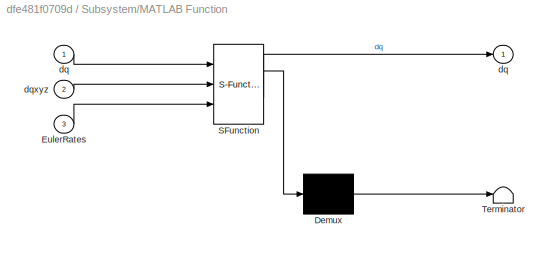
BLOCK [SubSystem] Subsystem/MATLAB Function
  ErrorFcn = Stateflow.Translate.translate
  PermitHierarchicalResolution = ExplicitOnly
  Ports = [3, 1]
  RequestExecContextInheritance = off
  SFBlockType = MATLAB Function
  TreatAsAtomicUnit = on
  Variant = off
BLOCK [Demux] Subsystem/MATLAB Function/ Demux 
  Outputs = 1
  Ports = [1, 1]
BLOCK [S-Function] Subsystem/MATLAB Function/ SFunction 
  EnableBusSupport = off
  FunctionName = sf_sfun
  PortCounts = [3 2]
  Ports = [3, 2]
  SFcnIsStateOwnerBlock = off
  SFunctionDeploymentMode = off
  Tag = Stateflow S-Function Cassie_CommandBlock_Library_6 8
BLOCK [Terminator] Subsystem/MATLAB Function/ Terminator 
BLOCK [Inport] Subsystem/MATLAB Function/EulerRates
  IconDisplay = Port number
  Port = 3
BLOCK [Outport] Subsystem/MATLAB Function/dq
  IconDisplay = Port number
BLOCK [Inport] Subsystem/MATLAB Function/dq 
  IconDisplay = Port number
BLOCK [Inport] Subsystem/MATLAB Function/dqxyz
  IconDisplay = Port number
  Port = 2
BLOCK [MATLABSystem] Subsystem/MATLAB System
  CovPos_abduction = c_CovPos_abduction
  CovPos_knee = c_CovPos_knee
  CovPos_qj1 = c_CovPos_qj1
  CovPos_qj2 = c_CovPos_qj2
  CovPos_qj3 = c_CovPos_qj3
  CovPos_rotation = c_CovPos_rotation
  CovPos_thigh = c_CovPos_thigh
  CovPos_toe = c_CovPos_toe
  Cov_Euler = c_Cov_Euler
  Cov_LinearAccelerator_xy = c_Cov_LinearAccelerator_xy
  Cov_LinearAccelerator_z = c_Cov_LinearAccelerator_z
  Cov_rpx_LRToe_body = c_Cov_rpx_LRToe_body
  Cov_rpy_LRToe_body = c_Cov_rpy_LRToe_body
  Cov_rpz_LRToe_body = c_Cov_rpz_LRToe_body
  KsL_1 = c_KsL_1
  KsL_2 = c_KsL_2
  KsR_1 = c_KsR_1
  KsR_2 = c_KsR_2
  MaskDisplay = disp('StateEstimator_2');\nport_label('input',1,'cassieOutputs');\nport_label('input',2,'IRC');\nport_label('input',3,'t_total');\nport_label('input',4,'isSim');\nport_label('output',1,'EstStates');\nport_label('output',2,'q');\nport_label('output',3,'EulerRates');\nport_label('output',4,'qxyz');\nport_label('output',5,'dqxyz');\nport_label('output',6,'IT');\nport_label('output',7,'a_world');\nport_label('out...<+30ch>
  MaskType = StateEstimator_2
  Ports = [4, 8]
  SimulateUsing = Interpreted execution
  System = StateEstimator_2
  Tx_slide_toe_2 = c_Tx_slide_toe_2
  Ty_slide_toe_2 = c_Ty_slide_toe_2
  Tz_slide_toe_2 = c_Tz_slide_toe_2
  sample_time = sample_time
  vx_slide_toe_1 = c_vx_slide_toe_1
  vx_slide_toe_2 = c_vx_slide_toe_2
  vy_slide_toe_1 = c_vy_slide_toe_1
  vy_slide_toe_2 = c_vy_slide_toe_2
  vz_slide_toe_1 = c_vz_slide_toe_1
  vz_slide_toe_2 = c_vz_slide_toe_2
BLOCK [MATLABSystem] Subsystem/MATLAB System1
  CovPos_abduction = c_CovPos_abduction
  CovPos_knee = c_CovPos_knee
  CovPos_qj1 = c_CovPos_qj1
  CovPos_qj2 = c_CovPos_qj2
  CovPos_qj3 = c_CovPos_qj3
  CovPos_rotation = c_CovPos_rotation
  CovPos_thigh = c_CovPos_thigh
  CovPos_toe = c_CovPos_toe
  CovVel_abduction = c_CovVel_abduction
  CovVel_knee = c_CovVel_knee
  CovVel_qj1 = c_CovVel_qj1
  CovVel_qj2 = c_CovVel_qj2
  CovVel_qj3 = c_CovVel_qj3
  CovVel_rotation = c_CovVel_rotation
  CovVel_thigh = c_CovVel_thigh
  CovVel_toe = c_CovVel_toe
  Cov_Euler = c_Cov_Euler
  Cov_Euler_rates = c_Cov_Euler_rates
  Cov_Lx_LRToe_stTD0 = c_Cov_Lx_LRToe_stTD0
  Cov_Ly_LRToe_stTD0 = c_Cov_Ly_LRToe_stTD0
  Cov_rpx_LRToe_stTD0 = c_Cov_rpx_LRToe_stTD0
  Cov_rpy_LRToe_stTD0 = c_Cov_rpy_LRToe_stTD0
  IK_max_iter_num = c_IK_max_iter_num
  Kd_abduction = c_Kd_abduction
  Kd_knee = c_Kd_knee
  Kd_pitch = c_Kd_pitch
  Kd_roll = c_Kd_roll
  Kd_rotation = c_Kd_rotation
  Kd_thigh = c_Kd_thigh
  Kd_toe = c_Kd_toe
  Kd_yaw = c_Kd_yaw
  Kp_abduction = c_Kp_abduction
  Kp_knee = c_Kp_knee
  Kp_pitch = c_Kp_pitch
  Kp_roll = c_Kp_roll
  Kp_rotation = c_Kp_rotation
  Kp_thigh = c_Kp_thigh
  Kp_toe = c_Kp_toe
  Kp_yaw = c_Kp_yaw
  MaskDisplay = disp('Cassie_Controller_4');\nport_label('input',1,'EstStates');\nport_label('input',2,'t_total');\nport_label('input',3,'isSim');\nport_label('input',4,'IRC');\nport_label('output',1,'userInputs');\nport_label('output',2,'Data');
  MaskType = Cassie_Controller_4
  Ports = [4, 2]
  SimulateUsing = Interpreted execution
  System = Cassie_Controller_4
  Vx_tgd_offset = c_Vx_tgd_offset
  Vy_tgd_offset = c_Vy_tgd_offset
  com_x_offset = c_com_x_offset
  knee_cp_time = c_knee_cp_time
  rp_LRToe_fil_param = c_rp_LRToe_fil_param
  sample_time = sample_time
  stance_thre_lb = c_stance_thre_lb
  stance_thre_ub = c_stance_thre_ub
  torque_transition_time = c_torque_transition_time
  u_abduction_swing_cp = c_u_abduction_swing_cp
  u_knee_cp = c_u_knee_cp
  u_pitch_cp = c_u_pitch_cp
  u_roll_cp = c_u_roll_cp
  use_dq_AR_for_PD = c_use_dq_AR_for_PD
BLOCK [MATLABSystem] Subsystem/MATLAB System2
  MaskDisplay = disp('PolyRegressionFilter_2');\nport_label('input',1,'q');\nport_label('output',1,'dq');
  MaskType = PolyRegressionFilter_2
  Ports = [1, 1]
  SimulateUsing = Code generation
  System = PolyRegressionFilter_2
  delay = 0
  dop = c_dop
  history_length = c_history_length
  max_dop = 3
  max_history_length = 20
  sample_time = sample_time
  signal_dim = 20
BLOCK [MATLABSystem] Subsystem/MATLAB System3
  CovPos_abduction = c_CovPos_abduction
  CovPos_knee = c_CovPos_knee
  CovPos_qj1 = c_CovPos_qj1
  CovPos_qj2 = c_CovPos_qj2
  CovPos_qj3 = c_CovPos_qj3
  CovPos_rotation = c_CovPos_rotation
  CovPos_thigh = c_CovPos_thigh
  CovPos_toe = c_CovPos_toe
  CovVel_abduction = c_CovVel_abduction
  CovVel_knee = c_CovVel_knee
  CovVel_qj1 = c_CovVel_qj1
  CovVel_qj2 = c_CovVel_qj2
  CovVel_qj3 = c_CovVel_qj3
  CovVel_rotation = c_CovVel_rotation
  CovVel_thigh = c_CovVel_thigh
  CovVel_toe = c_CovVel_toe
  Cov_Euler = c_Cov_Euler
  Cov_Euler_rates = c_Cov_Euler_rates
  Cov_Lx_LRToe_stTD0 = c_Cov_Lx_LRToe_stTD0
  Cov_Ly_LRToe_stTD0 = c_Cov_Ly_LRToe_stTD0
  Cov_rpx_LRToe_stTD0 = c_Cov_rpx_LRToe_stTD0
  Cov_rpy_LRToe_stTD0 = c_Cov_rpy_LRToe_stTD0
  IK_max_iter_num = c_IK_max_iter_num
  Kd_abduction = c_Kd_abduction
  Kd_knee = c_Kd_knee
  Kd_pitch = c_Kd_pitch
  Kd_roll = c_Kd_roll
  Kd_rotation = c_Kd_rotation
  Kd_thigh = c_Kd_thigh
  Kd_toe = c_Kd_toe
  Kd_yaw = c_Kd_yaw
  Kp_abduction = c_Kp_abduction
  Kp_knee = c_Kp_knee
  Kp_pitch = c_Kp_pitch
  Kp_roll = c_Kp_roll
  Kp_rotation = c_Kp_rotation
  Kp_thigh = c_Kp_thigh
  Kp_toe = c_Kp_toe
  Kp_yaw = c_Kp_yaw
  MaskDisplay = disp('Cassie_Controller_4');\nport_label('input',1,'EstStates');\nport_label('input',2,'t_total');\nport_label('input',3,'isSim');\nport_label('input',4,'IRC');\nport_label('output',1,'userInputs');\nport_label('output',2,'Data');
  MaskType = Cassie_Controller_4
  Ports = [4, 2]
  SimulateUsing = Code generation
  System = Cassie_Controller_4
  Vx_tgd_offset = c_Vx_tgd_offset
  Vy_tgd_offset = c_Vy_tgd_offset
  com_x_offset = c_com_x_offset
  knee_cp_time = c_knee_cp_time
  rp_LRToe_fil_param = c_rp_LRToe_fil_param
  sample_time = sample_time
  stance_thre_lb = c_stance_thre_lb
  stance_thre_ub = c_stance_thre_ub
  torque_transition_time = c_torque_transition_time
  u_abduction_swing_cp = c_u_abduction_swing_cp
  u_knee_cp = c_u_knee_cp
  u_pitch_cp = c_u_pitch_cp
  u_roll_cp = c_u_roll_cp
  use_dq_AR_for_PD = c_use_dq_AR_for_PD
BLOCK [MATLABSystem] Subsystem/MATLAB System4
  H_fil_param = c_H_fil_param
  MaskDisplay = disp('RadioCommandInterpreter');\nport_label('input',1,'cassieOutputs');\nport_label('input',2,'t_total');\nport_label('input',3,'isSim');\nport_label('output',1,'IRC');
  MaskType = RadioCommandInterpreter
  Ports = [3, 1]
  SimulateUsing = Code generation
  System = RadioCommandInterpreter
  Vx_tgd_fil_param = c_Vx_tgd_fil_param
  Vy_tgd_avg_fil_param = c_Vy_tgd_avg_fil_param
  desired_com2stToe_lateral_fil_param = c_desired_com2stToe_lateral_fil_param
  max_turn_per_sec = c_max_turn_per_sec
  sample_time = sample_time
BLOCK [Reference] Subsystem/MATLAB System5  REF=Cassie_CommandBlock_Library_5/Subsystem/MATLAB System2
  Commented = on
  Ports = [1, 1]
  SourceBlock = Cassie_CommandBlock_Library_5/Subsystem/MATLAB System2
  SourceType = PolyRegressionFilter_2
BLOCK [RateTransition] Subsystem/Rate Transition
  OutPortSampleTime = sample_time
BLOCK [RateTransition] Subsystem/Rate Transition1
  OutPortSampleTime = sample_time
BLOCK [RateTransition] Subsystem/Rate Transition2
  OutPortSampleTime = sample_time
BLOCK [RateTransition] Subsystem/Rate Transition3
  OutPortSampleTime = sample_time
BLOCK [RateTransition] Subsystem/Rate Transition4
  OutPortSampleTime = sample_time
BLOCK [RateTransition] Subsystem/Rate Transition5
  OutPortSampleTime = sample_time
BLOCK [Selector] Subsystem/Selector
  IndexOptions = Index vector (dialog)
  Indices = 1:20
  InputPortWidth = 40
  OutputSizes = 1
  Ports = [1, 1]
BLOCK [Selector] Subsystem/Selector1
  IndexOptions = Index vector (dialog)
  Indices = 21:40
  InputPortWidth = 40
  OutputSizes = 1
  Ports = [1, 1]
BLOCK [ToWorkspace] Subsystem/To Workspace
  FixptAsFi = on
  MaxDataPoints = inf
  Ports = [1]
  SampleTime = -1
  Save2DSignal = 3-D array (concatenate along third dimension)
  SaveFormat = Timeseries
  VariableName = Data
BLOCK [ToWorkspace] Subsystem/To Workspace1
  FixptAsFi = on
  MaxDataPoints = inf
  Ports = [1]
  SampleTime = -1
  Save2DSignal = 3-D array (concatenate along third dimension)
  SaveFormat = Timeseries
  VariableName = Data_perfect
BLOCK [ToWorkspace] Subsystem/To Workspace2
  FixptAsFi = on
  MaxDataPoints = inf
  Ports = [1]
  SampleTime = -1
  Save2DSignal = 3-D array (concatenate along third dimension)
  SaveFormat = Timeseries
  VariableName = EstStates
BLOCK [ToWorkspace] Subsystem/To Workspace3
  FixptAsFi = on
  MaxDataPoints = inf
  Ports = [1]
  SampleTime = -1
  Save2DSignal = 3-D array (concatenate along third dimension)
  SaveFormat = Timeseries
  VariableName = EulerRates
BLOCK [ToWorkspace] Subsystem/To Workspace4
  FixptAsFi = on
  MaxDataPoints = inf
  Ports = [1]
  SampleTime = -1
  Save2DSignal = 3-D array (concatenate along third dimension)
  SaveFormat = Timeseries
  VariableName = qxyz
BLOCK [ToWorkspace] Subsystem/To Workspace5
  FixptAsFi = on
  MaxDataPoints = inf
  Ports = [1]
  SampleTime = -1
  Save2DSignal = 3-D array (concatenate along third dimension)
  SaveFormat = Timeseries
  VariableName = dqxyz
BLOCK [ToWorkspace] Subsystem/To Workspace6
  FixptAsFi = on
  MaxDataPoints = inf
  Ports = [1]
  SampleTime = -1
  Save2DSignal = 3-D array (concatenate along third dimension)
  SaveFormat = Timeseries
  VariableName = IT
BLOCK [ToWorkspace] Subsystem/To Workspace7
  FixptAsFi = on
  MaxDataPoints = inf
  Ports = [1]
  SampleTime = -1
  Save2DSignal = 3-D array (concatenate along third dimension)
  SaveFormat = Timeseries
  VariableName = a_world
BLOCK [ToWorkspace] Subsystem/To Workspace8
  FixptAsFi = on
  MaxDataPoints = inf
  Ports = [1]
  SampleTime = -1
  Save2DSignal = 3-D array (concatenate along third dimension)
  SaveFormat = Timeseries
  VariableName = PR_dq
BLOCK [ToWorkspace] Subsystem/To Workspace9
  FixptAsFi = on
  MaxDataPoints = inf
  Ports = [1]
  SampleTime = -1
  Save2DSignal = 3-D array (concatenate along third dimension)
  SaveFormat = Timeseries
  VariableName = PR_q
BLOCK [Outport] Subsystem/inputs 
  IconDisplay = Port number
BLOCK [Inport] Subsystem/outputs
  IconDisplay = Port number
  OutDataTypeStr = Bus: CassieOutBus
LINE Subsystem/Bus Assignment1:1 -> Subsystem/MATLAB System3:1
NET Subsystem/Bus Assignment:1 -> Subsystem/MATLAB System1:1, Subsystem/To Workspace2:1
LINE Subsystem/Constant:1 -> Subsystem/Rate Transition3:1
LINE Subsystem/Digital Clock1:1 -> Subsystem/MATLAB System3:2
NET Subsystem/Digital Clock:1 -> Subsystem/MATLAB System1:2, Subsystem/MATLAB System:3
NET Subsystem/Full State:1 -> Subsystem/Selector1:1, Subsystem/Selector:1
LINE Subsystem/Log Data /Data Bus Selector:1 -> Subsystem/Log Data /Vector Concatenate:1
LINE Subsystem/Log Data /Data Bus Selector:10 -> Subsystem/Log Data /Vector Concatenate:10
LINE Subsystem/Log Data /Data Bus Selector:11 -> Subsystem/Log Data /Vector Concatenate:11
LINE Subsystem/Log Data /Data Bus Selector:12 -> Subsystem/Log Data /Vector Concatenate:12
LINE Subsystem/Log Data /Data Bus Selector:13 -> Subsystem/Log Data /Vector Concatenate:13
LINE Subsystem/Log Data /Data Bus Selector:14 -> Subsystem/Log Data /Vector Concatenate:14
LINE Subsystem/Log Data /Data Bus Selector:15 -> Subsystem/Log Data /Vector Concatenate:15
LINE Subsystem/Log Data /Data Bus Selector:16 -> Subsystem/Log Data /Vector Concatenate:16
LINE Subsystem/Log Data /Data Bus Selector:17 -> Subsystem/Log Data /Vector Concatenate:17
LINE Subsystem/Log Data /Data Bus Selector:18 -> Subsystem/Log Data /Vector Concatenate:18
LINE Subsystem/Log Data /Data Bus Selector:19 -> Subsystem/Log Data /Vector Concatenate:19
LINE Subsystem/Log Data /Data Bus Selector:2 -> Subsystem/Log Data /Vector Concatenate:2
LINE Subsystem/Log Data /Data Bus Selector:20 -> Subsystem/Log Data /Vector Concatenate:20
LINE Subsystem/Log Data /Data Bus Selector:21 -> Subsystem/Log Data /Vector Concatenate:21
LINE Subsystem/Log Data /Data Bus Selector:22 -> Subsystem/Log Data /Vector Concatenate:22
LINE Subsystem/Log Data /Data Bus Selector:23 -> Subsystem/Log Data /Vector Concatenate:23
LINE Subsystem/Log Data /Data Bus Selector:24 -> Subsystem/Log Data /Vector Concatenate:24
LINE Subsystem/Log Data /Data Bus Selector:25 -> Subsystem/Log Data /Vector Concatenate:25
LINE Subsystem/Log Data /Data Bus Selector:26 -> Subsystem/Log Data /Vector Concatenate:26
LINE Subsystem/Log Data /Data Bus Selector:27 -> Subsystem/Log Data /Vector Concatenate:27
LINE Subsystem/Log Data /Data Bus Selector:28 -> Subsystem/Log Data /Vector Concatenate:28
LINE Subsystem/Log Data /Data Bus Selector:29 -> Subsystem/Log Data /Vector Concatenate:29
LINE Subsystem/Log Data /Data Bus Selector:3 -> Subsystem/Log Data /Vector Concatenate:3
LINE Subsystem/Log Data /Data Bus Selector:30 -> Subsystem/Log Data /Vector Concatenate:30
LINE Subsystem/Log Data /Data Bus Selector:31 -> Subsystem/Log Data /Vector Concatenate:31
LINE Subsystem/Log Data /Data Bus Selector:32 -> Subsystem/Log Data /Vector Concatenate:32
LINE Subsystem/Log Data /Data Bus Selector:33 -> Subsystem/Log Data /Vector Concatenate:33
LINE Subsystem/Log Data /Data Bus Selector:34 -> Subsystem/Log Data /Vector Concatenate:34
LINE Subsystem/Log Data /Data Bus Selector:35 -> Subsystem/Log Data /Vector Concatenate:35
LINE Subsystem/Log Data /Data Bus Selector:36 -> Subsystem/Log Data /Vector Concatenate:36
LINE Subsystem/Log Data /Data Bus Selector:37 -> Subsystem/Log Data /Vector Concatenate:37
LINE Subsystem/Log Data /Data Bus Selector:38 -> Subsystem/Log Data /Vector Concatenate:38
LINE Subsystem/Log Data /Data Bus Selector:39 -> Subsystem/Log Data /Vector Concatenate:39
LINE Subsystem/Log Data /Data Bus Selector:4 -> Subsystem/Log Data /Vector Concatenate:4
LINE Subsystem/Log Data /Data Bus Selector:40 -> Subsystem/Log Data /Vector Concatenate:40
LINE Subsystem/Log Data /Data Bus Selector:41 -> Subsystem/Log Data /Vector Concatenate:41
LINE Subsystem/Log Data /Data Bus Selector:42 -> Subsystem/Log Data /Vector Concatenate:42
LINE Subsystem/Log Data /Data Bus Selector:43 -> Subsystem/Log Data /Vector Concatenate:43
LINE Subsystem/Log Data /Data Bus Selector:44 -> Subsystem/Log Data /Vector Concatenate:44
LINE Subsystem/Log Data /Data Bus Selector:45 -> Subsystem/Log Data /Vector Concatenate:46
LINE Subsystem/Log Data /Data Bus Selector:46 -> Subsystem/Log Data /Vector Concatenate:45
LINE Subsystem/Log Data /Data Bus Selector:5 -> Subsystem/Log Data /Vector Concatenate:5
LINE Subsystem/Log Data /Data Bus Selector:6 -> Subsystem/Log Data /Vector Concatenate:6
LINE Subsystem/Log Data /Data Bus Selector:7 -> Subsystem/Log Data /Vector Concatenate:7
LINE Subsystem/Log Data /Data Bus Selector:8 -> Subsystem/Log Data /Vector Concatenate:8
LINE Subsystem/Log Data /Data Bus Selector:9 -> Subsystem/Log Data /Vector Concatenate:9
LINE Subsystem/Log Data /In1:1 -> Subsystem/Log Data /Data Bus Selector:1
LINE Subsystem/Log Data /In2:1 -> Subsystem/Log Data /SE_Data Bus Selector:1
LINE Subsystem/Log Data /SE_Data Bus Selector:1 -> Subsystem/Log Data /Vector Concatenate1:1
LINE Subsystem/Log Data /SE_Data Bus Selector:2 -> Subsystem/Log Data /Vector Concatenate1:2
LINE Subsystem/Log Data /SE_Data Bus Selector:3 -> Subsystem/Log Data /Vector Concatenate1:3
LINE Subsystem/Log Data /Vector Concatenate1:1 -> Subsystem/Log Data /Scope :1
LINE Subsystem/Log Data /Vector Concatenate:1 -> Subsystem/Log Data /Scope 1:1
LINE Subsystem/Log Data 1/Bus Selector10:1 -> Subsystem/Log Data 1/Gain1:1
LINE Subsystem/Log Data 1/Bus Selector10:2 -> Subsystem/Log Data 1/Gain2:1
LINE Subsystem/Log Data 1/Bus Selector10:3 -> Subsystem/Log Data 1/Gain3:1
LINE Subsystem/Log Data 1/Bus Selector10:4 -> Subsystem/Log Data 1/Gain4:1
LINE Subsystem/Log Data 1/Bus Selector11:1 -> Subsystem/Log Data 1/Gain9:1
LINE Subsystem/Log Data 1/Bus Selector11:2 -> Subsystem/Log Data 1/Gain8:1
LINE Subsystem/Log Data 1/Bus Selector11:3 -> Subsystem/Log Data 1/Gain7:1
LINE Subsystem/Log Data 1/Bus Selector11:4 -> Subsystem/Log Data 1/Gain6:1
LINE Subsystem/Log Data 1/Bus Selector11:5 -> Subsystem/Log Data 1/Gain5:1
LINE Subsystem/Log Data 1/Bus Selector12:1 -> Subsystem/Log Data 1/Gain22:1
LINE Subsystem/Log Data 1/Bus Selector12:2 -> Subsystem/Log Data 1/Gain23:1
LINE Subsystem/Log Data 1/Bus Selector13:1 -> Subsystem/Log Data 1/Gain:1
LINE Subsystem/Log Data 1/Bus Selector14:1 -> Subsystem/Log Data 1/Gain24:1
LINE Subsystem/Log Data 1/Bus Selector14:2 -> Subsystem/Log Data 1/Gain25:1
LINE Subsystem/Log Data 1/Bus Selector14:3 -> Subsystem/Log Data 1/Gain26:1
NET Subsystem/Log Data 1/Bus Selector1:1 -> Subsystem/Log Data 1/Selector68:1, Subsystem/Log Data 1/Selector70:1, Subsystem/Log Data 1/Selector73:1, Subsystem/Log Data 1/Selector75:1, Subsystem/Log Data 1/Selector77:1, Subsystem/Log Data 1/Selector79:1, Subsystem/Log Data 1/Selector81:1, Subsystem/Log Data 1/Selector83:1
NET Subsystem/Log Data 1/Bus Selector1:2 -> Subsystem/Log Data 1/Selector69:1, Subsystem/Log Data 1/Selector71:1, Subsystem/Log Data 1/Selector74:1, Subsystem/Log Data 1/Selector76:1, Subsystem/Log Data 1/Selector78:1, Subsystem/Log Data 1/Selector80:1, Subsystem/Log Data 1/Selector82:1, Subsystem/Log Data 1/Selector84:1
NET Subsystem/Log Data 1/Bus Selector2:1 -> Subsystem/Log Data 1/Selector20:1, Subsystem/Log Data 1/Selector22:1, Subsystem/Log Data 1/Selector24:1, Subsystem/Log Data 1/Selector26:1, Subsystem/Log Data 1/Selector32:1, Subsystem/Log Data 1/Selector34:1, Subsystem/Log Data 1/Selector36:1, Subsystem/Log Data 1/Selector38:1
NET Subsystem/Log Data 1/Bus Selector2:2 -> Subsystem/Log Data 1/Selector21:1, Subsystem/Log Data 1/Selector23:1, Subsystem/Log Data 1/Selector25:1, Subsystem/Log Data 1/Selector27:1, Subsystem/Log Data 1/Selector33:1, Subsystem/Log Data 1/Selector35:1, Subsystem/Log Data 1/Selector37:1, Subsystem/Log Data 1/Selector39:1
LINE Subsystem/Log Data 1/Bus Selector3:1 -> Subsystem/Log Data 1/Gain12:1
LINE Subsystem/Log Data 1/Bus Selector3:2 -> Subsystem/Log Data 1/Gain13:1
LINE Subsystem/Log Data 1/Bus Selector4:1 -> Subsystem/Log Data 1/Gain14:1
LINE Subsystem/Log Data 1/Bus Selector4:2 -> Subsystem/Log Data 1/Gain15:1
NET Subsystem/Log Data 1/Bus Selector5:1 -> Subsystem/Log Data 1/Selector72:1, Subsystem/Log Data 1/Selector92:1, Subsystem/Log Data 1/Selector94:1, Subsystem/Log Data 1/Selector96:1, Subsystem/Log Data 1/Selector98:1
LINE Subsystem/Log Data 1/Bus Selector6:1 -> Subsystem/Log Data 1/Gain16:1
LINE Subsystem/Log Data 1/Bus Selector6:2 -> Subsystem/Log Data 1/Gain17:1
LINE Subsystem/Log Data 1/Bus Selector7:1 -> Subsystem/Log Data 1/Gain18:1
LINE Subsystem/Log Data 1/Bus Selector7:2 -> Subsystem/Log Data 1/Gain19:1
LINE Subsystem/Log Data 1/Bus Selector8:1 -> Subsystem/Log Data 1/Gain20:1
LINE Subsystem/Log Data 1/Bus Selector8:2 -> Subsystem/Log Data 1/Gain21:1
NET Subsystem/Log Data 1/Bus Selector9:1 -> Subsystem/Log Data 1/Mux42:1, Subsystem/Log Data 1/Reshape73:1
NET Subsystem/Log Data 1/Bus Selector9:2 -> Subsystem/Log Data 1/Mux43:1, Subsystem/Log Data 1/Reshape74:1
NET Subsystem/Log Data 1/Bus Selector9:3 -> Subsystem/Log Data 1/Mux42:2, Subsystem/Log Data 1/Reshape75:1
NET Subsystem/Log Data 1/Bus Selector9:4 -> Subsystem/Log Data 1/Mux43:2, Subsystem/Log Data 1/Reshape76:1
LINE Subsystem/Log Data 1/Bus Selector:1 -> Subsystem/Log Data 1/Gain10:1
LINE Subsystem/Log Data 1/Bus Selector:2 -> Subsystem/Log Data 1/Gain11:1
LINE Subsystem/Log Data 1/Demux1:1 -> Subsystem/Log Data 1/Reshape105:1
LINE Subsystem/Log Data 1/Demux1:2 -> Subsystem/Log Data 1/Reshape106:1
LINE Subsystem/Log Data 1/Demux1:3 -> Subsystem/Log Data 1/Reshape107:1
LINE Subsystem/Log Data 1/Demux1:4 -> Subsystem/Log Data 1/Reshape108:1
LINE Subsystem/Log Data 1/Demux2:1 -> Subsystem/Log Data 1/Reshape109:1
LINE Subsystem/Log Data 1/Demux2:2 -> Subsystem/Log Data 1/Reshape110:1
LINE Subsystem/Log Data 1/Demux2:3 -> Subsystem/Log Data 1/Reshape111:1
LINE Subsystem/Log Data 1/Demux2:4 -> Subsystem/Log Data 1/Reshape112:1
LINE Subsystem/Log Data 1/Demux3:1 -> Subsystem/Log Data 1/Reshape113:1
LINE Subsystem/Log Data 1/Demux3:2 -> Subsystem/Log Data 1/Reshape114:1
LINE Subsystem/Log Data 1/Demux3:3 -> Subsystem/Log Data 1/Reshape115:1
LINE Subsystem/Log Data 1/Demux3:4 -> Subsystem/Log Data 1/Reshape116:1
LINE Subsystem/Log Data 1/Demux:1 -> Subsystem/Log Data 1/Reshape100:1
LINE Subsystem/Log Data 1/Demux:2 -> Subsystem/Log Data 1/Reshape101:1
LINE Subsystem/Log Data 1/Demux:3 -> Subsystem/Log Data 1/Reshape102:1
NET Subsystem/Log Data 1/Gain10:1 -> Subsystem/Log Data 1/Selector10:1, Subsystem/Log Data 1/Selector12:1, Subsystem/Log Data 1/Selector14:1, Subsystem/Log Data 1/Selector16:1, Subsystem/Log Data 1/Selector18:1, Subsystem/Log Data 1/Selector2:1, Subsystem/Log Data 1/Selector4:1, Subsystem/Log Data 1/Selector6:1, Subsystem/Log Data 1/Selector8:1, Subsystem/Log Data 1/Selector:1
NET Subsystem/Log Data 1/Gain11:1 -> Subsystem/Log Data 1/Selector11:1, Subsystem/Log Data 1/Selector13:1, Subsystem/Log Data 1/Selector15:1, Subsystem/Log Data 1/Selector17:1, Subsystem/Log Data 1/Selector19:1, Subsystem/Log Data 1/Selector1:1, Subsystem/Log Data 1/Selector3:1, Subsystem/Log Data 1/Selector5:1, Subsystem/Log Data 1/Selector7:1, Subsystem/Log Data 1/Selector9:1
NET Subsystem/Log Data 1/Gain12:1 -> Subsystem/Log Data 1/Selector28:1, Subsystem/Log Data 1/Selector30:1, Subsystem/Log Data 1/Selector40:1, Subsystem/Log Data 1/Selector42:1, Subsystem/Log Data 1/Selector44:1, Subsystem/Log Data 1/Selector46:1, Subsystem/Log Data 1/Selector48:1, Subsystem/Log Data 1/Selector50:1
NET Subsystem/Log Data 1/Gain13:1 -> Subsystem/Log Data 1/Selector29:1, Subsystem/Log Data 1/Selector31:1, Subsystem/Log Data 1/Selector41:1, Subsystem/Log Data 1/Selector43:1, Subsystem/Log Data 1/Selector45:1, Subsystem/Log Data 1/Selector47:1, Subsystem/Log Data 1/Selector49:1, Subsystem/Log Data 1/Selector51:1
NET Subsystem/Log Data 1/Gain14:1 -> Subsystem/Log Data 1/Selector52:1, Subsystem/Log Data 1/Selector54:1, Subsystem/Log Data 1/Selector56:1, Subsystem/Log Data 1/Selector58:1, Subsystem/Log Data 1/Selector60:1, Subsystem/Log Data 1/Selector62:1, Subsystem/Log Data 1/Selector64:1, Subsystem/Log Data 1/Selector66:1
NET Subsystem/Log Data 1/Gain15:1 -> Subsystem/Log Data 1/Selector53:1, Subsystem/Log Data 1/Selector55:1, Subsystem/Log Data 1/Selector57:1, Subsystem/Log Data 1/Selector59:1, Subsystem/Log Data 1/Selector61:1, Subsystem/Log Data 1/Selector63:1, Subsystem/Log Data 1/Selector65:1, Subsystem/Log Data 1/Selector67:1
NET Subsystem/Log Data 1/Gain16:1 -> Subsystem/Log Data 1/Selector85:1, Subsystem/Log Data 1/Selector86:1, Subsystem/Log Data 1/Selector87:1
NET Subsystem/Log Data 1/Gain17:1 -> Subsystem/Log Data 1/Selector88:1, Subsystem/Log Data 1/Selector89:1, Subsystem/Log Data 1/Selector90:1
NET Subsystem/Log Data 1/Gain18:1 -> Subsystem/Log Data 1/Selector91:1, Subsystem/Log Data 1/Selector93:1, Subsystem/Log Data 1/Selector95:1
NET Subsystem/Log Data 1/Gain19:1 -> Subsystem/Log Data 1/Selector100:1, Subsystem/Log Data 1/Selector97:1, Subsystem/Log Data 1/Selector99:1
NET Subsystem/Log Data 1/Gain1:1 -> Subsystem/Log Data 1/Mux44:1, Subsystem/Log Data 1/Reshape79:1
NET Subsystem/Log Data 1/Gain20:1 -> Subsystem/Log Data 1/Selector101:1, Subsystem/Log Data 1/Selector102:1, Subsystem/Log Data 1/Selector103:1, Subsystem/Log Data 1/Selector104:1, Subsystem/Log Data 1/Selector105:1, Subsystem/Log Data 1/Selector106:1, Subsystem/Log Data 1/Selector107:1
NET Subsystem/Log Data 1/Gain21:1 -> Subsystem/Log Data 1/Selector108:1, Subsystem/Log Data 1/Selector109:1, Subsystem/Log Data 1/Selector110:1, Subsystem/Log Data 1/Selector111:1, Subsystem/Log Data 1/Selector112:1, Subsystem/Log Data 1/Selector113:1, Subsystem/Log Data 1/Selector114:1
NET Subsystem/Log Data 1/Gain22:1 -> Subsystem/Log Data 1/Selector115:1, Subsystem/Log Data 1/Selector116:1, Subsystem/Log Data 1/Selector117:1, Subsystem/Log Data 1/Selector118:1, Subsystem/Log Data 1/Selector119:1, Subsystem/Log Data 1/Selector120:1, Subsystem/Log Data 1/Selector121:1, Subsystem/Log Data 1/Selector122:1, Subsystem/Log Data 1/Selector123:1, Subsystem/Log Data 1/Selector124:1, Subsystem/Log Data 1/Selector125:1, Subsystem/Log Data 1/Selector126:1, Subsystem/Log Data 1/Selector127:1, Subsystem/Log Data 1/Selector128:1
NET Subsystem/Log Data 1/Gain23:1 -> Subsystem/Log Data 1/Selector129:1, Subsystem/Log Data 1/Selector130:1, Subsystem/Log Data 1/Selector131:1, Subsystem/Log Data 1/Selector132:1, Subsystem/Log Data 1/Selector133:1, Subsystem/Log Data 1/Selector134:1, Subsystem/Log Data 1/Selector135:1, Subsystem/Log Data 1/Selector136:1, Subsystem/Log Data 1/Selector137:1, Subsystem/Log Data 1/Selector138:1, Subsystem/Log Data 1/Selector139:1, Subsystem/Log Data 1/Selector140:1, Subsystem/Log Data 1/Selector141:1, Subsystem/Log Data 1/Selector142:1
LINE Subsystem/Log Data 1/Gain24:1 -> Subsystem/Log Data 1/Demux1:1
LINE Subsystem/Log Data 1/Gain25:1 -> Subsystem/Log Data 1/Demux2:1
LINE Subsystem/Log Data 1/Gain26:1 -> Subsystem/Log Data 1/Demux3:1
NET Subsystem/Log Data 1/Gain2:1 -> Subsystem/Log Data 1/Mux45:1, Subsystem/Log Data 1/Reshape80:1
NET Subsystem/Log Data 1/Gain3:1 -> Subsystem/Log Data 1/Mux44:2, Subsystem/Log Data 1/Reshape81:1
NET Subsystem/Log Data 1/Gain4:1 -> Subsystem/Log Data 1/Mux45:2, Subsystem/Log Data 1/Reshape82:1
LINE Subsystem/Log Data 1/Gain5:1 -> Subsystem/Log Data 1/Mux61:2
LINE Subsystem/Log Data 1/Gain6:1 -> Subsystem/Log Data 1/Mux61:1
LINE Subsystem/Log Data 1/Gain7:1 -> Subsystem/Log Data 1/Mux60:2
LINE Subsystem/Log Data 1/Gain8:1 -> Subsystem/Log Data 1/Mux60:1
LINE Subsystem/Log Data 1/Gain9:1 -> Subsystem/Log Data 1/Reshape99:1
LINE Subsystem/Log Data 1/Gain:1 -> Subsystem/Log Data 1/Demux:1
NET Subsystem/Log Data 1/In1:1 -> Subsystem/Log Data 1/Bus Selector10:1, Subsystem/Log Data 1/Bus Selector11:1, Subsystem/Log Data 1/Bus Selector12:1, Subsystem/Log Data 1/Bus Selector1:1, Subsystem/Log Data 1/Bus Selector2:1, Subsystem/Log Data 1/Bus Selector3:1, Subsystem/Log Data 1/Bus Selector4:1, Subsystem/Log Data 1/Bus Selector5:1, Subsystem/Log Data 1/Bus Selector6:1, Subsystem/Log Data 1/Bus Selector7:1, Subsystem/Log Data 1/Bus Selector8:1, Subsystem/Log Data 1/Bus Selector9:1, Subsystem/Log Data 1/Bus Selector:1
NET Subsystem/Log Data 1/In2:1 -> Subsystem/Log Data 1/Bus Selector13:1, Subsystem/Log Data 1/Bus Selector14:1
LINE Subsystem/Log Data 1/Mux10:1 -> Subsystem/Log Data 1/Reshape10:1
LINE Subsystem/Log Data 1/Mux11:1 -> Subsystem/Log Data 1/Reshape11:1
LINE Subsystem/Log Data 1/Mux12:1 -> Subsystem/Log Data 1/Reshape12:1
LINE Subsystem/Log Data 1/Mux13:1 -> Subsystem/Log Data 1/Reshape13:1
LINE Subsystem/Log Data 1/Mux14:1 -> Subsystem/Log Data 1/Reshape14:1
LINE Subsystem/Log Data 1/Mux15:1 -> Subsystem/Log Data 1/Reshape15:1
LINE Subsystem/Log Data 1/Mux16:1 -> Subsystem/Log Data 1/Reshape16:1
LINE Subsystem/Log Data 1/Mux17:1 -> Subsystem/Log Data 1/Reshape17:1
LINE Subsystem/Log Data 1/Mux18:1 -> Subsystem/Log Data 1/Reshape18:1
LINE Subsystem/Log Data 1/Mux19:1 -> Subsystem/Log Data 1/Reshape19:1
LINE Subsystem/Log Data 1/Mux1:1 -> Subsystem/Log Data 1/Reshape1:1
LINE Subsystem/Log Data 1/Mux20:1 -> Subsystem/Log Data 1/Reshape20:1
LINE Subsystem/Log Data 1/Mux21:1 -> Subsystem/Log Data 1/Reshape21:1
LINE Subsystem/Log Data 1/Mux22:1 -> Subsystem/Log Data 1/Reshape22:1
LINE Subsystem/Log Data 1/Mux23:1 -> Subsystem/Log Data 1/Reshape23:1
LINE Subsystem/Log Data 1/Mux24:1 -> Subsystem/Log Data 1/Reshape24:1
LINE Subsystem/Log Data 1/Mux25:1 -> Subsystem/Log Data 1/Reshape25:1
LINE Subsystem/Log Data 1/Mux26:1 -> Subsystem/Log Data 1/Reshape26:1
LINE Subsystem/Log Data 1/Mux27:1 -> Subsystem/Log Data 1/Reshape27:1
LINE Subsystem/Log Data 1/Mux28:1 -> Subsystem/Log Data 1/Reshape28:1
LINE Subsystem/Log Data 1/Mux29:1 -> Subsystem/Log Data 1/Reshape29:1
LINE Subsystem/Log Data 1/Mux2:1 -> Subsystem/Log Data 1/Reshape2:1
LINE Subsystem/Log Data 1/Mux30:1 -> Subsystem/Log Data 1/Reshape30:1
LINE Subsystem/Log Data 1/Mux31:1 -> Subsystem/Log Data 1/Reshape31:1
LINE Subsystem/Log Data 1/Mux32:1 -> Subsystem/Log Data 1/Reshape32:1
LINE Subsystem/Log Data 1/Mux33:1 -> Subsystem/Log Data 1/Reshape33:1
LINE Subsystem/Log Data 1/Mux34:1 -> Subsystem/Log Data 1/Reshape34:1
LINE Subsystem/Log Data 1/Mux35:1 -> Subsystem/Log Data 1/Reshape35:1
LINE Subsystem/Log Data 1/Mux36:1 -> Subsystem/Log Data 1/Reshape36:1
LINE Subsystem/Log Data 1/Mux37:1 -> Subsystem/Log Data 1/Reshape37:1
LINE Subsystem/Log Data 1/Mux38:1 -> Subsystem/Log Data 1/Reshape38:1
LINE Subsystem/Log Data 1/Mux39:1 -> Subsystem/Log Data 1/Reshape39:1
LINE Subsystem/Log Data 1/Mux3:1 -> Subsystem/Log Data 1/Reshape3:1
LINE Subsystem/Log Data 1/Mux40:1 -> Subsystem/Log Data 1/Reshape45:1
LINE Subsystem/Log Data 1/Mux41:1 -> Subsystem/Log Data 1/Reshape46:1
LINE Subsystem/Log Data 1/Mux42:1 -> Subsystem/Log Data 1/Reshape77:1
LINE Subsystem/Log Data 1/Mux43:1 -> Subsystem/Log Data 1/Reshape78:1
LINE Subsystem/Log Data 1/Mux44:1 -> Subsystem/Log Data 1/Reshape83:1
LINE Subsystem/Log Data 1/Mux45:1 -> Subsystem/Log Data 1/Reshape84:1
LINE Subsystem/Log Data 1/Mux46:1 -> Subsystem/Log Data 1/Reshape85:1
LINE Subsystem/Log Data 1/Mux47:1 -> Subsystem/Log Data 1/Reshape86:1
LINE Subsystem/Log Data 1/Mux48:1 -> Subsystem/Log Data 1/Reshape87:1
LINE Subsystem/Log Data 1/Mux49:1 -> Subsystem/Log Data 1/Reshape88:1
LINE Subsystem/Log Data 1/Mux4:1 -> Subsystem/Log Data 1/Reshape4:1
LINE Subsystem/Log Data 1/Mux50:1 -> Subsystem/Log Data 1/Reshape89:1
LINE Subsystem/Log Data 1/Mux51:1 -> Subsystem/Log Data 1/Reshape90:1
LINE Subsystem/Log Data 1/Mux52:1 -> Subsystem/Log Data 1/Reshape91:1
LINE Subsystem/Log Data 1/Mux53:1 -> Subsystem/Log Data 1/Reshape92:1
LINE Subsystem/Log Data 1/Mux54:1 -> Subsystem/Log Data 1/Reshape93:1
LINE Subsystem/Log Data 1/Mux55:1 -> Subsystem/Log Data 1/Reshape94:1
LINE Subsystem/Log Data 1/Mux56:1 -> Subsystem/Log Data 1/Reshape95:1
LINE Subsystem/Log Data 1/Mux57:1 -> Subsystem/Log Data 1/Reshape96:1
LINE Subsystem/Log Data 1/Mux58:1 -> Subsystem/Log Data 1/Reshape97:1
LINE Subsystem/Log Data 1/Mux59:1 -> Subsystem/Log Data 1/Reshape98:1
LINE Subsystem/Log Data 1/Mux5:1 -> Subsystem/Log Data 1/Reshape5:1
LINE Subsystem/Log Data 1/Mux60:1 -> Subsystem/Log Data 1/Reshape103:1
LINE Subsystem/Log Data 1/Mux61:1 -> Subsystem/Log Data 1/Reshape104:1
LINE Subsystem/Log Data 1/Mux6:1 -> Subsystem/Log Data 1/Reshape6:1
LINE Subsystem/Log Data 1/Mux7:1 -> Subsystem/Log Data 1/Reshape7:1
LINE Subsystem/Log Data 1/Mux8:1 -> Subsystem/Log Data 1/Reshape8:1
LINE Subsystem/Log Data 1/Mux9:1 -> Subsystem/Log Data 1/Reshape9:1
LINE Subsystem/Log Data 1/Mux:1 -> Subsystem/Log Data 1/Reshape:1
NET Subsystem/Log Data 1/Reshape100:1 -> Subsystem/Log Data 1/Scope 100:1, Subsystem/Log Data 1/Scope100:1
NET Subsystem/Log Data 1/Reshape101:1 -> Subsystem/Log Data 1/Scope 101:1, Subsystem/Log Data 1/Scope101:1
NET Subsystem/Log Data 1/Reshape102:1 -> Subsystem/Log Data 1/Scope 102:1, Subsystem/Log Data 1/Scope102:1
NET Subsystem/Log Data 1/Reshape103:1 -> Subsystem/Log Data 1/Scope 103:1, Subsystem/Log Data 1/Scope103:1
NET Subsystem/Log Data 1/Reshape104:1 -> Subsystem/Log Data 1/Scope 104:1, Subsystem/Log Data 1/Scope104:1
NET Subsystem/Log Data 1/Reshape105:1 -> Subsystem/Log Data 1/Scope 105:1, Subsystem/Log Data 1/Scope105:1
NET Subsystem/Log Data 1/Reshape106:1 -> Subsystem/Log Data 1/Scope 106:1, Subsystem/Log Data 1/Scope106:1
NET Subsystem/Log Data 1/Reshape107:1 -> Subsystem/Log Data 1/Scope 107:1, Subsystem/Log Data 1/Scope107:1
NET Subsystem/Log Data 1/Reshape108:1 -> Subsystem/Log Data 1/Scope 108:1, Subsystem/Log Data 1/Scope108:1
NET Subsystem/Log Data 1/Reshape109:1 -> Subsystem/Log Data 1/Scope 109:1, Subsystem/Log Data 1/Scope109:1
NET Subsystem/Log Data 1/Reshape10:1 -> Subsystem/Log Data 1/Scope 10:1, Subsystem/Log Data 1/Scope10:1
NET Subsystem/Log Data 1/Reshape110:1 -> Subsystem/Log Data 1/Scope 110:1, Subsystem/Log Data 1/Scope110:1
NET Subsystem/Log Data 1/Reshape111:1 -> Subsystem/Log Data 1/Scope 111:1, Subsystem/Log Data 1/Scope111:1
NET Subsystem/Log Data 1/Reshape112:1 -> Subsystem/Log Data 1/Scope 112:1, Subsystem/Log Data 1/Scope112:1
NET Subsystem/Log Data 1/Reshape113:1 -> Subsystem/Log Data 1/Scope 113:1, Subsystem/Log Data 1/Scope113:1
NET Subsystem/Log Data 1/Reshape114:1 -> Subsystem/Log Data 1/Scope 114:1, Subsystem/Log Data 1/Scope114:1
NET Subsystem/Log Data 1/Reshape115:1 -> Subsystem/Log Data 1/Scope 115:1, Subsystem/Log Data 1/Scope115:1
NET Subsystem/Log Data 1/Reshape116:1 -> Subsystem/Log Data 1/Scope 116:1, Subsystem/Log Data 1/Scope116:1
NET Subsystem/Log Data 1/Reshape11:1 -> Subsystem/Log Data 1/Scope 11:1, Subsystem/Log Data 1/Scope11:1
NET Subsystem/Log Data 1/Reshape12:1 -> Subsystem/Log Data 1/Scope 12:1, Subsystem/Log Data 1/Scope12:1
NET Subsystem/Log Data 1/Reshape13:1 -> Subsystem/Log Data 1/Scope 13:1, Subsystem/Log Data 1/Scope13:1
NET Subsystem/Log Data 1/Reshape14:1 -> Subsystem/Log Data 1/Scope 14:1, Subsystem/Log Data 1/Scope14:1
NET Subsystem/Log Data 1/Reshape15:1 -> Subsystem/Log Data 1/Scope 15:1, Subsystem/Log Data 1/Scope15:1
NET Subsystem/Log Data 1/Reshape16:1 -> Subsystem/Log Data 1/Scope 16:1, Subsystem/Log Data 1/Scope16:1
NET Subsystem/Log Data 1/Reshape17:1 -> Subsystem/Log Data 1/Scope 17:1, Subsystem/Log Data 1/Scope17:1
NET Subsystem/Log Data 1/Reshape18:1 -> Subsystem/Log Data 1/Scope 18:1, Subsystem/Log Data 1/Scope18:1
NET Subsystem/Log Data 1/Reshape19:1 -> Subsystem/Log Data 1/Scope 19:1, Subsystem/Log Data 1/Scope19:1
NET Subsystem/Log Data 1/Reshape1:1 -> Subsystem/Log Data 1/Scope 1:1, Subsystem/Log Data 1/Scope1:1
NET Subsystem/Log Data 1/Reshape20:1 -> Subsystem/Log Data 1/Scope 20:1, Subsystem/Log Data 1/Scope20:1
NET Subsystem/Log Data 1/Reshape21:1 -> Subsystem/Log Data 1/Scope 21:1, Subsystem/Log Data 1/Scope21:1
NET Subsystem/Log Data 1/Reshape22:1 -> Subsystem/Log Data 1/Scope 22:1, Subsystem/Log Data 1/Scope22:1
NET Subsystem/Log Data 1/Reshape23:1 -> Subsystem/Log Data 1/Scope 23:1, Subsystem/Log Data 1/Scope23:1
NET Subsystem/Log Data 1/Reshape24:1 -> Subsystem/Log Data 1/Scope 24:1, Subsystem/Log Data 1/Scope24:1
NET Subsystem/Log Data 1/Reshape25:1 -> Subsystem/Log Data 1/Scope 25:1, Subsystem/Log Data 1/Scope25:1
NET Subsystem/Log Data 1/Reshape26:1 -> Subsystem/Log Data 1/Scope 26:1, Subsystem/Log Data 1/Scope26:1
NET Subsystem/Log Data 1/Reshape27:1 -> Subsystem/Log Data 1/Scope 27:1, Subsystem/Log Data 1/Scope27:1
NET Subsystem/Log Data 1/Reshape28:1 -> Subsystem/Log Data 1/Scope 28:1, Subsystem/Log Data 1/Scope28:1
NET Subsystem/Log Data 1/Reshape29:1 -> Subsystem/Log Data 1/Scope 29:1, Subsystem/Log Data 1/Scope29:1
NET Subsystem/Log Data 1/Reshape2:1 -> Subsystem/Log Data 1/Scope 2:1, Subsystem/Log Data 1/Scope2:1
NET Subsystem/Log Data 1/Reshape30:1 -> Subsystem/Log Data 1/Scope 30:1, Subsystem/Log Data 1/Scope30:1
NET Subsystem/Log Data 1/Reshape31:1 -> Subsystem/Log Data 1/Scope 31:1, Subsystem/Log Data 1/Scope31:1
NET Subsystem/Log Data 1/Reshape32:1 -> Subsystem/Log Data 1/Scope 32:1, Subsystem/Log Data 1/Scope32:1
NET Subsystem/Log Data 1/Reshape33:1 -> Subsystem/Log Data 1/Scope 33:1, Subsystem/Log Data 1/Scope33:1
NET Subsystem/Log Data 1/Reshape34:1 -> Subsystem/Log Data 1/Scope 34:1, Subsystem/Log Data 1/Scope35:1
NET Subsystem/Log Data 1/Reshape35:1 -> Subsystem/Log Data 1/Scope 35:1, Subsystem/Log Data 1/Scope36:1
NET Subsystem/Log Data 1/Reshape36:1 -> Subsystem/Log Data 1/Scope 36:1, Subsystem/Log Data 1/Scope37:1
NET Subsystem/Log Data 1/Reshape37:1 -> Subsystem/Log Data 1/Scope 37:1, Subsystem/Log Data 1/Scope38:1
NET Subsystem/Log Data 1/Reshape38:1 -> Subsystem/Log Data 1/Scope 38:1, Subsystem/Log Data 1/Scope39:1
NET Subsystem/Log Data 1/Reshape39:1 -> Subsystem/Log Data 1/Scope 39:1, Subsystem/Log Data 1/Scope44:1
NET Subsystem/Log Data 1/Reshape3:1 -> Subsystem/Log Data 1/Scope 3:1, Subsystem/Log Data 1/Scope3:1
NET Subsystem/Log Data 1/Reshape40:1 -> Subsystem/Log Data 1/Scope 40:1, Subsystem/Log Data 1/Scope40:1
NET Subsystem/Log Data 1/Reshape41:1 -> Subsystem/Log Data 1/Scope 41:1, Subsystem/Log Data 1/Scope41:1
NET Subsystem/Log Data 1/Reshape42:1 -> Subsystem/Log Data 1/Scope 42:1, Subsystem/Log Data 1/Scope42:1
NET Subsystem/Log Data 1/Reshape43:1 -> Subsystem/Log Data 1/Scope 43:1, Subsystem/Log Data 1/Scope43:1
NET Subsystem/Log Data 1/Reshape44:1 -> Subsystem/Log Data 1/Scope 44:1, Subsystem/Log Data 1/Scope34:1
NET Subsystem/Log Data 1/Reshape45:1 -> Subsystem/Log Data 1/Scope 45:1, Subsystem/Log Data 1/Scope45:1
NET Subsystem/Log Data 1/Reshape46:1 -> Subsystem/Log Data 1/Scope 46:1, Subsystem/Log Data 1/Scope46:1
NET Subsystem/Log Data 1/Reshape47:1 -> Subsystem/Log Data 1/Scope 47:1, Subsystem/Log Data 1/Scope47:1
NET Subsystem/Log Data 1/Reshape48:1 -> Subsystem/Log Data 1/Scope 48:1, Subsystem/Log Data 1/Scope48:1
NET Subsystem/Log Data 1/Reshape49:1 -> Subsystem/Log Data 1/Scope 49:1, Subsystem/Log Data 1/Scope49:1
NET Subsystem/Log Data 1/Reshape4:1 -> Subsystem/Log Data 1/Scope 4:1, Subsystem/Log Data 1/Scope4:1
NET Subsystem/Log Data 1/Reshape50:1 -> Subsystem/Log Data 1/Scope 50:1, Subsystem/Log Data 1/Scope50:1
NET Subsystem/Log Data 1/Reshape51:1 -> Subsystem/Log Data 1/Scope 51:1, Subsystem/Log Data 1/Scope51:1
NET Subsystem/Log Data 1/Reshape52:1 -> Subsystem/Log Data 1/Scope 52:1, Subsystem/Log Data 1/Scope52:1
NET Subsystem/Log Data 1/Reshape53:1 -> Subsystem/Log Data 1/Scope 53:1, Subsystem/Log Data 1/Scope53:1
NET Subsystem/Log Data 1/Reshape54:1 -> Subsystem/Log Data 1/Scope 54:1, Subsystem/Log Data 1/Scope54:1
NET Subsystem/Log Data 1/Reshape55:1 -> Subsystem/Log Data 1/Scope 55:1, Subsystem/Log Data 1/Scope55:1
NET Subsystem/Log Data 1/Reshape56:1 -> Subsystem/Log Data 1/Scope 56:1, Subsystem/Log Data 1/Scope56:1
NET Subsystem/Log Data 1/Reshape57:1 -> Subsystem/Log Data 1/Scope 57:1, Subsystem/Log Data 1/Scope57:1
NET Subsystem/Log Data 1/Reshape58:1 -> Subsystem/Log Data 1/Scope 58:1, Subsystem/Log Data 1/Scope58:1
NET Subsystem/Log Data 1/Reshape59:1 -> Subsystem/Log Data 1/Scope 59:1, Subsystem/Log Data 1/Scope59:1
NET Subsystem/Log Data 1/Reshape5:1 -> Subsystem/Log Data 1/Scope 5:1, Subsystem/Log Data 1/Scope5:1
NET Subsystem/Log Data 1/Reshape60:1 -> Subsystem/Log Data 1/Scope 60:1, Subsystem/Log Data 1/Scope60:1
NET Subsystem/Log Data 1/Reshape61:1 -> Subsystem/Log Data 1/Scope 61:1, Subsystem/Log Data 1/Scope61:1
NET Subsystem/Log Data 1/Reshape62:1 -> Subsystem/Log Data 1/Scope 62:1, Subsystem/Log Data 1/Scope62:1
NET Subsystem/Log Data 1/Reshape63:1 -> Subsystem/Log Data 1/Scope 63:1, Subsystem/Log Data 1/Scope63:1
NET Subsystem/Log Data 1/Reshape64:1 -> Subsystem/Log Data 1/Scope 64:1, Subsystem/Log Data 1/Scope64:1
NET Subsystem/Log Data 1/Reshape65:1 -> Subsystem/Log Data 1/Scope 65:1, Subsystem/Log Data 1/Scope65:1
NET Subsystem/Log Data 1/Reshape66:1 -> Subsystem/Log Data 1/Scope 66:1, Subsystem/Log Data 1/Scope66:1
NET Subsystem/Log Data 1/Reshape67:1 -> Subsystem/Log Data 1/Scope 67:1, Subsystem/Log Data 1/Scope67:1
NET Subsystem/Log Data 1/Reshape68:1 -> Subsystem/Log Data 1/Scope 68:1, Subsystem/Log Data 1/Scope68:1
NET Subsystem/Log Data 1/Reshape69:1 -> Subsystem/Log Data 1/Scope 69:1, Subsystem/Log Data 1/Scope69:1
NET Subsystem/Log Data 1/Reshape6:1 -> Subsystem/Log Data 1/Scope 6:1, Subsystem/Log Data 1/Scope6:1
NET Subsystem/Log Data 1/Reshape70:1 -> Subsystem/Log Data 1/Scope 70:1, Subsystem/Log Data 1/Scope70:1
NET Subsystem/Log Data 1/Reshape71:1 -> Subsystem/Log Data 1/Scope 71:1, Subsystem/Log Data 1/Scope71:1
NET Subsystem/Log Data 1/Reshape72:1 -> Subsystem/Log Data 1/Scope 72:1, Subsystem/Log Data 1/Scope72:1
NET Subsystem/Log Data 1/Reshape73:1 -> Subsystem/Log Data 1/Scope 73:1, Subsystem/Log Data 1/Scope73:1
NET Subsystem/Log Data 1/Reshape74:1 -> Subsystem/Log Data 1/Scope 74:1, Subsystem/Log Data 1/Scope74:1
NET Subsystem/Log Data 1/Reshape75:1 -> Subsystem/Log Data 1/Scope 75:1, Subsystem/Log Data 1/Scope75:1
NET Subsystem/Log Data 1/Reshape76:1 -> Subsystem/Log Data 1/Scope 76:1, Subsystem/Log Data 1/Scope76:1
NET Subsystem/Log Data 1/Reshape77:1 -> Subsystem/Log Data 1/Scope 77:1, Subsystem/Log Data 1/Scope77:1
NET Subsystem/Log Data 1/Reshape78:1 -> Subsystem/Log Data 1/Scope 78:1, Subsystem/Log Data 1/Scope78:1
NET Subsystem/Log Data 1/Reshape79:1 -> Subsystem/Log Data 1/Scope 79:1, Subsystem/Log Data 1/Scope79:1
NET Subsystem/Log Data 1/Reshape7:1 -> Subsystem/Log Data 1/Scope 7:1, Subsystem/Log Data 1/Scope7:1
NET Subsystem/Log Data 1/Reshape80:1 -> Subsystem/Log Data 1/Scope 80:1, Subsystem/Log Data 1/Scope80:1
NET Subsystem/Log Data 1/Reshape81:1 -> Subsystem/Log Data 1/Scope 81:1, Subsystem/Log Data 1/Scope81:1
NET Subsystem/Log Data 1/Reshape82:1 -> Subsystem/Log Data 1/Scope 82:1, Subsystem/Log Data 1/Scope82:1
NET Subsystem/Log Data 1/Reshape83:1 -> Subsystem/Log Data 1/Scope 83:1, Subsystem/Log Data 1/Scope83:1
NET Subsystem/Log Data 1/Reshape84:1 -> Subsystem/Log Data 1/Scope 84:1, Subsystem/Log Data 1/Scope84:1
NET Subsystem/Log Data 1/Reshape85:1 -> Subsystem/Log Data 1/Scope 85:1, Subsystem/Log Data 1/Scope85:1
NET Subsystem/Log Data 1/Reshape86:1 -> Subsystem/Log Data 1/Scope 86:1, Subsystem/Log Data 1/Scope86:1
NET Subsystem/Log Data 1/Reshape87:1 -> Subsystem/Log Data 1/Scope 87:1, Subsystem/Log Data 1/Scope87:1
NET Subsystem/Log Data 1/Reshape88:1 -> Subsystem/Log Data 1/Scope 88:1, Subsystem/Log Data 1/Scope88:1
NET Subsystem/Log Data 1/Reshape89:1 -> Subsystem/Log Data 1/Scope 89:1, Subsystem/Log Data 1/Scope89:1
NET Subsystem/Log Data 1/Reshape8:1 -> Subsystem/Log Data 1/Scope 8:1, Subsystem/Log Data 1/Scope8:1
NET Subsystem/Log Data 1/Reshape90:1 -> Subsystem/Log Data 1/Scope 90:1, Subsystem/Log Data 1/Scope90:1
NET Subsystem/Log Data 1/Reshape91:1 -> Subsystem/Log Data 1/Scope 91:1, Subsystem/Log Data 1/Scope91:1
NET Subsystem/Log Data 1/Reshape92:1 -> Subsystem/Log Data 1/Scope 92:1, Subsystem/Log Data 1/Scope92:1
NET Subsystem/Log Data 1/Reshape93:1 -> Subsystem/Log Data 1/Scope 93:1, Subsystem/Log Data 1/Scope93:1
NET Subsystem/Log Data 1/Reshape94:1 -> Subsystem/Log Data 1/Scope 94:1, Subsystem/Log Data 1/Scope94:1
NET Subsystem/Log Data 1/Reshape95:1 -> Subsystem/Log Data 1/Scope 95:1, Subsystem/Log Data 1/Scope95:1
NET Subsystem/Log Data 1/Reshape96:1 -> Subsystem/Log Data 1/Scope 96:1, Subsystem/Log Data 1/Scope96:1
NET Subsystem/Log Data 1/Reshape97:1 -> Subsystem/Log Data 1/Scope 97:1, Subsystem/Log Data 1/Scope97:1
NET Subsystem/Log Data 1/Reshape98:1 -> Subsystem/Log Data 1/Scope 98:1, Subsystem/Log Data 1/Scope98:1
NET Subsystem/Log Data 1/Reshape99:1 -> Subsystem/Log Data 1/Scope 99:1, Subsystem/Log Data 1/Scope99:1
NET Subsystem/Log Data 1/Reshape9:1 -> Subsystem/Log Data 1/Scope 9:1, Subsystem/Log Data 1/Scope9:1
NET Subsystem/Log Data 1/Reshape:1 -> Subsystem/Log Data 1/Scope :1, Subsystem/Log Data 1/Scope:1
LINE Subsystem/Log Data 1/Selector100:1 -> Subsystem/Log Data 1/Reshape58:1
LINE Subsystem/Log Data 1/Selector101:1 -> Subsystem/Log Data 1/Reshape64:1
LINE Subsystem/Log Data 1/Selector102:1 -> Subsystem/Log Data 1/Reshape59:1
LINE Subsystem/Log Data 1/Selector103:1 -> Subsystem/Log Data 1/Reshape60:1
LINE Subsystem/Log Data 1/Selector104:1 -> Subsystem/Log Data 1/Reshape61:1
LINE Subsystem/Log Data 1/Selector105:1 -> Subsystem/Log Data 1/Reshape62:1
LINE Subsystem/Log Data 1/Selector106:1 -> Subsystem/Log Data 1/Reshape63:1
LINE Subsystem/Log Data 1/Selector107:1 -> Subsystem/Log Data 1/Reshape65:1
LINE Subsystem/Log Data 1/Selector108:1 -> Subsystem/Log Data 1/Reshape71:1
LINE Subsystem/Log Data 1/Selector109:1 -> Subsystem/Log Data 1/Reshape66:1
LINE Subsystem/Log Data 1/Selector10:1 -> Subsystem/Log Data 1/Mux5:1
LINE Subsystem/Log Data 1/Selector110:1 -> Subsystem/Log Data 1/Reshape67:1
LINE Subsystem/Log Data 1/Selector111:1 -> Subsystem/Log Data 1/Reshape68:1
LINE Subsystem/Log Data 1/Selector112:1 -> Subsystem/Log Data 1/Reshape69:1
LINE Subsystem/Log Data 1/Selector113:1 -> Subsystem/Log Data 1/Reshape70:1
LINE Subsystem/Log Data 1/Selector114:1 -> Subsystem/Log Data 1/Reshape72:1
LINE Subsystem/Log Data 1/Selector115:1 -> Subsystem/Log Data 1/Mux51:1
LINE Subsystem/Log Data 1/Selector116:1 -> Subsystem/Log Data 1/Mux46:1
LINE Subsystem/Log Data 1/Selector117:1 -> Subsystem/Log Data 1/Mux47:1
LINE Subsystem/Log Data 1/Selector118:1 -> Subsystem/Log Data 1/Mux48:1
LINE Subsystem/Log Data 1/Selector119:1 -> Subsystem/Log Data 1/Mux49:1
LINE Subsystem/Log Data 1/Selector11:1 -> Subsystem/Log Data 1/Mux5:2
LINE Subsystem/Log Data 1/Selector120:1 -> Subsystem/Log Data 1/Mux50:1
LINE Subsystem/Log Data 1/Selector121:1 -> Subsystem/Log Data 1/Mux52:1
LINE Subsystem/Log Data 1/Selector122:1 -> Subsystem/Log Data 1/Mux58:1
LINE Subsystem/Log Data 1/Selector123:1 -> Subsystem/Log Data 1/Mux53:1
LINE Subsystem/Log Data 1/Selector124:1 -> Subsystem/Log Data 1/Mux54:1
LINE Subsystem/Log Data 1/Selector125:1 -> Subsystem/Log Data 1/Mux55:1
LINE Subsystem/Log Data 1/Selector126:1 -> Subsystem/Log Data 1/Mux56:1
LINE Subsystem/Log Data 1/Selector127:1 -> Subsystem/Log Data 1/Mux57:1
LINE Subsystem/Log Data 1/Selector128:1 -> Subsystem/Log Data 1/Mux59:1
LINE Subsystem/Log Data 1/Selector129:1 -> Subsystem/Log Data 1/Mux51:2
LINE Subsystem/Log Data 1/Selector12:1 -> Subsystem/Log Data 1/Mux6:1
LINE Subsystem/Log Data 1/Selector130:1 -> Subsystem/Log Data 1/Mux46:2
LINE Subsystem/Log Data 1/Selector131:1 -> Subsystem/Log Data 1/Mux47:2
LINE Subsystem/Log Data 1/Selector132:1 -> Subsystem/Log Data 1/Mux48:2
LINE Subsystem/Log Data 1/Selector133:1 -> Subsystem/Log Data 1/Mux49:2
LINE Subsystem/Log Data 1/Selector134:1 -> Subsystem/Log Data 1/Mux50:2
LINE Subsystem/Log Data 1/Selector135:1 -> Subsystem/Log Data 1/Mux52:2
LINE Subsystem/Log Data 1/Selector136:1 -> Subsystem/Log Data 1/Mux58:2
LINE Subsystem/Log Data 1/Selector137:1 -> Subsystem/Log Data 1/Mux53:2
LINE Subsystem/Log Data 1/Selector138:1 -> Subsystem/Log Data 1/Mux54:2
LINE Subsystem/Log Data 1/Selector139:1 -> Subsystem/Log Data 1/Mux55:2
LINE Subsystem/Log Data 1/Selector13:1 -> Subsystem/Log Data 1/Mux6:2
LINE Subsystem/Log Data 1/Selector140:1 -> Subsystem/Log Data 1/Mux56:2
LINE Subsystem/Log Data 1/Selector141:1 -> Subsystem/Log Data 1/Mux57:2
LINE Subsystem/Log Data 1/Selector142:1 -> Subsystem/Log Data 1/Mux59:2
LINE Subsystem/Log Data 1/Selector14:1 -> Subsystem/Log Data 1/Mux7:1
LINE Subsystem/Log Data 1/Selector15:1 -> Subsystem/Log Data 1/Mux7:2
LINE Subsystem/Log Data 1/Selector16:1 -> Subsystem/Log Data 1/Mux8:1
LINE Subsystem/Log Data 1/Selector17:1 -> Subsystem/Log Data 1/Mux8:2
LINE Subsystem/Log Data 1/Selector18:1 -> Subsystem/Log Data 1/Mux9:1
LINE Subsystem/Log Data 1/Selector19:1 -> Subsystem/Log Data 1/Mux9:2
LINE Subsystem/Log Data 1/Selector1:1 -> Subsystem/Log Data 1/Mux:2
LINE Subsystem/Log Data 1/Selector20:1 -> Subsystem/Log Data 1/Mux10:1
LINE Subsystem/Log Data 1/Selector21:1 -> Subsystem/Log Data 1/Mux10:2
LINE Subsystem/Log Data 1/Selector22:1 -> Subsystem/Log Data 1/Mux15:1
LINE Subsystem/Log Data 1/Selector23:1 -> Subsystem/Log Data 1/Mux15:2
LINE Subsystem/Log Data 1/Selector24:1 -> Subsystem/Log Data 1/Mux16:1
LINE Subsystem/Log Data 1/Selector25:1 -> Subsystem/Log Data 1/Mux16:2
LINE Subsystem/Log Data 1/Selector26:1 -> Subsystem/Log Data 1/Mux17:1
LINE Subsystem/Log Data 1/Selector27:1 -> Subsystem/Log Data 1/Mux17:2
LINE Subsystem/Log Data 1/Selector28:1 -> Subsystem/Log Data 1/Mux18:1
LINE Subsystem/Log Data 1/Selector29:1 -> Subsystem/Log Data 1/Mux18:2
LINE Subsystem/Log Data 1/Selector2:1 -> Subsystem/Log Data 1/Mux1:1
LINE Subsystem/Log Data 1/Selector30:1 -> Subsystem/Log Data 1/Mux23:1
LINE Subsystem/Log Data 1/Selector31:1 -> Subsystem/Log Data 1/Mux23:2
LINE Subsystem/Log Data 1/Selector32:1 -> Subsystem/Log Data 1/Mux11:1
LINE Subsystem/Log Data 1/Selector33:1 -> Subsystem/Log Data 1/Mux11:2
LINE Subsystem/Log Data 1/Selector34:1 -> Subsystem/Log Data 1/Mux12:1
LINE Subsystem/Log Data 1/Selector35:1 -> Subsystem/Log Data 1/Mux12:2
LINE Subsystem/Log Data 1/Selector36:1 -> Subsystem/Log Data 1/Mux13:1
LINE Subsystem/Log Data 1/Selector37:1 -> Subsystem/Log Data 1/Mux13:2
LINE Subsystem/Log Data 1/Selector38:1 -> Subsystem/Log Data 1/Mux14:1
LINE Subsystem/Log Data 1/Selector39:1 -> Subsystem/Log Data 1/Mux14:2
LINE Subsystem/Log Data 1/Selector3:1 -> Subsystem/Log Data 1/Mux1:2
LINE Subsystem/Log Data 1/Selector40:1 -> Subsystem/Log Data 1/Mux24:1
LINE Subsystem/Log Data 1/Selector41:1 -> Subsystem/Log Data 1/Mux24:2
LINE Subsystem/Log Data 1/Selector42:1 -> Subsystem/Log Data 1/Mux25:1
LINE Subsystem/Log Data 1/Selector43:1 -> Subsystem/Log Data 1/Mux25:2
LINE Subsystem/Log Data 1/Selector44:1 -> Subsystem/Log Data 1/Mux19:1
LINE Subsystem/Log Data 1/Selector45:1 -> Subsystem/Log Data 1/Mux19:2
LINE Subsystem/Log Data 1/Selector46:1 -> Subsystem/Log Data 1/Mux20:1
LINE Subsystem/Log Data 1/Selector47:1 -> Subsystem/Log Data 1/Mux20:2
LINE Subsystem/Log Data 1/Selector48:1 -> Subsystem/Log Data 1/Mux21:1
LINE Subsystem/Log Data 1/Selector49:1 -> Subsystem/Log Data 1/Mux21:2
LINE Subsystem/Log Data 1/Selector4:1 -> Subsystem/Log Data 1/Mux2:1
LINE Subsystem/Log Data 1/Selector50:1 -> Subsystem/Log Data 1/Mux22:1
LINE Subsystem/Log Data 1/Selector51:1 -> Subsystem/Log Data 1/Mux22:2
LINE Subsystem/Log Data 1/Selector52:1 -> Subsystem/Log Data 1/Mux26:1
LINE Subsystem/Log Data 1/Selector53:1 -> Subsystem/Log Data 1/Mux26:2
LINE Subsystem/Log Data 1/Selector54:1 -> Subsystem/Log Data 1/Mux31:1
LINE Subsystem/Log Data 1/Selector55:1 -> Subsystem/Log Data 1/Mux31:2
LINE Subsystem/Log Data 1/Selector56:1 -> Subsystem/Log Data 1/Mux32:1
LINE Subsystem/Log Data 1/Selector57:1 -> Subsystem/Log Data 1/Mux32:2
LINE Subsystem/Log Data 1/Selector58:1 -> Subsystem/Log Data 1/Mux33:1
LINE Subsystem/Log Data 1/Selector59:1 -> Subsystem/Log Data 1/Mux33:2
LINE Subsystem/Log Data 1/Selector5:1 -> Subsystem/Log Data 1/Mux2:2
LINE Subsystem/Log Data 1/Selector60:1 -> Subsystem/Log Data 1/Mux27:1
LINE Subsystem/Log Data 1/Selector61:1 -> Subsystem/Log Data 1/Mux27:2
LINE Subsystem/Log Data 1/Selector62:1 -> Subsystem/Log Data 1/Mux28:1
LINE Subsystem/Log Data 1/Selector63:1 -> Subsystem/Log Data 1/Mux28:2
LINE Subsystem/Log Data 1/Selector64:1 -> Subsystem/Log Data 1/Mux29:1
LINE Subsystem/Log Data 1/Selector65:1 -> Subsystem/Log Data 1/Mux29:2
LINE Subsystem/Log Data 1/Selector66:1 -> Subsystem/Log Data 1/Mux30:1
LINE Subsystem/Log Data 1/Selector67:1 -> Subsystem/Log Data 1/Mux30:2
LINE Subsystem/Log Data 1/Selector68:1 -> Subsystem/Log Data 1/Mux34:1
LINE Subsystem/Log Data 1/Selector69:1 -> Subsystem/Log Data 1/Mux34:2
LINE Subsystem/Log Data 1/Selector6:1 -> Subsystem/Log Data 1/Mux3:1
LINE Subsystem/Log Data 1/Selector70:1 -> Subsystem/Log Data 1/Mux39:1
LINE Subsystem/Log Data 1/Selector71:1 -> Subsystem/Log Data 1/Mux39:2
LINE Subsystem/Log Data 1/Selector72:1 -> Subsystem/Log Data 1/Reshape40:1
LINE Subsystem/Log Data 1/Selector73:1 -> Subsystem/Log Data 1/Mux40:1
LINE Subsystem/Log Data 1/Selector74:1 -> Subsystem/Log Data 1/Mux40:2
LINE Subsystem/Log Data 1/Selector75:1 -> Subsystem/Log Data 1/Mux41:1
LINE Subsystem/Log Data 1/Selector76:1 -> Subsystem/Log Data 1/Mux41:2
LINE Subsystem/Log Data 1/Selector77:1 -> Subsystem/Log Data 1/Mux35:1
LINE Subsystem/Log Data 1/Selector78:1 -> Subsystem/Log Data 1/Mux35:2
LINE Subsystem/Log Data 1/Selector79:1 -> Subsystem/Log Data 1/Mux36:1
LINE Subsystem/Log Data 1/Selector7:1 -> Subsystem/Log Data 1/Mux3:2
LINE Subsystem/Log Data 1/Selector80:1 -> Subsystem/Log Data 1/Mux36:2
LINE Subsystem/Log Data 1/Selector81:1 -> Subsystem/Log Data 1/Mux37:1
LINE Subsystem/Log Data 1/Selector82:1 -> Subsystem/Log Data 1/Mux37:2
LINE Subsystem/Log Data 1/Selector83:1 -> Subsystem/Log Data 1/Mux38:1
LINE Subsystem/Log Data 1/Selector84:1 -> Subsystem/Log Data 1/Mux38:2
LINE Subsystem/Log Data 1/Selector85:1 -> Subsystem/Log Data 1/Reshape47:1
LINE Subsystem/Log Data 1/Selector86:1 -> Subsystem/Log Data 1/Reshape48:1
LINE Subsystem/Log Data 1/Selector87:1 -> Subsystem/Log Data 1/Reshape49:1
LINE Subsystem/Log Data 1/Selector88:1 -> Subsystem/Log Data 1/Reshape50:1
LINE Subsystem/Log Data 1/Selector89:1 -> Subsystem/Log Data 1/Reshape51:1
LINE Subsystem/Log Data 1/Selector8:1 -> Subsystem/Log Data 1/Mux4:1
LINE Subsystem/Log Data 1/Selector90:1 -> Subsystem/Log Data 1/Reshape52:1
LINE Subsystem/Log Data 1/Selector91:1 -> Subsystem/Log Data 1/Reshape53:1
LINE Subsystem/Log Data 1/Selector92:1 -> Subsystem/Log Data 1/Reshape41:1
LINE Subsystem/Log Data 1/Selector93:1 -> Subsystem/Log Data 1/Reshape54:1
LINE Subsystem/Log Data 1/Selector94:1 -> Subsystem/Log Data 1/Reshape42:1
LINE Subsystem/Log Data 1/Selector95:1 -> Subsystem/Log Data 1/Reshape55:1
LINE Subsystem/Log Data 1/Selector96:1 -> Subsystem/Log Data 1/Reshape43:1
LINE Subsystem/Log Data 1/Selector97:1 -> Subsystem/Log Data 1/Reshape56:1
LINE Subsystem/Log Data 1/Selector98:1 -> Subsystem/Log Data 1/Reshape44:1
LINE Subsystem/Log Data 1/Selector99:1 -> Subsystem/Log Data 1/Reshape57:1
LINE Subsystem/Log Data 1/Selector9:1 -> Subsystem/Log Data 1/Mux4:2
LINE Subsystem/Log Data 1/Selector:1 -> Subsystem/Log Data 1/Mux:1
LINE Subsystem/MATLAB Function:1 -> Subsystem/Bus Assignment:2
LINE Subsystem/MATLAB System1:1 -> Subsystem/inputs :1
NET Subsystem/MATLAB System1:2 -> Subsystem/Log Data 1:1, Subsystem/Log Data :1, Subsystem/To Workspace:1
NET Subsystem/MATLAB System2:1 -> Subsystem/MATLAB Function:1, Subsystem/To Workspace8:1
LINE Subsystem/MATLAB System3:2 -> Subsystem/To Workspace1:1
NET Subsystem/MATLAB System4:1 -> Subsystem/MATLAB System1:4, Subsystem/MATLAB System3:4, Subsystem/MATLAB System:2
LINE Subsystem/MATLAB System:1 -> Subsystem/Rate Transition2:1
LINE Subsystem/MATLAB System:2 -> Subsystem/Rate Transition5:1
NET Subsystem/MATLAB System:3 -> Subsystem/MATLAB Function:3, Subsystem/To Workspace3:1
LINE Subsystem/MATLAB System:4 -> Subsystem/To Workspace4:1
NET Subsystem/MATLAB System:5 -> Subsystem/MATLAB Function:2, Subsystem/To Workspace5:1
LINE Subsystem/MATLAB System:6 -> Subsystem/To Workspace6:1
LINE Subsystem/MATLAB System:7 -> Subsystem/To Workspace7:1
NET Subsystem/MATLAB System:8 -> Subsystem/Log Data 1:2, Subsystem/Log Data :2
LINE Subsystem/Rate Transition1:1 -> Subsystem/Bus Assignment1:3
NET Subsystem/Rate Transition2:1 -> Subsystem/Bus Assignment1:1, Subsystem/Bus Assignment:1
LINE Subsystem/Rate Transition3:1 -> Subsystem/MATLAB System:4
NET Subsystem/Rate Transition4:1 -> Subsystem/MATLAB System4:1, Subsystem/MATLAB System:1
NET Subsystem/Rate Transition5:1 -> Subsystem/MATLAB System2:1, Subsystem/To Workspace9:1
LINE Subsystem/Rate Transition:1 -> Subsystem/Bus Assignment1:2
LINE Subsystem/Selector1:1 -> Subsystem/Rate Transition1:1
LINE Subsystem/Selector:1 -> Subsystem/Rate Transition:1
LINE Subsystem/outputs:1 -> Subsystem/Rate Transition4:1
note: NET lines group one-source signal fan-out (src -> all destinations, sorted); 1:1 wires keep LINE
CHART Subsystem/MATLAB Function states=1 transitions=1
  STATE_LABEL 'eML_blk_kernel()'
  STATE_LABEL 'SCRIPT:\nfunction dq = mix_dq(dq,dqxyz,EulerRates)\ndq(1:3) = dqxyz;\ndq(4:6) = EulerRates;\n'
